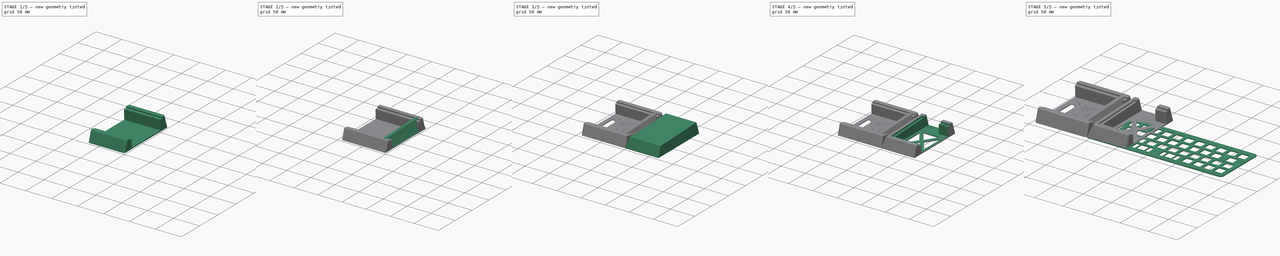
[diagram: build sequence overview — one tinted view per stage of 5, left to right]
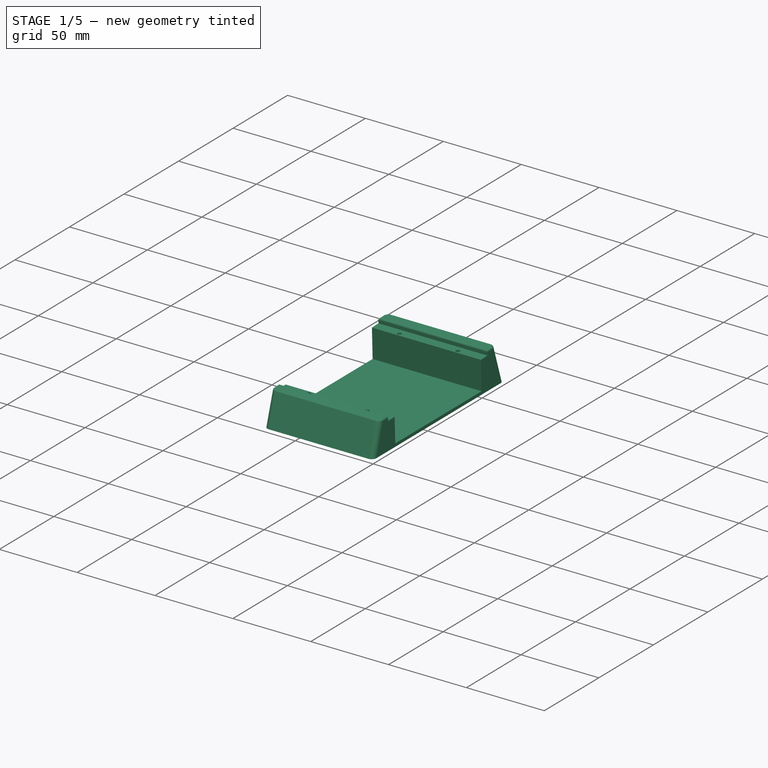
[diagram: stage 1 of 5 — iso view after this stage's code; geometry added in this stage tinted green]
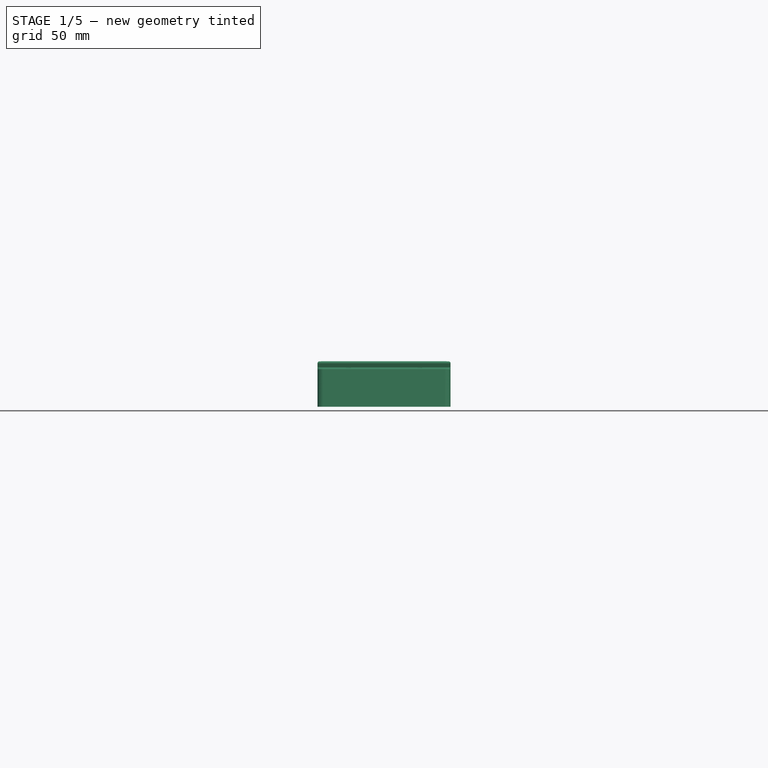
[diagram: stage 1 of 5 — front view after this stage's code; geometry added in this stage tinted green]
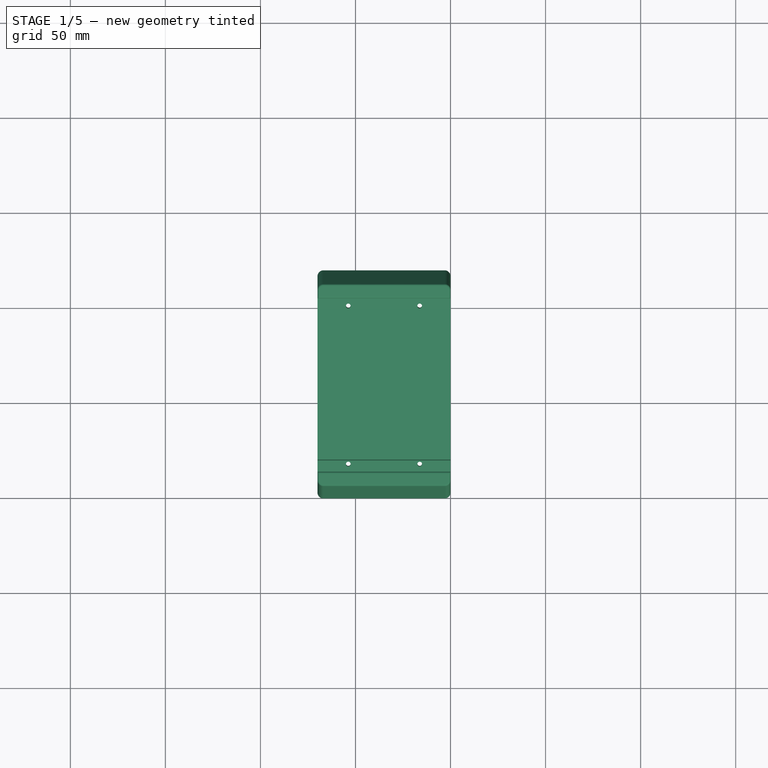
[diagram: stage 1 of 5 — top view after this stage's code; geometry added in this stage tinted green]
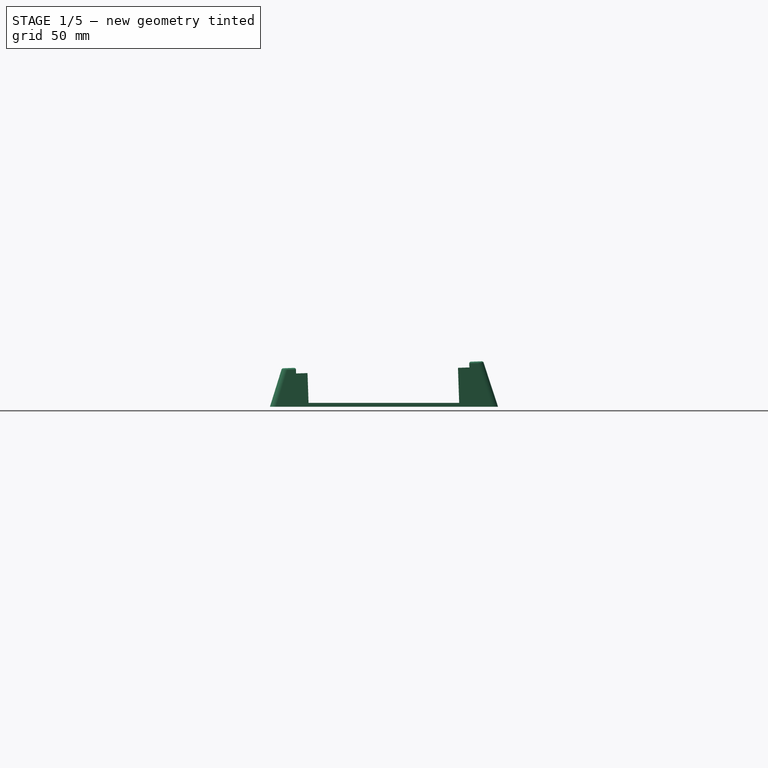
[diagram: stage 1 of 5 — right view after this stage's code; geometry added in this stage tinted green]
FCSTD DOCUMENT  (FreeCAD 0.20R)
Label: bm43a
License: All rights reserved
LicenseURL: http://en.wikipedia.org/wiki/All_rights_reserved
objects: Sketcher::SketchObject×20, PartDesign::Pocket×10, PartDesign::Fillet×9, PartDesign::Body×4, Raytracing::RayFeature×4, PartDesign::AdditiveLoft×3, PartDesign::Hole×3, PartDesign::Chamfer×2, PartDesign::Pad×1, Raytracing::RayProject×1
note: 80 computed .brp shape members not serialized (recipe doc carries the construction recipe); baked Part::Feature solids carry a one-line shape summary decoded from their .brp

FEATURE [PartDesign::Body] Body001  label="Left"
  Group = -> [Sketch001,Sketch002,AdditiveLoft,Sketch003,Pocket,Sketch004,Pocket001,Sketch005,Hole,Sketch006,Pocket002,Sketch007,Pocket003,Fillet001,Fillet003,Fillet005,Fillet006]
  Origin = -> Origin001
  Tip = -> Fillet006
FEATURE [Sketcher::SketchObject] Sketch014
  FullyConstrained = true
  MapMode = 5
  Support = -> [XY_Plane003]
  sketch-geometry (4):
    g0: LineSegment StartX=0 StartY=0 StartZ=0 EndX=-70 EndY=0 EndZ=0
    g1: LineSegment StartX=-70 StartY=0 StartZ=0 EndX=-70 EndY=120 EndZ=0
    g2: LineSegment StartX=-70 StartY=120 StartZ=0 EndX=0 EndY=120 EndZ=0
    g3: LineSegment StartX=0 StartY=120 StartZ=0 EndX=0 EndY=0 EndZ=0
  constraints (11):
    c: Coincident(g0,g1)
    c: Coincident(g1,g2)
    c: Coincident(g2,g3)
    c: Coincident(g3,g0)
    c: Horizontal(g0)
    c: Horizontal(g2)
    c: Vertical(g1)
    c: Vertical(g3)
    c: Coincident(g0,g-1)
    c: DistanceY(g1,g1) = 120
    c: DistanceX(g2,g2) = 70
FEATURE [Sketcher::SketchObject] Sketch015
  ExternalGeometry = -> [Sketch014]
  FullyConstrained = true
  MapMode = 5
  Placement = pos=(0,0,20) rot=(1,0,0;0.034907rad)
  sketch-geometry (4):
    g0: LineSegment StartX=-70 StartY=112.229 StartZ=0 EndX=0 EndY=112.229 EndZ=0
    g1: LineSegment StartX=0 StartY=112.229 StartZ=0 EndX=0 EndY=6.30201 EndZ=0
    g2: LineSegment StartX=0 StartY=6.30201 StartZ=0 EndX=-70 EndY=6.30201 EndZ=0
    g3: LineSegment StartX=-70 StartY=6.30201 StartZ=0 EndX=-70 EndY=112.229 EndZ=0
  constraints (12):
    c: Coincident(g0,g1)
    c: Coincident(g1,g2)
    c: Coincident(g2,g3)
    c: Coincident(g3,g0)
    c: Horizontal(g0)
    c: Horizontal(g2)
    c: Vertical(g1)
    c: Vertical(g3)
    c: PointOnObject(g0,g-4)
    c: PointOnObject(g1,g-2)
    c: DistanceY(g0,g-4) = 7
    c: DistanceY(g-4,g2) = 7
FEATURE [PartDesign::AdditiveLoft] AdditiveLoft002
  Closed = true
  Profile = -> Sketch014
  Ruled = true
  Sections = -> [Sketch015]
FEATURE [PartDesign::Body] Body002  label="Right"
  Group = -> [Sketch008,Sketch009,AdditiveLoft001,Sketch010,Pocket004,Sketch011,Pocket005,Sketch012,Hole001,Sketch013,Pocket006,Fillet,Fillet007,Fillet008]
  Origin = -> Origin002
  Placement = pos=(261.552,0,0) rot=(0,0,1;0rad)
  Tip = -> Fillet008
FEATURE [PartDesign::Pocket] Pocket007
  BaseFeature = -> AdditiveLoft002
  Direction = (0,0.0348995,-0.999391)
  Length = 3
  Length2 = 5
  Profile = -> Sketch016
  ReferenceAxis = -> Sketch016 [N_Axis]
  Type = 0
FEATURE [Sketcher::SketchObject] Sketch017
  ExternalGeometry = -> [Pocket007]
  FullyConstrained = true
  MapMode = 5
  Placement = pos=(0,-0.592866,16.9775) rot=(1,0,0;0.034907rad)
  Support = -> [Pocket007]
  sketch-geometry (4):
    g0: LineSegment StartX=-70 StartY=99.5634 StartZ=0 EndX=0 EndY=99.5634 EndZ=0
    g1: LineSegment StartX=0 StartY=99.5634 StartZ=0 EndX=0 EndY=20.3634 EndZ=0
    g2: LineSegment StartX=0 StartY=20.3634 StartZ=0 EndX=-70 EndY=20.3634 EndZ=0
    g3: LineSegment StartX=-70 StartY=20.3634 StartZ=0 EndX=-70 EndY=99.5634 EndZ=0
  constraints (12):
    c: Coincident(g0,g1)
    c: Coincident(g1,g2)
    c: Coincident(g2,g3)
    c: Coincident(g3,g0)
    c: Horizontal(g0)
    c: Horizontal(g2)
    c: Vertical(g1)
    c: Vertical(g3)
    c: PointOnObject(g0,g-5)
    c: PointOnObject(g1,g-6)
    c: DistanceY(g0,g-5) = 6
    c: DistanceY(g-5,g2) = 6
FEATURE [PartDesign::Pocket] Pocket008
  BaseFeature = -> Pocket007
  Direction = (0,0.0348995,-0.999391)
  Length = 0
  Length2 = 5
  Offset = -2
  Profile = -> Sketch017
  ReferenceAxis = -> Sketch017 [N_Axis]
  Type = 3
  UpToFace = -> Pocket007 [Face1]
FEATURE [Sketcher::SketchObject] Sketch018
  ExternalGeometry = -> [Pocket008]
  FullyConstrained = true
  MapMode = 5
  Placement = pos=(0,-0.592866,16.9775) rot=(1,0,0;0.034907rad)
  Support = -> [Pocket008]
  sketch-geometry (6):
    g0: Circle CenterX=-53.775 CenterY=101.563 CenterZ=0 NormalX=0 NormalY=0 NormalZ=1 AngleXU=0 Radius=1.5
    g1: Circle CenterX=-16.225 CenterY=101.563 CenterZ=0 NormalX=0 NormalY=0 NormalZ=1 AngleXU=0 Radius=1.5
    g2: Circle CenterX=-53.775 CenterY=18.3634 CenterZ=0 NormalX=0 NormalY=0 NormalZ=1 AngleXU=0 Radius=1.5
    g3: Circle CenterX=-16.225 CenterY=18.3634 CenterZ=0 NormalX=0 NormalY=0 NormalZ=1 AngleXU=0 Radius=1.5
    g4: LineSegment StartX=-16.225 StartY=18.3634 StartZ=0 EndX=0 EndY=20.3634 EndZ=0
    g5: LineSegment StartX=-53.775 StartY=18.3634 StartZ=0 EndX=-70 EndY=20.3634 EndZ=0
  constraints (16):
    c: Vertical(g1,g3)
    c: Vertical(g0,g2)
    c: Horizontal(g2,g3)
    c: Horizontal(g0,g1)
    c: Equal(g1,g0)
    c: Equal(g3,g2)
    c: Equal(g3,g1)
    c: Diameter(g0) = 3
    c: DistanceX(g2,g3) = 37.55
    c: DistanceY(g-4,g3) = 4
    c: DistanceY(g1,g-3) = 4
    c: Coincident(g4,g3)
    c: Coincident(g4,g-6)
    c: Coincident(g5,g2)
    c: Coincident(g5,g-5)
    c: Equal(g4,g5)
FEATURE [PartDesign::Hole] Hole002
  BaseFeature = -> Pocket008
  CustomThreadClearance = 0
  Depth = 25
  DepthType = 0
  Diameter = 2.5
  DrillForDepth = false
  DrillPoint = 1
  DrillPointAngle = 118
  HoleCutCountersinkAngle = 90
  HoleCutCustomValues = false
  HoleCutDepth = 0
  HoleCutDiameter = 6.1
  HoleCutType = 0
  ModelThread = false
  Profile = -> Sketch018
  Tapered = false
  TaperedAngle = 90
  ThreadClass = 0
  ThreadDepth = 25
  ThreadDepthType = 0
  ThreadDirection = 0
  ThreadFit = 0
  ThreadSize = 9
  ThreadType = 1
  Threaded = true
  UseCustomThreadClearance = false
FEATURE [PartDesign::Fillet] Fillet009
  Base = -> Hole002 [Edge9,Edge11,Edge12,Edge31]
  BaseFeature = -> Hole002
  Radius = 3
  SupportTransform = false
  UseAllEdges = false
FEATURE [PartDesign::Fillet] Fillet010
  Base = -> Fillet009 [Face15,Face14]
  BaseFeature = -> Fillet009
  Radius = 1
  SupportTransform = false
  UseAllEdges = false
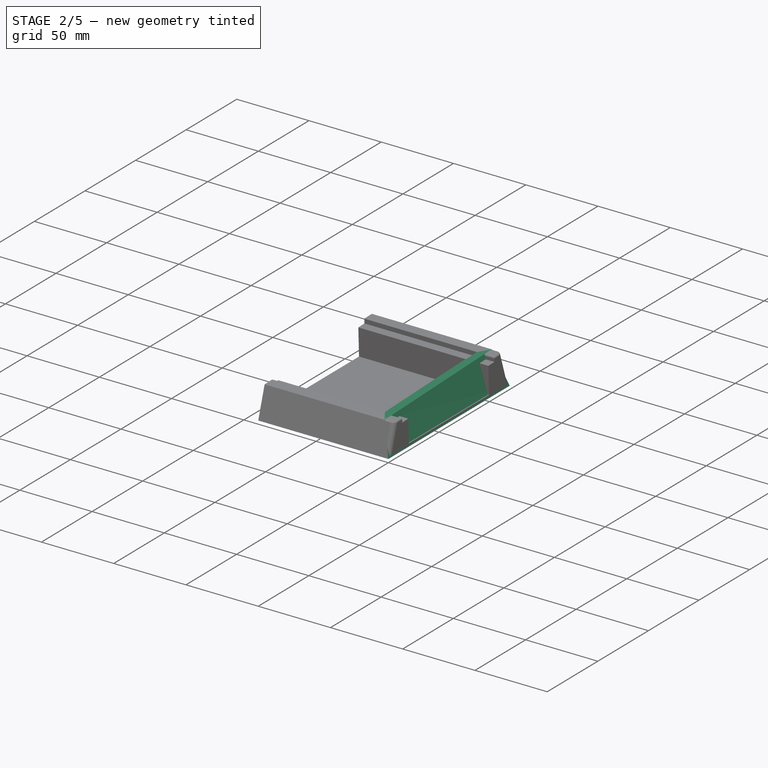
[diagram: stage 2 of 5 — iso view after this stage's code; geometry added in this stage tinted green]
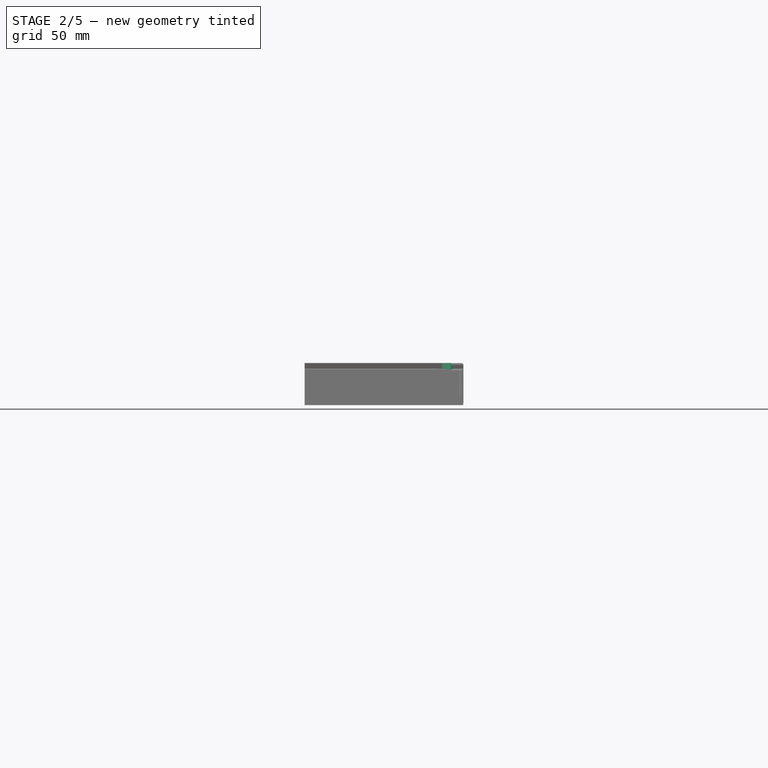
[diagram: stage 2 of 5 — front view after this stage's code; geometry added in this stage tinted green]
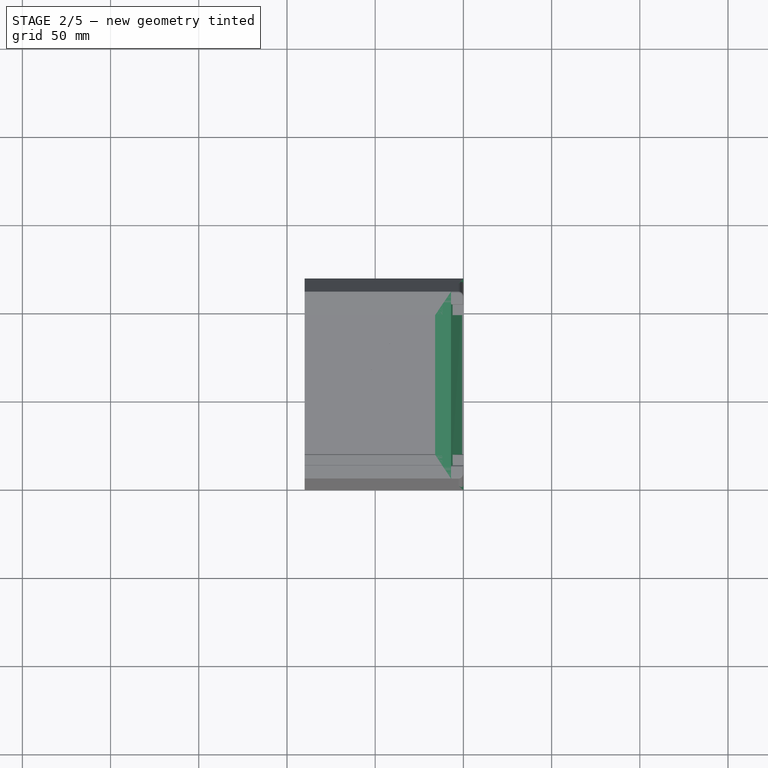
[diagram: stage 2 of 5 — top view after this stage's code; geometry added in this stage tinted green]
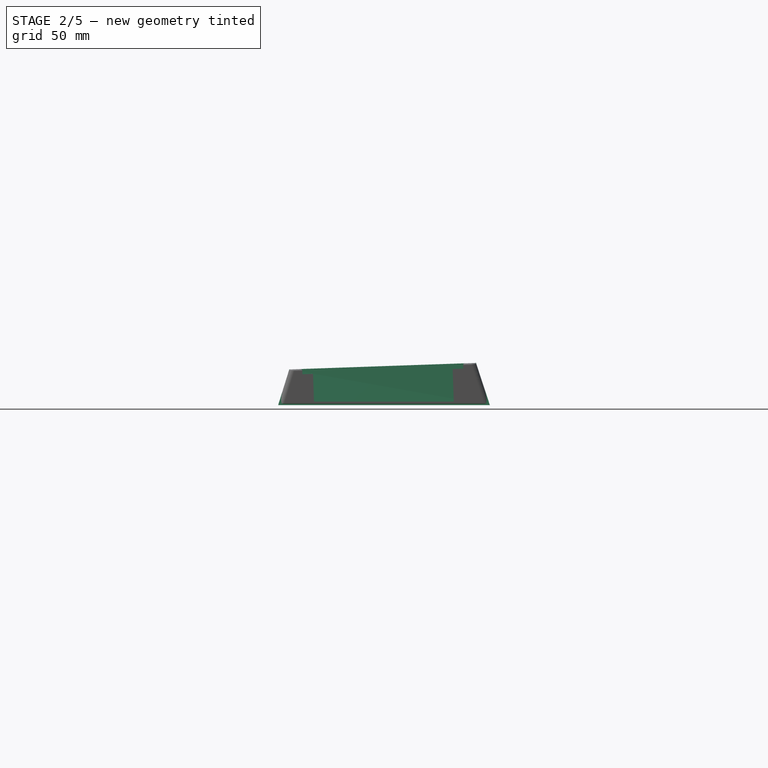
[diagram: stage 2 of 5 — right view after this stage's code; geometry added in this stage tinted green]
FEATURE [Sketcher::SketchObject] Sketch008
  FullyConstrained = true
  MapMode = 5
  Support = -> [XY_Plane002]
  sketch-geometry (4):
    g0: LineSegment StartX=0 StartY=0 StartZ=0 EndX=-90 EndY=0 EndZ=0
    g1: LineSegment StartX=-90 StartY=0 StartZ=0 EndX=-90 EndY=120 EndZ=0
    g2: LineSegment StartX=-90 StartY=120 StartZ=0 EndX=0 EndY=120 EndZ=0
    g3: LineSegment StartX=0 StartY=120 StartZ=0 EndX=0 EndY=0 EndZ=0
  constraints (11):
    c: Coincident(g0,g1)
    c: Coincident(g1,g2)
    c: Coincident(g2,g3)
    c: Coincident(g3,g0)
    c: Horizontal(g0)
    c: Horizontal(g2)
    c: Vertical(g1)
    c: Vertical(g3)
    c: Coincident(g0,g-1)
    c: DistanceX(g2,g2) = 90
    c: DistanceY(g3,g3) = 120
FEATURE [Sketcher::SketchObject] Sketch009
  ExternalGeometry = -> [Sketch008]
  FullyConstrained = true
  MapMode = 5
  Placement = pos=(0,0,20) rot=(1,0,0;0.034907rad)
  sketch-geometry (4):
    g0: LineSegment StartX=-90 StartY=112.229 StartZ=0 EndX=-7 EndY=112.229 EndZ=0
    g1: LineSegment StartX=-7 StartY=112.229 StartZ=0 EndX=-7 EndY=6.30201 EndZ=0
    g2: LineSegment StartX=-7 StartY=6.30201 StartZ=0 EndX=-90 EndY=6.30201 EndZ=0
    g3: LineSegment StartX=-90 StartY=6.30201 StartZ=0 EndX=-90 EndY=112.229 EndZ=0
  constraints (12):
    c: Coincident(g0,g1)
    c: Coincident(g1,g2)
    c: Coincident(g2,g3)
    c: Coincident(g3,g0)
    c: Horizontal(g0)
    c: Horizontal(g2)
    c: Vertical(g1)
    c: Vertical(g3)
    c: DistanceY(g-4,g1) = 7
    c: PointOnObject(g0,g-3)
    c: DistanceX(g0,g-5) = 7
    c: DistanceY(g0,g-5) = 7
FEATURE [PartDesign::AdditiveLoft] AdditiveLoft001
  Closed = false
  Profile = -> Sketch008
  Ruled = false
  Sections = -> [Sketch009]
FEATURE [Sketcher::SketchObject] Sketch010
  ExternalGeometry = -> [AdditiveLoft001]
  FullyConstrained = true
  MapMode = 5
  Placement = pos=(0,-0.697565,19.9756) rot=(1,0,0;0.034907rad)
  Support = -> [AdditiveLoft001]
  sketch-geometry (6):
    g0: LineSegment StartX=-90 StartY=105.563 StartZ=0 EndX=-12 EndY=105.563 EndZ=0
    g1: LineSegment StartX=-12 StartY=105.563 StartZ=0 EndX=-12 EndY=14.3634 EndZ=0
    g2: LineSegment StartX=-12 StartY=14.3634 StartZ=0 EndX=-90 EndY=14.3634 EndZ=0
    g3: LineSegment StartX=-90 StartY=14.3634 StartZ=0 EndX=-90 EndY=105.563 EndZ=0
    g4: LineSegment StartX=-12 StartY=105.563 StartZ=0 EndX=-12 EndY=112.927 EndZ=0
    g5: LineSegment StartX=-12 StartY=14.3634 StartZ=0 EndX=-12 EndY=7 EndZ=0
  constraints (18):
    c: Coincident(g0,g1)
    c: Coincident(g1,g2)
    c: Coincident(g2,g3)
    c: Coincident(g3,g0)
    c: Horizontal(g0)
    c: Horizontal(g2)
    c: Vertical(g1)
    c: Vertical(g3)
    c: PointOnObject(g0,g-4)
    c: Coincident(g4,g0)
    c: PointOnObject(g4,g-5)
    c: Vertical(g4)
    c: Coincident(g5,g1)
    c: PointOnObject(g5,g-6)
    c: Vertical(g5)
    c: Equal(g4,g5)
    c: Distance(g1) = 91.2
    c: DistanceX(g1,g-6) = 5
FEATURE [PartDesign::Pocket] Pocket004
  BaseFeature = -> AdditiveLoft001
  Direction = (0,0.0348995,-0.999391)
  Length = 3
  Length2 = 5
  Profile = -> Sketch010
  ReferenceAxis = -> Sketch010 [N_Axis]
  Type = 0
FEATURE [Sketcher::SketchObject] Sketch011
  ExternalGeometry = -> [Pocket004]
  FullyConstrained = true
  MapMode = 5
  Placement = pos=(0,-0.592866,16.9775) rot=(1,0,0;0.034907rad)
  Support = -> [Pocket004]
  sketch-geometry (4):
    g0: LineSegment StartX=-90 StartY=99.5634 StartZ=0 EndX=-16 EndY=99.5634 EndZ=0
    g1: LineSegment StartX=-16 StartY=99.5634 StartZ=0 EndX=-16 EndY=20.3634 EndZ=0
    g2: LineSegment StartX=-16 StartY=20.3634 StartZ=0 EndX=-90 EndY=20.3634 EndZ=0
    g3: LineSegment StartX=-90 StartY=20.3634 StartZ=0 EndX=-90 EndY=99.5634 EndZ=0
  constraints (12):
    c: Coincident(g0,g1)
    c: Coincident(g1,g2)
    c: Coincident(g2,g3)
    c: Coincident(g3,g0)
    c: Horizontal(g0)
    c: Horizontal(g2)
    c: Vertical(g1)
    c: Vertical(g3)
    c: PointOnObject(g0,g-6)
    c: DistanceX(g0,g-5) = 4
    c: DistanceY(g0,g-5) = 6
    c: DistanceY(g-5,g1) = 6
FEATURE [PartDesign::Pocket] Pocket005
  BaseFeature = -> Pocket004
  Direction = (0,0.0348995,-0.999391)
  Length = 0
  Length2 = 5
  Offset = -2
  Profile = -> Sketch011
  ReferenceAxis = -> Sketch011 [N_Axis]
  Type = 3
  UpToFace = -> Pocket004 [Face1]
FEATURE [Sketcher::SketchObject] Sketch019
  ExternalGeometry = -> [Fillet010]
  FullyConstrained = true
  MapMode = 5
  Placement = pos=(0,0,1.99878) rot=(0,0,1;0rad)
  Support = -> [Fillet010]
  sketch-geometry (203):
    g0: Circle CenterX=-57.86 CenterY=82.7902 CenterZ=0 NormalX=0 NormalY=0 NormalZ=1 AngleXU=0 Radius=1
    g1: Circle CenterX=-52.78 CenterY=82.7902 CenterZ=0 NormalX=0 NormalY=0 NormalZ=1 AngleXU=0 Radius=1
    g2: LineSegment StartX=-57.86 StartY=82.7902 StartZ=0 EndX=-52.78 EndY=82.7902 EndZ=0
    g3: Circle CenterX=-47.7 CenterY=82.7902 CenterZ=0 NormalX=0 NormalY=0 NormalZ=1 AngleXU=0 Radius=1
    g4: LineSegment StartX=-52.78 StartY=82.7902 StartZ=0 EndX=-47.7 EndY=82.7902 EndZ=0
    g5: Circle CenterX=-42.62 CenterY=82.7902 CenterZ=0 NormalX=0 NormalY=0 NormalZ=1 AngleXU=0 Radius=1
    g6: LineSegment StartX=-47.7 StartY=82.7902 StartZ=0 EndX=-42.62 EndY=82.7902 EndZ=0
    g7: Circle CenterX=-37.54 CenterY=82.7902 CenterZ=0 NormalX=0 NormalY=0 NormalZ=1 AngleXU=0 Radius=1
    g8: LineSegment StartX=-42.62 StartY=82.7902 StartZ=0 EndX=-37.54 EndY=82.7902 EndZ=0
    g9: Circle CenterX=-32.46 CenterY=82.7902 CenterZ=0 NormalX=0 NormalY=0 NormalZ=1 AngleXU=0 Radius=1
    g10: LineSegment StartX=-37.54 StartY=82.7902 StartZ=0 EndX=-32.46 EndY=82.7902 EndZ=0
    g11: Circle CenterX=-27.38 CenterY=82.7902 CenterZ=0 NormalX=0 NormalY=0 NormalZ=1 AngleXU=0 Radius=1
    g12: LineSegment StartX=-32.46 StartY=82.7902 StartZ=0 EndX=-27.38 EndY=82.7902 EndZ=0
    g13: Circle CenterX=-22.3 CenterY=82.7902 CenterZ=0 NormalX=0 NormalY=0 NormalZ=1 AngleXU=0 Radius=1
    g14: LineSegment StartX=-27.38 StartY=82.7902 StartZ=0 EndX=-22.3 EndY=82.7902 EndZ=0
    g15: Circle CenterX=-17.22 CenterY=82.7902 CenterZ=0 NormalX=0 NormalY=0 NormalZ=1 AngleXU=0 Radius=1
    g16: LineSegment StartX=-22.3 StartY=82.7902 StartZ=0 EndX=-17.22 EndY=82.7902 EndZ=0
    g17: Circle CenterX=-12.14 CenterY=82.7902 CenterZ=0 NormalX=0 NormalY=0 NormalZ=1 AngleXU=0 Radius=1
    g18: LineSegment StartX=-17.22 StartY=82.7902 StartZ=0 EndX=-12.14 EndY=82.7902 EndZ=0
    g19: Circle CenterX=-57.86 CenterY=77.7102 CenterZ=0 NormalX=0 NormalY=0 NormalZ=1 AngleXU=0 Radius=1
    g20: LineSegment StartX=-57.86 StartY=82.7902 StartZ=0 EndX=-57.86 EndY=77.7102 EndZ=0
    g21: Circle CenterX=-52.78 CenterY=77.7102 CenterZ=0 NormalX=0 NormalY=0 NormalZ=1 AngleXU=0 Radius=1
    g22: LineSegment StartX=-57.86 StartY=77.7102 StartZ=0 EndX=-52.78 EndY=77.7102 EndZ=0
    g23: Circle CenterX=-47.7 CenterY=77.7102 CenterZ=0 NormalX=0 NormalY=0 NormalZ=1 AngleXU=0 Radius=1
    g24: LineSegment StartX=-52.78 StartY=77.7102 StartZ=0 EndX=-47.7 EndY=77.7102 EndZ=0
    g25: Circle CenterX=-42.62 CenterY=77.7102 CenterZ=0 NormalX=0 NormalY=0 NormalZ=1 AngleXU=0 Radius=1
    g26: LineSegment StartX=-47.7 StartY=77.7102 StartZ=0 EndX=-42.62 EndY=77.7102 EndZ=0
    g27: Circle CenterX=-37.54 CenterY=77.7102 CenterZ=0 NormalX=0 NormalY=0 NormalZ=1 AngleXU=0 Radius=1
    g28: LineSegment StartX=-42.62 StartY=77.7102 StartZ=0 EndX=-37.54 EndY=77.7102 EndZ=0
    g29: Circle CenterX=-32.46 CenterY=77.7102 CenterZ=0 NormalX=0 NormalY=0 NormalZ=1 AngleXU=0 Radius=1
    g30: LineSegment StartX=-37.54 StartY=77.7102 StartZ=0 EndX=-32.46 EndY=77.7102 EndZ=0
    g31: Circle CenterX=-27.38 CenterY=77.7102 CenterZ=0 NormalX=0 NormalY=0 NormalZ=1 AngleXU=0 Radius=1
    g32: LineSegment StartX=-32.46 StartY=77.7102 StartZ=0 EndX=-27.38 EndY=77.7102 EndZ=0
    g33: Circle CenterX=-22.3 CenterY=77.7102 CenterZ=0 NormalX=0 NormalY=0 NormalZ=1 AngleXU=0 Radius=1
    g34: LineSegment StartX=-27.38 StartY=77.7102 StartZ=0 EndX=-22.3 EndY=77.7102 EndZ=0
    g35: Circle CenterX=-17.22 CenterY=77.7102 CenterZ=0 NormalX=0 NormalY=0 NormalZ=1 AngleXU=0 Radius=1
    g36: LineSegment StartX=-22.3 StartY=77.7102 StartZ=0 EndX=-17.22 EndY=77.7102 EndZ=0
    g37: Circle CenterX=-12.14 CenterY=77.7102 CenterZ=0 NormalX=0 NormalY=0 NormalZ=1 AngleXU=0 Radius=1
    g38: LineSegment StartX=-17.22 StartY=77.7102 StartZ=0 EndX=-12.14 EndY=77.7102 EndZ=0
    g39: Circle CenterX=-57.86 CenterY=72.6302 CenterZ=0 NormalX=0 NormalY=0 NormalZ=1 AngleXU=0 Radius=1
    g40: LineSegment StartX=-57.86 StartY=77.7102 StartZ=0 EndX=-57.86 EndY=72.6302 EndZ=0
    g41: Circle CenterX=-52.78 CenterY=72.6302 CenterZ=0 NormalX=0 NormalY=0 NormalZ=1 AngleXU=0 Radius=1
    g42: LineSegment StartX=-57.86 StartY=72.6302 StartZ=0 EndX=-52.78 EndY=72.6302 EndZ=0
    g43: Circle CenterX=-47.7 CenterY=72.6302 CenterZ=0 NormalX=0 NormalY=0 NormalZ=1 AngleXU=0 Radius=1
    g44: LineSegment StartX=-52.78 StartY=72.6302 StartZ=0 EndX=-47.7 EndY=72.6302 EndZ=0
    g45: Circle CenterX=-42.62 CenterY=72.6302 CenterZ=0 NormalX=0 NormalY=0 NormalZ=1 AngleXU=0 Radius=1
    g46: LineSegment StartX=-47.7 StartY=72.6302 StartZ=0 EndX=-42.62 EndY=72.6302 EndZ=0
    g47: Circle CenterX=-37.54 CenterY=72.6302 CenterZ=0 NormalX=0 NormalY=0 NormalZ=1 AngleXU=0 Radius=1
    g48: LineSegment StartX=-42.62 StartY=72.6302 StartZ=0 EndX=-37.54 EndY=72.6302 EndZ=0
    g49: Circle CenterX=-32.46 CenterY=72.6302 CenterZ=0 NormalX=0 NormalY=0 NormalZ=1 AngleXU=0 Radius=1
    g50: LineSegment StartX=-37.54 StartY=72.6302 StartZ=0 EndX=-32.46 EndY=72.6302 EndZ=0
    g51: Circle CenterX=-27.38 CenterY=72.6302 CenterZ=0 NormalX=0 NormalY=0 NormalZ=1 AngleXU=0 Radius=1
    g52: LineSegment StartX=-32.46 StartY=72.6302 StartZ=0 EndX=-27.38 EndY=72.6302 EndZ=0
    g53: Circle CenterX=-22.3 CenterY=72.6302 CenterZ=0 NormalX=0 NormalY=0 NormalZ=1 AngleXU=0 Radius=1
    g54: LineSegment StartX=-27.38 StartY=72.6302 StartZ=0 EndX=-22.3 EndY=72.6302 EndZ=0
    g55: Circle CenterX=-17.22 CenterY=72.6302 CenterZ=0 NormalX=0 NormalY=0 NormalZ=1 AngleXU=0 Radius=1
    g56: LineSegment StartX=-22.3 StartY=72.6302 StartZ=0 EndX=-17.22 EndY=72.6302 EndZ=0
    g57: Circle CenterX=-12.14 CenterY=72.6302 CenterZ=0 NormalX=0 NormalY=0 NormalZ=1 AngleXU=0 Radius=1
    g58: LineSegment StartX=-17.22 StartY=72.6302 StartZ=0 EndX=-12.14 EndY=72.6302 EndZ=0
    g59: Circle CenterX=-57.86 CenterY=67.5502 CenterZ=0 NormalX=0 NormalY=0 NormalZ=1 AngleXU=0 Radius=1
    g60: LineSegment StartX=-57.86 StartY=72.6302 StartZ=0 EndX=-57.86 EndY=67.5502 EndZ=0
    g61: Circle CenterX=-52.78 CenterY=67.5502 CenterZ=0 NormalX=0 NormalY=0 NormalZ=1 AngleXU=0 Radius=1
    g62: LineSegment StartX=-57.86 StartY=67.5502 StartZ=0 EndX=-52.78 EndY=67.5502 EndZ=0
    g63: Circle CenterX=-47.7 CenterY=67.5502 CenterZ=0 NormalX=0 NormalY=0 NormalZ=1 AngleXU=0 Radius=1
    g64: LineSegment StartX=-52.78 StartY=67.5502 StartZ=0 EndX=-47.7 EndY=67.5502 EndZ=0
    g65: Circle CenterX=-42.62 CenterY=67.5502 CenterZ=0 NormalX=0 NormalY=0 NormalZ=1 AngleXU=0 Radius=1
    g66: LineSegment StartX=-47.7 StartY=67.5502 StartZ=0 EndX=-42.62 EndY=67.5502 EndZ=0
    g67: Circle CenterX=-37.54 CenterY=67.5502 CenterZ=0 NormalX=0 NormalY=0 NormalZ=1 AngleXU=0 Radius=1
    g68: LineSegment StartX=-42.62 StartY=67.5502 StartZ=0 EndX=-37.54 EndY=67.5502 EndZ=0
    g69: Circle CenterX=-32.46 CenterY=67.5502 CenterZ=0 NormalX=0 NormalY=0 NormalZ=1 AngleXU=0 Radius=1
    g70: LineSegment StartX=-37.54 StartY=67.5502 StartZ=0 EndX=-32.46 EndY=67.5502 EndZ=0
    g71: Circle CenterX=-27.38 CenterY=67.5502 CenterZ=0 NormalX=0 NormalY=0 NormalZ=1 AngleXU=0 Radius=1
    g72: LineSegment StartX=-32.46 StartY=67.5502 StartZ=0 EndX=-27.38 EndY=67.5502 EndZ=0
    g73: Circle CenterX=-22.3 CenterY=67.5502 CenterZ=0 NormalX=0 NormalY=0 NormalZ=1 AngleXU=0 Radius=1
    g74: LineSegment StartX=-27.38 StartY=67.5502 StartZ=0 EndX=-22.3 EndY=67.5502 EndZ=0
    g75: Circle CenterX=-17.22 CenterY=67.5502 CenterZ=0 NormalX=0 NormalY=0 NormalZ=1 AngleXU=0 Radius=1
    g76: LineSegment StartX=-22.3 StartY=67.5502 StartZ=0 EndX=-17.22 EndY=67.5502 EndZ=0
    g77: Circle CenterX=-12.14 CenterY=67.5502 CenterZ=0 NormalX=0 NormalY=0 NormalZ=1 AngleXU=0 Radius=1
    g78: LineSegment StartX=-17.22 StartY=67.5502 StartZ=0 EndX=-12.14 EndY=67.5502 EndZ=0
    g79: Circle CenterX=-57.86 CenterY=62.4702 CenterZ=0 NormalX=0 NormalY=0 NormalZ=1 AngleXU=0 Radius=1
    g80: LineSegment StartX=-57.86 StartY=67.5502 StartZ=0 EndX=-57.86 EndY=62.4702 EndZ=0
    g81: Circle CenterX=-52.78 CenterY=62.4702 CenterZ=0 NormalX=0 NormalY=0 NormalZ=1 AngleXU=0 Radius=1
    g82: LineSegment StartX=-57.86 StartY=62.4702 StartZ=0 EndX=-52.78 EndY=62.4702 EndZ=0
    g83: Circle CenterX=-47.7 CenterY=62.4702 CenterZ=0 NormalX=0 NormalY=0 NormalZ=1 AngleXU=0 Radius=1
    g84: LineSegment StartX=-52.78 StartY=62.4702 StartZ=0 EndX=-47.7 EndY=62.4702 EndZ=0
    g85: Circle CenterX=-42.62 CenterY=62.4702 CenterZ=0 NormalX=0 NormalY=0 NormalZ=1 AngleXU=0 Radius=1
    g86: LineSegment StartX=-47.7 StartY=62.4702 StartZ=0 EndX=-42.62 EndY=62.4702 EndZ=0
    g87: Circle CenterX=-37.54 CenterY=62.4702 CenterZ=0 NormalX=0 NormalY=0 NormalZ=1 AngleXU=0 Radius=1
    g88: LineSegment StartX=-42.62 StartY=62.4702 StartZ=0 EndX=-37.54 EndY=62.4702 EndZ=0
    g89: Circle CenterX=-32.46 CenterY=62.4702 CenterZ=0 NormalX=0 NormalY=0 NormalZ=1 AngleXU=0 Radius=1
    g90: LineSegment StartX=-37.54 StartY=62.4702 StartZ=0 EndX=-32.46 EndY=62.4702 EndZ=0
    g91: Circle CenterX=-27.38 CenterY=62.4702 CenterZ=0 NormalX=0 NormalY=0 NormalZ=1 AngleXU=0 Radius=1
    g92: LineSegment StartX=-32.46 StartY=62.4702 StartZ=0 EndX=-27.38 EndY=62.4702 EndZ=0
    g93: Circle CenterX=-22.3 CenterY=62.4702 CenterZ=0 NormalX=0 NormalY=0 NormalZ=1 AngleXU=0 Radius=1
    g94: LineSegment StartX=-27.38 StartY=62.4702 StartZ=0 EndX=-22.3 EndY=62.4702 EndZ=0
    g95: Circle CenterX=-17.22 CenterY=62.4702 CenterZ=0 NormalX=0 NormalY=0 NormalZ=1 AngleXU=0 Radius=1
    g96: LineSegment StartX=-22.3 StartY=62.4702 StartZ=0 EndX=-17.22 EndY=62.4702 EndZ=0
    g97: Circle CenterX=-12.14 CenterY=62.4702 CenterZ=0 NormalX=0 NormalY=0 NormalZ=1 AngleXU=0 Radius=1
    g98: LineSegment StartX=-17.22 StartY=62.4702 StartZ=0 EndX=-12.14 EndY=62.4702 EndZ=0
    g99: Circle CenterX=-57.86 CenterY=57.3902 CenterZ=0 NormalX=0 NormalY=0 NormalZ=1 AngleXU=0 Radius=1
    g100: LineSegment StartX=-57.86 StartY=62.4702 StartZ=0 EndX=-57.86 EndY=57.3902 EndZ=0
    g101: Circle CenterX=-52.78 CenterY=57.3902 CenterZ=0 NormalX=0 NormalY=0 NormalZ=1 AngleXU=0 Radius=1
    g102: LineSegment StartX=-57.86 StartY=57.3902 StartZ=0 EndX=-52.78 EndY=57.3902 EndZ=0
    g103: Circle CenterX=-47.7 CenterY=57.3902 CenterZ=0 NormalX=0 NormalY=0 NormalZ=1 AngleXU=0 Radius=1
    g104: LineSegment StartX=-52.78 StartY=57.3902 StartZ=0 EndX=-47.7 EndY=57.3902 EndZ=0
    g105: Circle CenterX=-42.62 CenterY=57.3902 CenterZ=0 NormalX=0 NormalY=0 NormalZ=1 AngleXU=0 Radius=1
    g106: LineSegment StartX=-47.7 StartY=57.3902 StartZ=0 EndX=-42.62 EndY=57.3902 EndZ=0
    g107: Circle CenterX=-37.54 CenterY=57.3902 CenterZ=0 NormalX=0 NormalY=0 NormalZ=1 AngleXU=0 Radius=1
    g108: LineSegment StartX=-42.62 StartY=57.3902 StartZ=0 EndX=-37.54 EndY=57.3902 EndZ=0
    g109: Circle CenterX=-32.46 CenterY=57.3902 CenterZ=0 NormalX=0 NormalY=0 NormalZ=1 AngleXU=0 Radius=1
    g110: LineSegment StartX=-37.54 StartY=57.3902 StartZ=0 EndX=-32.46 EndY=57.3902 EndZ=0
    g111: Circle CenterX=-27.38 CenterY=57.3902 CenterZ=0 NormalX=0 NormalY=0 NormalZ=1 AngleXU=0 Radius=1
    g112: LineSegment StartX=-32.46 StartY=57.3902 StartZ=0 EndX=-27.38 EndY=57.3902 EndZ=0
    g113: Circle CenterX=-22.3 CenterY=57.3902 CenterZ=0 NormalX=0 NormalY=0 NormalZ=1 AngleXU=0 Radius=1
    g114: LineSegment StartX=-27.38 StartY=57.3902 StartZ=0 EndX=-22.3 EndY=57.3902 EndZ=0
    g115: Circle CenterX=-17.22 CenterY=57.3902 CenterZ=0 NormalX=0 NormalY=0 NormalZ=1 AngleXU=0 Radius=1
    g116: LineSegment StartX=-22.3 StartY=57.3902 StartZ=0 EndX=-17.22 EndY=57.3902 EndZ=0
    g117: Circle CenterX=-12.14 CenterY=57.3902 CenterZ=0 NormalX=0 NormalY=0 NormalZ=1 AngleXU=0 Radius=1
    g118: LineSegment StartX=-17.22 StartY=57.3902 StartZ=0 EndX=-12.14 EndY=57.3902 EndZ=0
    g119: Circle CenterX=-57.86 CenterY=52.3102 CenterZ=0 NormalX=0 NormalY=0 NormalZ=1 AngleXU=0 Radius=1
    g120: LineSegment StartX=-57.86 StartY=57.3902 StartZ=0 EndX=-57.86 EndY=52.3102 EndZ=0
    g121: Circle CenterX=-52.78 CenterY=52.3102 CenterZ=0 NormalX=0 NormalY=0 NormalZ=1 AngleXU=0 Radius=1
    g122: LineSegment StartX=-57.86 StartY=52.3102 StartZ=0 EndX=-52.78 EndY=52.3102 EndZ=0
    g123: Circle CenterX=-47.7 CenterY=52.3102 CenterZ=0 NormalX=0 NormalY=0 NormalZ=1 AngleXU=0 Radius=1
    g124: LineSegment StartX=-52.78 StartY=52.3102 StartZ=0 EndX=-47.7 EndY=52.3102 EndZ=0
    g125: Circle CenterX=-42.62 CenterY=52.3102 CenterZ=0 NormalX=0 NormalY=0 NormalZ=1 AngleXU=0 Radius=1
    g126: LineSegment StartX=-47.7 StartY=52.3102 StartZ=0 EndX=-42.62 EndY=52.3102 EndZ=0
    g127: Circle CenterX=-37.54 CenterY=52.3102 CenterZ=0 NormalX=0 NormalY=0 NormalZ=1 AngleXU=0 Radius=1
    g128: LineSegment StartX=-42.62 StartY=52.3102 StartZ=0 EndX=-37.54 EndY=52.3102 EndZ=0
    g129: Circle CenterX=-32.46 CenterY=52.3102 CenterZ=0 NormalX=0 NormalY=0 NormalZ=1 AngleXU=0 Radius=1
    g130: LineSegment StartX=-37.54 StartY=52.3102 StartZ=0 EndX=-32.46 EndY=52.3102 EndZ=0
    g131: Circle CenterX=-27.38 CenterY=52.3102 CenterZ=0 NormalX=0 NormalY=0 NormalZ=1 AngleXU=0 Radius=1
    g132: LineSegment StartX=-32.46 StartY=52.3102 StartZ=0 EndX=-27.38 EndY=52.3102 EndZ=0
    g133: Circle CenterX=-22.3 CenterY=52.3102 CenterZ=0 NormalX=0 NormalY=0 NormalZ=1 AngleXU=0 Radius=1
    g134: LineSegment StartX=-27.38 StartY=52.3102 StartZ=0 EndX=-22.3 EndY=52.3102 EndZ=0
    g135: Circle CenterX=-17.22 CenterY=52.3102 CenterZ=0 NormalX=0 NormalY=0 NormalZ=1 AngleXU=0 Radius=1
    g136: LineSegment StartX=-22.3 StartY=52.3102 StartZ=0 EndX=-17.22 EndY=52.3102 EndZ=0
    g137: Circle CenterX=-12.14 CenterY=52.3102 CenterZ=0 NormalX=0 NormalY=0 NormalZ=1 AngleXU=0 Radius=1
    g138: LineSegment StartX=-17.22 StartY=52.3102 StartZ=0 EndX=-12.14 EndY=52.3102 EndZ=0
    g139: Circle CenterX=-57.86 CenterY=47.2302 CenterZ=0 NormalX=0 NormalY=0 NormalZ=1 AngleXU=0 Radius=1
    g140: LineSegment StartX=-57.86 StartY=52.3102 StartZ=0 EndX=-57.86 EndY=47.2302 EndZ=0
    g141: Circle CenterX=-52.78 CenterY=47.2302 CenterZ=0 NormalX=0 NormalY=0 NormalZ=1 AngleXU=0 Radius=1
    g142: LineSegment StartX=-57.86 StartY=47.2302 StartZ=0 EndX=-52.78 EndY=47.2302 EndZ=0
    g143: Circle CenterX=-47.7 CenterY=47.2302 CenterZ=0 NormalX=0 NormalY=0 NormalZ=1 AngleXU=0 Radius=1
    g144: LineSegment StartX=-52.78 StartY=47.2302 StartZ=0 EndX=-47.7 EndY=47.2302 EndZ=0
    g145: Circle CenterX=-42.62 CenterY=47.2302 CenterZ=0 NormalX=0 NormalY=0 NormalZ=1 AngleXU=0 Radius=1
    g146: LineSegment StartX=-47.7 StartY=47.2302 StartZ=0 EndX=-42.62 EndY=47.2302 EndZ=0
    g147: Circle CenterX=-37.54 CenterY=47.2302 CenterZ=0 NormalX=0 NormalY=0 NormalZ=1 AngleXU=0 Radius=1
    g148: LineSegment StartX=-42.62 StartY=47.2302 StartZ=0 EndX=-37.54 EndY=47.2302 EndZ=0
    g149: Circle CenterX=-32.46 CenterY=47.2302 CenterZ=0 NormalX=0 NormalY=0 NormalZ=1 AngleXU=0 Radius=1
    g150: LineSegment StartX=-37.54 StartY=47.2302 StartZ=0 EndX=-32.46 EndY=47.2302 EndZ=0
    g151: Circle CenterX=-27.38 CenterY=47.2302 CenterZ=0 NormalX=0 NormalY=0 NormalZ=1 AngleXU=0 Radius=1
    g152: LineSegment StartX=-32.46 StartY=47.2302 StartZ=0 EndX=-27.38 EndY=47.2302 EndZ=0
    g153: Circle CenterX=-22.3 CenterY=47.2302 CenterZ=0 NormalX=0 NormalY=0 NormalZ=1 AngleXU=0 Radius=1
    g154: LineSegment StartX=-27.38 StartY=47.2302 StartZ=0 EndX=-22.3 EndY=47.2302 EndZ=0
    g155: Circle CenterX=-17.22 CenterY=47.2302 CenterZ=0 NormalX=0 NormalY=0 NormalZ=1 AngleXU=0 Radius=1
    g156: LineSegment StartX=-22.3 StartY=47.2302 StartZ=0 EndX=-17.22 EndY=47.2302 EndZ=0
    g157: Circle CenterX=-12.14 CenterY=47.2302 CenterZ=0 NormalX=0 NormalY=0 NormalZ=1 AngleXU=0 Radius=1
    g158: LineSegment StartX=-17.22 StartY=47.2302 StartZ=0 EndX=-12.14 EndY=47.2302 EndZ=0
    g159: Circle CenterX=-57.86 CenterY=42.1502 CenterZ=0 NormalX=0 NormalY=0 NormalZ=1 AngleXU=0 Radius=1
    g160: LineSegment StartX=-57.86 StartY=47.2302 StartZ=0 EndX=-57.86 EndY=42.1502 EndZ=0
    g161: Circle CenterX=-52.78 CenterY=42.1502 CenterZ=0 NormalX=0 NormalY=0 NormalZ=1 AngleXU=0 Radius=1
    g162: LineSegment StartX=-57.86 StartY=42.1502 StartZ=0 EndX=-52.78 EndY=42.1502 EndZ=0
    g163: Circle CenterX=-47.7 CenterY=42.1502 CenterZ=0 NormalX=0 NormalY=0 NormalZ=1 AngleXU=0 Radius=1
    g164: LineSegment StartX=-52.78 StartY=42.1502 StartZ=0 EndX=-47.7 EndY=42.1502 EndZ=0
    g165: Circle CenterX=-42.62 CenterY=42.1502 CenterZ=0 NormalX=0 NormalY=0 NormalZ=1 AngleXU=0 Radius=1
    g166: LineSegment StartX=-47.7 StartY=42.1502 StartZ=0 EndX=-42.62 EndY=42.1502 EndZ=0
    g167: Circle CenterX=-37.54 CenterY=42.1502 CenterZ=0 NormalX=0 NormalY=0 NormalZ=1 AngleXU=0 Radius=1
    g168: LineSegment StartX=-42.62 StartY=42.1502 StartZ=0 EndX=-37.54 EndY=42.1502 EndZ=0
    g169: Circle CenterX=-32.46 CenterY=42.1502 CenterZ=0 NormalX=0 NormalY=0 NormalZ=1 AngleXU=0 Radius=1
    g170: LineSegment StartX=-37.54 StartY=42.1502 StartZ=0 EndX=-32.46 EndY=42.1502 EndZ=0
    g171: Circle CenterX=-27.38 CenterY=42.1502 CenterZ=0 NormalX=0 NormalY=0 NormalZ=1 AngleXU=0 Radius=1
    g172: LineSegment StartX=-32.46 StartY=42.1502 StartZ=0 EndX=-27.38 EndY=42.1502 EndZ=0
    g173: Circle CenterX=-22.3 CenterY=42.1502 CenterZ=0 NormalX=0 NormalY=0 NormalZ=1 AngleXU=0 Radius=1
    g174: LineSegment StartX=-27.38 StartY=42.1502 StartZ=0 EndX=-22.3 EndY=42.1502 EndZ=0
    g175: Circle CenterX=-17.22 CenterY=42.1502 CenterZ=0 NormalX=0 NormalY=0 NormalZ=1 AngleXU=0 Radius=1
    g176: LineSegment StartX=-22.3 StartY=42.1502 StartZ=0 EndX=-17.22 EndY=42.1502 EndZ=0
    g177: Circle CenterX=-12.14 CenterY=42.1502 CenterZ=0 NormalX=0 NormalY=0 NormalZ=1 AngleXU=0 Radius=1
    g178: LineSegment StartX=-17.22 StartY=42.1502 StartZ=0 EndX=-12.14 EndY=42.1502 EndZ=0
    g179: Circle CenterX=-57.86 CenterY=37.0702 CenterZ=0 NormalX=0 NormalY=0 NormalZ=1 AngleXU=0 Radius=1
    g180: LineSegment StartX=-57.86 StartY=42.1502 StartZ=0 EndX=-57.86 EndY=37.0702 EndZ=0
    g181: Circle CenterX=-52.78 CenterY=37.0702 CenterZ=0 NormalX=0 NormalY=0 NormalZ=1 AngleXU=0 Radius=1
    g182: LineSegment StartX=-57.86 StartY=37.0702 StartZ=0 EndX=-52.78 EndY=37.0702 EndZ=0
    g183: Circle CenterX=-47.7 CenterY=37.0702 CenterZ=0 NormalX=0 NormalY=0 NormalZ=1 AngleXU=0 Radius=1
    g184: LineSegment StartX=-52.78 StartY=37.0702 StartZ=0 EndX=-47.7 EndY=37.0702 EndZ=0
    g185: Circle CenterX=-42.62 CenterY=37.0702 CenterZ=0 NormalX=0 NormalY=0 NormalZ=1 AngleXU=0 Radius=1
    g186: LineSegment StartX=-47.7 StartY=37.0702 StartZ=0 EndX=-42.62 EndY=37.0702 EndZ=0
    g187: Circle CenterX=-37.54 CenterY=37.0702 CenterZ=0 NormalX=0 NormalY=0 NormalZ=1 AngleXU=0 Radius=1
    g188: LineSegment StartX=-42.62 StartY=37.0702 StartZ=0 EndX=-37.54 EndY=37.0702 EndZ=0
    g189: Circle CenterX=-32.46 CenterY=37.0702 CenterZ=0 NormalX=0 NormalY=0 NormalZ=1 AngleXU=0 Radius=1
    g190: LineSegment StartX=-37.54 StartY=37.0702 StartZ=0 EndX=-32.46 EndY=37.0702 EndZ=0
    g191: Circle CenterX=-27.38 CenterY=37.0702 CenterZ=0 NormalX=0 NormalY=0 NormalZ=1 AngleXU=0 Radius=1
    g192: LineSegment StartX=-32.46 StartY=37.0702 StartZ=0 EndX=-27.38 EndY=37.0702 EndZ=0
    g193: Circle CenterX=-22.3 CenterY=37.0702 CenterZ=0 NormalX=0 NormalY=0 NormalZ=1 AngleXU=0 Radius=1
    g194: LineSegment StartX=-27.38 StartY=37.0702 StartZ=0 EndX=-22.3 EndY=37.0702 EndZ=0
    g195: Circle CenterX=-17.22 CenterY=37.0702 CenterZ=0 NormalX=0 NormalY=0 NormalZ=1 AngleXU=0 Radius=1
    g196: LineSegment StartX=-22.3 StartY=37.0702 StartZ=0 EndX=-17.22 EndY=37.0702 EndZ=0
    g197: Circle CenterX=-12.14 CenterY=37.0702 CenterZ=0 NormalX=0 NormalY=0 NormalZ=1 AngleXU=0 Radius=1
    g198: LineSegment StartX=-17.22 StartY=37.0702 StartZ=0 EndX=-12.14 EndY=37.0702 EndZ=0
    g199: LineSegment StartX=-12.14 StartY=82.7902 StartZ=0 EndX=0 EndY=99.5543 EndZ=0
    g200: LineSegment StartX=-57.86 StartY=82.7902 StartZ=0 EndX=-70 EndY=99.5543 EndZ=0
    g201: LineSegment StartX=-12.14 StartY=37.0702 StartZ=0 EndX=0 EndY=20.3061 EndZ=0
    g202: LineSegment StartX=-57.86 StartY=37.0702 StartZ=0 EndX=-70 EndY=20.3061 EndZ=0
  constraints (506):
    c: Diameter(g0) = 2
    c: Equal(g0,g1) = 4
    c: Coincident(g0,g2)
    c: Coincident(g1,g2)
    c: Distance(g2) = 5.08
    c: Angle(g2) = 0
    c: Equal(g0,g3) = 4
    c: Coincident(g1,g4)
    c: Coincident(g3,g4)
    c: Equal(g2,g4)
    c: Parallel(g4,g2)
    c: Equal(g0,g5) = 4
    c: Coincident(g3,g6)
    c: Coincident(g5,g6)
    c: Equal(g2,g6)
    c: Parallel(g6,g2)
    c: Equal(g0,g7) = 4
    c: Coincident(g5,g8)
    c: Coincident(g7,g8)
    c: Equal(g2,g8)
    c: Parallel(g8,g2)
    c: Equal(g0,g9) = 4
    c: Coincident(g7,g10)
    c: Coincident(g9,g10)
    c: Equal(g2,g10)
    c: Parallel(g10,g2)
    c: Equal(g0,g11) = 4
    c: Coincident(g9,g12)
    c: Coincident(g11,g12)
    c: Equal(g2,g12)
    c: Parallel(g12,g2)
    c: Equal(g0,g13) = 4
    c: Coincident(g11,g14)
    c: Coincident(g13,g14)
    c: Equal(g2,g14)
    c: Parallel(g14,g2)
    c: Equal(g0,g15) = 4
    c: Coincident(g13,g16)
    c: Coincident(g15,g16)
    c: Equal(g2,g16)
    c: Parallel(g16,g2)
    c: Equal(g0,g17) = 4
    c: Coincident(g15,g18)
    c: Coincident(g17,g18)
    c: Equal(g2,g18)
    c: Parallel(g18,g2)
    c: Equal(g0,g19) = 4
    c: Coincident(g0,g20)
    c: Coincident(g19,g20)
    c: Equal(g20,g2)
    c: Perpendicular(g20,g2)
    c: Equal(g0,g21) = 4
    c: Coincident(g19,g22)
    c: Coincident(g21,g22)
    c: Equal(g2,g22)
    c: Parallel(g22,g2)
    c: Equal(g0,g23) = 4
    c: Coincident(g21,g24)
    c: Coincident(g23,g24)
    c: Equal(g2,g24)
    c: Parallel(g24,g2)
    c: Equal(g0,g25) = 4
    c: Coincident(g23,g26)
    c: Coincident(g25,g26)
    c: Equal(g2,g26)
    c: Parallel(g26,g2)
    c: Equal(g0,g27) = 4
    c: Coincident(g25,g28)
    c: Coincident(g27,g28)
    c: Equal(g2,g28)
    c: Parallel(g28,g2)
    c: Equal(g0,g29) = 4
    c: Coincident(g27,g30)
    c: Coincident(g29,g30)
    c: Equal(g2,g30)
    c: Parallel(g30,g2)
    c: Equal(g0,g31) = 4
    c: Coincident(g29,g32)
    c: Coincident(g31,g32)
    c: Equal(g2,g32)
    c: Parallel(g32,g2)
    c: Equal(g0,g33) = 4
    c: Coincident(g31,g34)
    c: Coincident(g33,g34)
    c: Equal(g2,g34)
    c: Parallel(g34,g2)
    c: Equal(g0,g35) = 4
    c: Coincident(g33,g36)
    c: Coincident(g35,g36)
    c: Equal(g2,g36)
    c: Parallel(g36,g2)
    c: Equal(g0,g37) = 4
    c: Coincident(g35,g38)
    c: Coincident(g37,g38)
    c: Equal(g2,g38)
    c: Parallel(g38,g2)
    c: Equal(g0,g39) = 4
    c: Coincident(g19,g40)
    c: Coincident(g39,g40)
    c: Equal(g20,g40)
    c: Perpendicular(g40,g2)
    c: Equal(g0,g41) = 4
    c: Coincident(g39,g42)
    c: Coincident(g41,g42)
    c: Equal(g2,g42)
    c: Parallel(g42,g2)
    c: Equal(g0,g43) = 4
    c: Coincident(g41,g44)
    c: Coincident(g43,g44)
    c: Equal(g2,g44)
    c: Parallel(g44,g2)
    c: Equal(g0,g45) = 4
    c: Coincident(g43,g46)
    c: Coincident(g45,g46)
    c: Equal(g2,g46)
    c: Parallel(g46,g2)
    c: Equal(g0,g47) = 4
    c: Coincident(g45,g48)
    c: Coincident(g47,g48)
    c: Equal(g2,g48)
    c: Parallel(g48,g2)
    c: Equal(g0,g49) = 4
    c: Coincident(g47,g50)
    c: Coincident(g49,g50)
    c: Equal(g2,g50)
    c: Parallel(g50,g2)
    c: Equal(g0,g51) = 4
    c: Coincident(g49,g52)
    c: Coincident(g51,g52)
    c: Equal(g2,g52)
    c: Parallel(g52,g2)
    c: Equal(g0,g53) = 4
    c: Coincident(g51,g54)
    c: Coincident(g53,g54)
    c: Equal(g2,g54)
    c: Parallel(g54,g2)
    c: Equal(g0,g55) = 4
    c: Coincident(g53,g56)
    c: Coincident(g55,g56)
    c: Equal(g2,g56)
    c: Parallel(g56,g2)
    c: Equal(g0,g57) = 4
    c: Coincident(g55,g58)
    c: Coincident(g57,g58)
    c: Equal(g2,g58)
    c: Parallel(g58,g2)
    c: Equal(g0,g59) = 4
    c: Coincident(g39,g60)
    c: Coincident(g59,g60)
    c: Equal(g20,g60)
    c: Perpendicular(g60,g2)
    c: Equal(g0,g61) = 4
    c: Coincident(g59,g62)
    c: Coincident(g61,g62)
    c: Equal(g2,g62)
    c: Parallel(g62,g2)
    c: Equal(g0,g63) = 4
    c: Coincident(g61,g64)
    c: Coincident(g63,g64)
    c: Equal(g2,g64)
    c: Parallel(g64,g2)
    c: Equal(g0,g65) = 4
    c: Coincident(g63,g66)
    c: Coincident(g65,g66)
    c: Equal(g2,g66)
    c: Parallel(g66,g2)
    c: Equal(g0,g67) = 4
    c: Coincident(g65,g68)
    c: Coincident(g67,g68)
    c: Equal(g2,g68)
    c: Parallel(g68,g2)
    c: Equal(g0,g69) = 4
    c: Coincident(g67,g70)
    c: Coincident(g69,g70)
    c: Equal(g2,g70)
    c: Parallel(g70,g2)
    c: Equal(g0,g71) = 4
    c: Coincident(g69,g72)
    c: Coincident(g71,g72)
    c: Equal(g2,g72)
    c: Parallel(g72,g2)
    c: Equal(g0,g73) = 4
    c: Coincident(g71,g74)
    c: Coincident(g73,g74)
    c: Equal(g2,g74)
    c: Parallel(g74,g2)
    c: Equal(g0,g75) = 4
    c: Coincident(g73,g76)
    c: Coincident(g75,g76)
    c: Equal(g2,g76)
    c: Parallel(g76,g2)
    c: Equal(g0,g77) = 4
    c: Coincident(g75,g78)
    c: Coincident(g77,g78)
    c: Equal(g2,g78)
    c: Parallel(g78,g2)
    c: Equal(g0,g79) = 4
    c: Coincident(g59,g80)
    c: Coincident(g79,g80)
    c: Equal(g20,g80)
    c: Perpendicular(g80,g2)
    c: Equal(g0,g81) = 4
    c: Coincident(g79,g82)
    c: Coincident(g81,g82)
    c: Equal(g2,g82)
    c: Parallel(g82,g2)
    c: Equal(g0,g83) = 4
    c: Coincident(g81,g84)
    c: Coincident(g83,g84)
    c: Equal(g2,g84)
    c: Parallel(g84,g2)
    c: Equal(g0,g85) = 4
    c: Coincident(g83,g86)
    c: Coincident(g85,g86)
    c: Equal(g2,g86)
    c: Parallel(g86,g2)
    c: Equal(g0,g87) = 4
    c: Coincident(g85,g88)
    c: Coincident(g87,g88)
    c: Equal(g2,g88)
    c: Parallel(g88,g2)
    c: Equal(g0,g89) = 4
    c: Coincident(g87,g90)
    c: Coincident(g89,g90)
    c: Equal(g2,g90)
    c: Parallel(g90,g2)
    c: Equal(g0,g91) = 4
    c: Coincident(g89,g92)
    c: Coincident(g91,g92)
    c: Equal(g2,g92)
    c: Parallel(g92,g2)
    c: Equal(g0,g93) = 4
    c: Coincident(g91,g94)
    c: Coincident(g93,g94)
    c: Equal(g2,g94)
    c: Parallel(g94,g2)
    c: Equal(g0,g95) = 4
    c: Coincident(g93,g96)
    c: Coincident(g95,g96)
    c: Equal(g2,g96)
    c: Parallel(g96,g2)
    c: Equal(g0,g97) = 4
    c: Coincident(g95,g98)
    c: Coincident(g97,g98)
    c: Equal(g2,g98)
    c: Parallel(g98,g2)
    c: Equal(g0,g99) = 4
    c: Coincident(g79,g100)
    c: Coincident(g99,g100)
    c: Equal(g20,g100)
    c: Perpendicular(g100,g2)
    c: Equal(g0,g101) = 4
    c: Coincident(g99,g102)
    c: Coincident(g101,g102)
    c: Equal(g2,g102)
    c: Parallel(g102,g2)
    c: Equal(g0,g103) = 4
    c: Coincident(g101,g104)
    c: Coincident(g103,g104)
    c: Equal(g2,g104)
    c: Parallel(g104,g2)
    c: Equal(g0,g105) = 4
    c: Coincident(g103,g106)
    c: Coincident(g105,g106)
    c: Equal(g2,g106)
    c: Parallel(g106,g2)
    c: Equal(g0,g107) = 4
    c: Coincident(g105,g108)
    c: Coincident(g107,g108)
    c: Equal(g2,g108)
    c: Parallel(g108,g2)
    c: Equal(g0,g109) = 4
    c: Coincident(g107,g110)
    c: Coincident(g109,g110)
    c: Equal(g2,g110)
    c: Parallel(g110,g2)
    c: Equal(g0,g111) = 4
    c: Coincident(g109,g112)
    c: Coincident(g111,g112)
    c: Equal(g2,g112)
    c: Parallel(g112,g2)
    c: Equal(g0,g113) = 4
    c: Coincident(g111,g114)
    c: Coincident(g113,g114)
    c: Equal(g2,g114)
    c: Parallel(g114,g2)
    c: Equal(g0,g115) = 4
    c: Coincident(g113,g116)
    c: Coincident(g115,g116)
    c: Equal(g2,g116)
    c: Parallel(g116,g2)
    c: Equal(g0,g117) = 4
    c: Coincident(g115,g118)
    c: Coincident(g117,g118)
    c: Equal(g2,g118)
    c: Parallel(g118,g2)
    c: Equal(g0,g119) = 4
    c: Coincident(g99,g120)
    c: Coincident(g119,g120)
    c: Equal(g20,g120)
    c: Perpendicular(g120,g2)
    c: Equal(g0,g121) = 4
    c: Coincident(g119,g122)
    c: Coincident(g121,g122)
    c: Equal(g2,g122)
    c: Parallel(g122,g2)
    c: Equal(g0,g123) = 4
    c: Coincident(g121,g124)
    c: Coincident(g123,g124)
    c: Equal(g2,g124)
    c: Parallel(g124,g2)
    c: Equal(g0,g125) = 4
    c: Coincident(g123,g126)
    c: Coincident(g125,g126)
    c: Equal(g2,g126)
    c: Parallel(g126,g2)
    c: Equal(g0,g127) = 4
    c: Coincident(g125,g128)
    c: Coincident(g127,g128)
    c: Equal(g2,g128)
    c: Parallel(g128,g2)
    c: Equal(g0,g129) = 4
    c: Coincident(g127,g130)
    c: Coincident(g129,g130)
    c: Equal(g2,g130)
    c: Parallel(g130,g2)
    c: Equal(g0,g131) = 4
    c: Coincident(g129,g132)
    c: Coincident(g131,g132)
    c: Equal(g2,g132)
    c: Parallel(g132,g2)
    c: Equal(g0,g133) = 4
    c: Coincident(g131,g134)
    c: Coincident(g133,g134)
    c: Equal(g2,g134)
    c: Parallel(g134,g2)
    c: Equal(g0,g135) = 4
    c: Coincident(g133,g136)
    c: Coincident(g135,g136)
    c: Equal(g2,g136)
    c: Parallel(g136,g2)
    c: Equal(g0,g137) = 4
    c: Coincident(g135,g138)
    c: Coincident(g137,g138)
    c: Equal(g2,g138)
    c: Parallel(g138,g2)
    c: Equal(g0,g139) = 4
    c: Coincident(g119,g140)
    c: Coincident(g139,g140)
    c: Equal(g20,g140)
    c: Perpendicular(g140,g2)
    c: Equal(g0,g141) = 4
    c: Coincident(g139,g142)
    c: Coincident(g141,g142)
    c: Equal(g2,g142)
    c: Parallel(g142,g2)
    c: Equal(g0,g143) = 4
    c: Coincident(g141,g144)
    c: Coincident(g143,g144)
    c: Equal(g2,g144)
    c: Parallel(g144,g2)
    c: Equal(g0,g145) = 4
    c: Coincident(g143,g146)
    c: Coincident(g145,g146)
    c: Equal(g2,g146)
    c: Parallel(g146,g2)
    c: Equal(g0,g147) = 4
    c: Coincident(g145,g148)
    c: Coincident(g147,g148)
    c: Equal(g2,g148)
    c: Parallel(g148,g2)
    c: Equal(g0,g149) = 4
    c: Coincident(g147,g150)
    c: Coincident(g149,g150)
    c: Equal(g2,g150)
    c: Parallel(g150,g2)
    c: Equal(g0,g151) = 4
    c: Coincident(g149,g152)
    c: Coincident(g151,g152)
    c: Equal(g2,g152)
    c: Parallel(g152,g2)
    c: Equal(g0,g153) = 4
    c: Coincident(g151,g154)
    c: Coincident(g153,g154)
    c: Equal(g2,g154)
    c: Parallel(g154,g2)
    c: Equal(g0,g155) = 4
    c: Coincident(g153,g156)
    c: Coincident(g155,g156)
    c: Equal(g2,g156)
    c: Parallel(g156,g2)
    c: Equal(g0,g157) = 4
    c: Coincident(g155,g158)
    c: Coincident(g157,g158)
    c: Equal(g2,g158)
    c: Parallel(g158,g2)
    c: Equal(g0,g159) = 4
    c: Coincident(g139,g160)
    c: Coincident(g159,g160)
    c: Equal(g20,g160)
    c: Perpendicular(g160,g2)
    c: Equal(g0,g161) = 4
    c: Coincident(g159,g162)
    c: Coincident(g161,g162)
    c: Equal(g2,g162)
    c: Parallel(g162,g2)
    c: Equal(g0,g163) = 4
    c: Coincident(g161,g164)
    c: Coincident(g163,g164)
    c: Equal(g2,g164)
    c: Parallel(g164,g2)
    c: Equal(g0,g165) = 4
    c: Coincident(g163,g166)
    c: Coincident(g165,g166)
    c: Equal(g2,g166)
    c: Parallel(g166,g2)
    c: Equal(g0,g167) = 4
    c: Coincident(g165,g168)
    c: Coincident(g167,g168)
    c: Equal(g2,g168)
    c: Parallel(g168,g2)
    c: Equal(g0,g169) = 4
    c: Coincident(g167,g170)
    c: Coincident(g169,g170)
    c: Equal(g2,g170)
    c: Parallel(g170,g2)
    c: Equal(g0,g171) = 4
    c: Coincident(g169,g172)
    c: Coincident(g171,g172)
    c: Equal(g2,g172)
    c: Parallel(g172,g2)
    c: Equal(g0,g173) = 4
    c: Coincident(g171,g174)
    c: Coincident(g173,g174)
    c: Equal(g2,g174)
    c: Parallel(g174,g2)
    c: Equal(g0,g175) = 4
    c: Coincident(g173,g176)
    c: Coincident(g175,g176)
    c: Equal(g2,g176)
    c: Parallel(g176,g2)
    c: Equal(g0,g177) = 4
    c: Coincident(g175,g178)
    c: Coincident(g177,g178)
    c: Equal(g2,g178)
    c: Parallel(g178,g2)
    c: Equal(g0,g179) = 4
    c: Coincident(g159,g180)
    c: Coincident(g179,g180)
    c: Equal(g20,g180)
    c: Perpendicular(g180,g2)
    c: Equal(g0,g181) = 4
    c: Coincident(g179,g182)
    c: Coincident(g181,g182)
    c: Equal(g2,g182)
    c: Parallel(g182,g2)
    c: Equal(g0,g183) = 4
    c: Coincident(g181,g184)
    c: Coincident(g183,g184)
    c: Equal(g2,g184)
    c: Parallel(g184,g2)
    c: Equal(g0,g185) = 4
    c: Coincident(g183,g186)
    c: Coincident(g185,g186)
    c: Equal(g2,g186)
    c: Parallel(g186,g2)
    c: Equal(g0,g187) = 4
    c: Coincident(g185,g188)
    c: Coincident(g187,g188)
    c: Equal(g2,g188)
    c: Parallel(g188,g2)
    c: Equal(g0,g189) = 4
    c: Coincident(g187,g190)
    c: Coincident(g189,g190)
    c: Equal(g2,g190)
    c: Parallel(g190,g2)
    c: Equal(g0,g191) = 4
    c: Coincident(g189,g192)
    c: Coincident(g191,g192)
    c: Equal(g2,g192)
    c: Parallel(g192,g2)
    c: Equal(g0,g193) = 4
    c: Coincident(g191,g194)
    c: Coincident(g193,g194)
    c: Equal(g2,g194)
    c: Parallel(g194,g2)
    c: Equal(g0,g195) = 4
    c: Coincident(g193,g196)
    c: Coincident(g195,g196)
    c: Equal(g2,g196)
    c: Parallel(g196,g2)
    c: Equal(g0,g197) = 4
    c: Coincident(g195,g198)
    c: Coincident(g197,g198)
    c: Equal(g2,g198)
    c: Parallel(g198,g2)
    c: Coincident(g199,g17)
    c: Coincident(g199,g-3)
    c: Coincident(g200,g0)
    c: Coincident(g200,g-4)
    c: Equal(g199,g200)
    c: Coincident(g201,g197)
    c: Coincident(g201,g-3)
    c: Coincident(g202,g179)
    c: Coincident(g202,g-4)
    c: Equal(g201,g199)
FEATURE [PartDesign::Pocket] Pocket009
  BaseFeature = -> Fillet010
  Direction = (0,0,-1)
  Length = 5
  Length2 = 5
  Profile = -> Sketch019
  ReferenceAxis = -> Sketch019 [N_Axis]
  Type = 1
FEATURE [PartDesign::Chamfer] Chamfer001
  Angle = 45
  Base = -> Pocket009 [Face4]
  BaseFeature = -> Pocket009
  ChamferType = 0
  FlipDirection = false
  Size = 1
  Size2 = 1
  SupportTransform = false
  UseAllEdges = false
FEATURE [PartDesign::Body] Body003  label="Center"
  Group = -> [Sketch014,Sketch015,AdditiveLoft002,Sketch016,Pocket007,Sketch017,Pocket008,Sketch018,Hole002,Fillet009,Fillet010,Sketch019,Pocket009,Chamfer001]
  Origin = -> Origin003
  Placement = pos=(165.787,0,0) rot=(0,0,1;0rad)
  Tip = -> Chamfer001
FEATURE [Raytracing::RayFeature] Body002_View
  Result = <blob: 275719 chars omitted>
  Source = -> Body002
  Transparency = 0
FEATURE [Raytracing::RayFeature] Body003_View
  Result = <blob: 1439764 chars omitted>
  Source = -> Body003
  Transparency = 0
FEATURE [Raytracing::RayFeature] Body001_View
  Result = <blob: 294337 chars omitted>
  Source = -> Body001
  Transparency = 0
FEATURE [Raytracing::RayFeature] Body_View
  Result = <blob: 775912 chars omitted>
  Source = -> Body
  Transparency = 0
FEATURE [Raytracing::RayProject] PovProject
  Camera = // declares position and view direction\n\n// Generated by FreeCAD (http://www.freecadweb.org/)\n#declare cam_location =  <301.304,289.376,-140.557>;\n#declare cam_look_at  = <145.773,-0.307831,41.2377>;\n#declare cam_sky      = <-0.459148,0.635847,0.620388>;\n#declare cam_angle    = 45; \ncamera {\n  location  cam_location\n  look_at   cam_look_at\n  sky       cam_sky\n  angle     cam_angle \n  right x*800/600\n}
  Group = -> [Body002_View,Body003_View,Body001_View,Body_View]
  Template = <path>
note: 1 file-system path scrubbed to <path> (originals preserved in the JSON sidecar)
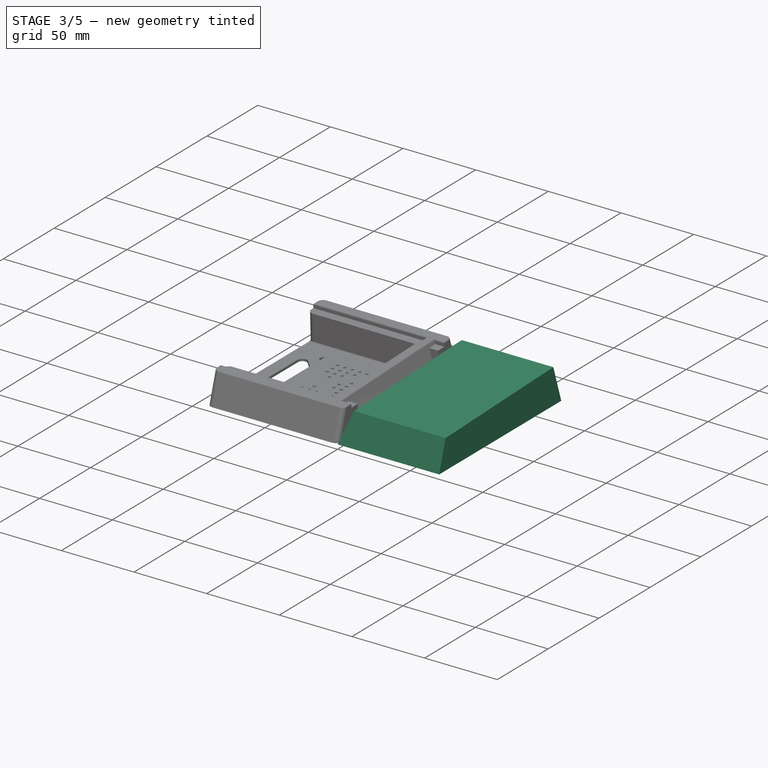
[diagram: stage 3 of 5 — iso view after this stage's code; geometry added in this stage tinted green]
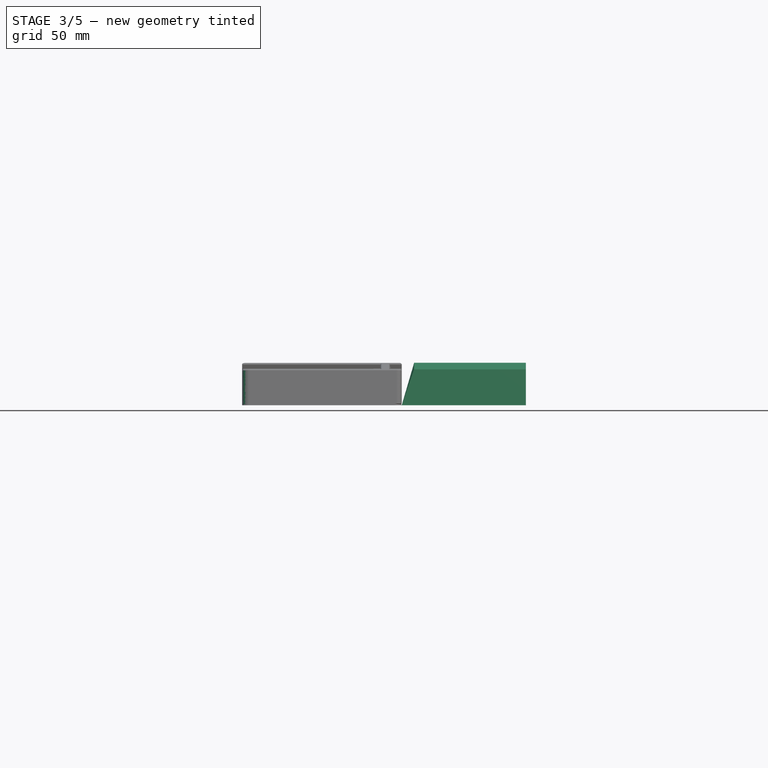
[diagram: stage 3 of 5 — front view after this stage's code; geometry added in this stage tinted green]
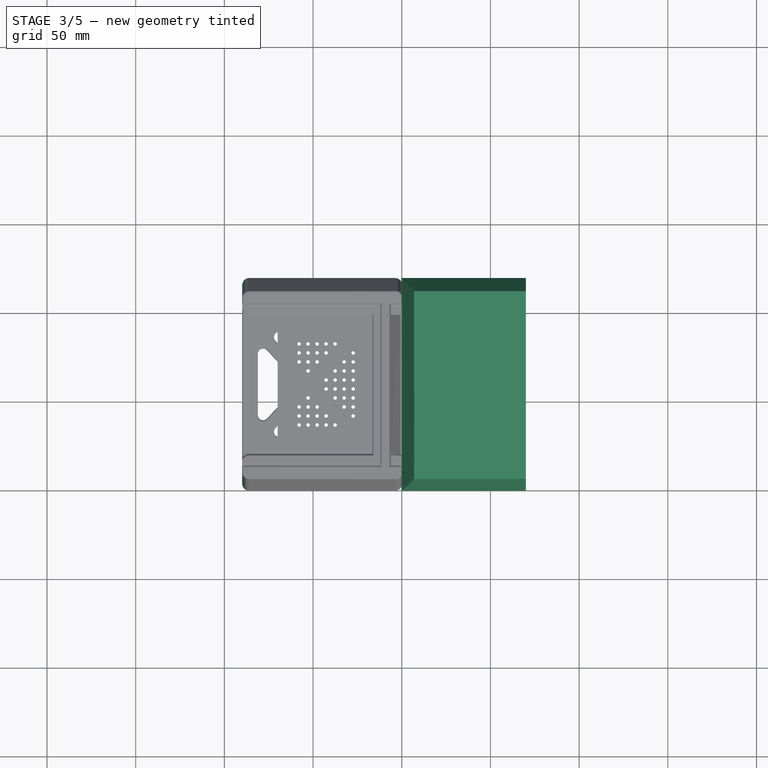
[diagram: stage 3 of 5 — top view after this stage's code; geometry added in this stage tinted green]
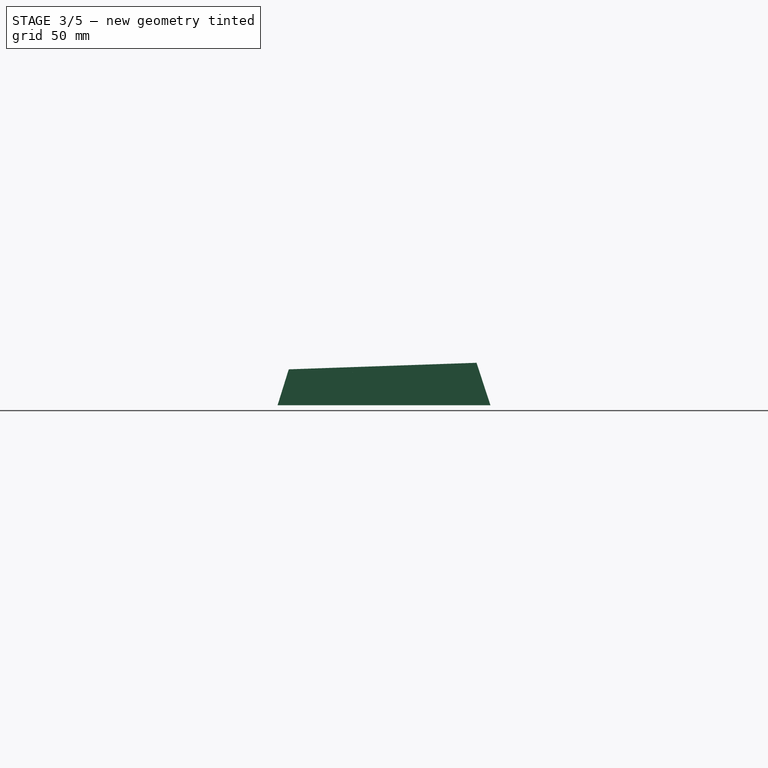
[diagram: stage 3 of 5 — right view after this stage's code; geometry added in this stage tinted green]
FEATURE [PartDesign::Body] Body  label="Plate"
  Group = -> [Sketch,Pad,Chamfer]
  Origin = -> Origin
  Placement = pos=(12,13.7707,17.4967) rot=(1,0,0;0.034907rad)
  Tip = -> Chamfer
FEATURE [Sketcher::SketchObject] Sketch001
  FullyConstrained = true
  MapMode = 5
  Support = -> [XY_Plane001]
  sketch-geometry (4):
    g0: LineSegment StartX=0 StartY=0 StartZ=0 EndX=70 EndY=0 EndZ=0
    g1: LineSegment StartX=70 StartY=0 StartZ=0 EndX=70 EndY=120 EndZ=0
    g2: LineSegment StartX=70 StartY=120 StartZ=0 EndX=0 EndY=120 EndZ=0
    g3: LineSegment StartX=0 StartY=120 StartZ=0 EndX=0 EndY=0 EndZ=0
  constraints (11):
    c: Coincident(g0,g1)
    c: Coincident(g1,g2)
    c: Coincident(g2,g3)
    c: Coincident(g3,g0)
    c: Horizontal(g0)
    c: Horizontal(g2)
    c: Vertical(g1)
    c: Vertical(g3)
    c: Coincident(g0,g-1)
    c: DistanceX(g2,g2) = 70
    c: DistanceY(g3,g3) = 120
FEATURE [Sketcher::SketchObject] Sketch002
  AttachmentOffset = pos=(0,0,20) rot=(1,0,0;0.034907rad)
  ExternalGeometry = -> [Sketch001]
  FullyConstrained = true
  MapMode = 5
  Placement = pos=(0,0,20) rot=(1,0,0;0.034907rad)
  Support = -> [XY_Plane001]
  sketch-geometry (4):
    g0: LineSegment StartX=7 StartY=6.30201 StartZ=0 EndX=70 EndY=6.30201 EndZ=0
    g1: LineSegment StartX=70 StartY=6.30201 StartZ=0 EndX=70 EndY=112.229 EndZ=0
    g2: LineSegment StartX=70 StartY=112.229 StartZ=0 EndX=7 EndY=112.229 EndZ=0
    g3: LineSegment StartX=7 StartY=112.229 StartZ=0 EndX=7 EndY=6.30201 EndZ=0
  constraints (12):
    c: Coincident(g0,g1)
    c: Coincident(g1,g2)
    c: Coincident(g2,g3)
    c: Coincident(g3,g0)
    c: Horizontal(g0)
    c: Horizontal(g2)
    c: Vertical(g1)
    c: Vertical(g3)
    c: PointOnObject(g1,g-3)
    c: DistanceY(g2,g-4) = 7
    c: DistanceY(g-4,g0) = 7
    c: DistanceX(g-4,g2) = 7
FEATURE [PartDesign::AdditiveLoft] AdditiveLoft
  Closed = true
  Profile = -> Sketch001
  Ruled = true
  Sections = -> [Sketch002]
FEATURE [Sketcher::SketchObject] Sketch012
  ExternalGeometry = -> [Pocket005]
  FullyConstrained = true
  MapMode = 5
  Placement = pos=(0,-0.592866,16.9775) rot=(1,0,0;0.034907rad)
  Support = -> [Pocket005]
  sketch-geometry (2):
    g0: Circle CenterX=-42 CenterY=101.563 CenterZ=0 NormalX=0 NormalY=0 NormalZ=1 AngleXU=0 Radius=1.5
    g1: Circle CenterX=-42 CenterY=18.3634 CenterZ=0 NormalX=0 NormalY=0 NormalZ=1 AngleXU=0 Radius=1.5
  constraints (6):
    c: Diameter(g0) = 3
    c: DistanceX(g0,g-4) = 30
    c: DistanceY(g0,g-4) = 4
    c: Equal(g0,g1)
    c: Vertical(g1,g0)
    c: DistanceY(g-5,g1) = 4
FEATURE [PartDesign::Hole] Hole001
  BaseFeature = -> Pocket005
  CustomThreadClearance = 0
  Depth = 25
  DepthType = 0
  Diameter = 2.5
  DrillForDepth = false
  DrillPoint = 1
  DrillPointAngle = 118
  HoleCutCountersinkAngle = 90
  HoleCutCustomValues = false
  HoleCutDepth = 0
  HoleCutDiameter = 6.1
  HoleCutType = 0
  ModelThread = false
  Profile = -> Sketch012
  Tapered = false
  TaperedAngle = 90
  ThreadClass = 0
  ThreadDepth = 25
  ThreadDepthType = 0
  ThreadDirection = 0
  ThreadFit = 0
  ThreadSize = 9
  ThreadType = 1
  Threaded = true
  UseCustomThreadClearance = false
FEATURE [Sketcher::SketchObject] Sketch013
  ExternalGeometry = -> [Hole001]
  FullyConstrained = true
  MapMode = 5
  Placement = pos=(0,0,1.99878) rot=(0,0,1;0rad)
  Support = -> [Hole001]
  sketch-geometry (19):
    g0: LineSegment StartX=-90 StartY=20.3061 StartZ=0 EndX=-16 EndY=99.5543 EndZ=0
    g1: LineSegment StartX=-16 StartY=20.3061 StartZ=0 EndX=-90 EndY=99.5543 EndZ=0
    g2: GeomPoint X=-53 Y=59.9302 Z=0
    g3: LineSegment StartX=-75.9934 StartY=89.5543 StartZ=0 EndX=-30.0066 EndY=89.5543 EndZ=0
    g4: LineSegment StartX=-30.0066 StartY=89.5543 StartZ=0 EndX=-53 EndY=64.9302 EndZ=0
    g5: LineSegment StartX=-53 StartY=64.9302 StartZ=0 EndX=-75.9934 EndY=89.5543 EndZ=0
    g6: LineSegment StartX=-81.1586 StartY=84.7312 StartZ=0 EndX=-81.1586 EndY=35.1292 EndZ=0
    g7: LineSegment StartX=-81.1586 StartY=35.1292 StartZ=0 EndX=-58 EndY=59.9302 EndZ=0
    g8: LineSegment StartX=-58 StartY=59.9302 StartZ=0 EndX=-81.1586 EndY=84.7312 EndZ=0
    g9: LineSegment StartX=-75.9934 StartY=30.3061 StartZ=0 EndX=-30.0066 EndY=30.3061 EndZ=0
    g10: LineSegment StartX=-30.0066 StartY=30.3061 StartZ=0 EndX=-53 EndY=54.9302 EndZ=0
    g11: LineSegment StartX=-53 StartY=54.9302 StartZ=0 EndX=-75.9934 EndY=30.3061 EndZ=0
    g12: LineSegment StartX=-24.8414 StartY=35.1292 StartZ=0 EndX=-24.8414 EndY=84.7312 EndZ=0
    g13: LineSegment StartX=-24.8414 StartY=84.7312 StartZ=0 EndX=-48 EndY=59.9302 EndZ=0
    g14: LineSegment StartX=-48 StartY=59.9302 StartZ=0 EndX=-24.8414 EndY=35.1292 EndZ=0
    g15: LineSegment StartX=-30.0066 StartY=89.5543 StartZ=0 EndX=-24.8414 EndY=84.7312 EndZ=0
    g16: LineSegment StartX=-24.8414 StartY=35.1292 StartZ=0 EndX=-30.0066 EndY=30.3061 EndZ=0
    g17: LineSegment StartX=-75.9934 StartY=30.3061 StartZ=0 EndX=-81.1586 EndY=35.1292 EndZ=0
    g18: LineSegment StartX=-81.1586 StartY=84.7312 StartZ=0 EndX=-75.9934 EndY=89.5543 EndZ=0
  constraints (48):
    c: Coincident(g0,g-6)
    c: Coincident(g0,g-5)
    c: Coincident(g1,g-5)
    c: Coincident(g1,g-6)
    c: PointOnObject(g2,g1)
    c: PointOnObject(g2,g0)
    c: Horizontal(g3)
    c: Coincident(g3,g4)
    c: Coincident(g4,g5)
    c: Coincident(g5,g3)
    c: Vertical(g6)
    c: Coincident(g6,g7)
    c: Coincident(g7,g8)
    c: Coincident(g8,g6)
    c: Horizontal(g9)
    c: Coincident(g9,g10)
    c: Coincident(g10,g11)
    c: Coincident(g11,g9)
    c: Vertical(g12)
    c: Coincident(g12,g13)
    c: Coincident(g13,g14)
    c: Coincident(g14,g12)
    c: Parallel(g4,g0)
    c: Parallel(g13,g0)
    c: Parallel(g14,g1)
    c: Parallel(g10,g1)
    c: Parallel(g11,g0)
    c: Parallel(g7,g0)
    c: Parallel(g8,g1)
    c: Symmetric(g10,g4,g2)
    c: Vertical(g10,g4)
    c: Symmetric(g7,g13,g2)
    c: Horizontal(g7,g13)
    c: Coincident(g15,g3)
    c: Coincident(g15,g12)
    c: Coincident(g16,g12)
    c: Coincident(g16,g9)
    c: Coincident(g17,g9)
    c: Coincident(g17,g6)
    c: Coincident(g18,g6)
    c: Coincident(g18,g3)
    c: Perpendicular(g1,g18)
    c: Perpendicular(g0,g15)
    c: Perpendicular(g1,g16)
    c: Perpendicular(g0,g17)
    c: DistanceX(g7,g13) = 10
    c: DistanceY(g10,g4) = 10
    c: DistanceY(g1,g9) = 10
FEATURE [PartDesign::Pocket] Pocket006
  BaseFeature = -> Hole001
  Direction = (0,0,-1)
  Length = 5
  Length2 = 5
  Profile = -> Sketch013
  ReferenceAxis = -> Sketch013 [N_Axis]
  Type = 1
FEATURE [Sketcher::SketchObject] Sketch016
  ExternalGeometry = -> [AdditiveLoft002]
  FullyConstrained = true
  MapMode = 5
  Placement = pos=(0,-0.697565,19.9756) rot=(1,0,0;0.034907rad)
  Support = -> [AdditiveLoft002]
  sketch-geometry (6):
    g0: LineSegment StartX=-70 StartY=105.563 StartZ=0 EndX=0 EndY=105.563 EndZ=0
    g1: LineSegment StartX=0 StartY=105.563 StartZ=0 EndX=0 EndY=14.3634 EndZ=0
    g2: LineSegment StartX=0 StartY=14.3634 StartZ=0 EndX=-70 EndY=14.3634 EndZ=0
    g3: LineSegment StartX=-70 StartY=14.3634 StartZ=0 EndX=-70 EndY=105.563 EndZ=0
    g4: LineSegment StartX=-70 StartY=112.927 StartZ=0 EndX=-70 EndY=105.563 EndZ=0
    g5: LineSegment StartX=-70 StartY=7 StartZ=0 EndX=-70 EndY=14.3634 EndZ=0
  constraints (16):
    c: Coincident(g0,g1)
    c: Coincident(g1,g2)
    c: Coincident(g2,g3)
    c: Coincident(g3,g0)
    c: Horizontal(g0)
    c: Horizontal(g2)
    c: Vertical(g1)
    c: Vertical(g3)
    c: PointOnObject(g0,g-5)
    c: PointOnObject(g1,g-6)
    c: Distance(g3) = 91.2
    c: Coincident(g4,g-5)
    c: Coincident(g4,g0)
    c: Coincident(g5,g-5)
    c: Coincident(g5,g2)
    c: Equal(g5,g4)
FEATURE [PartDesign::Fillet] Fillet
  Base = -> Pocket006 [Edge50,Edge59,Edge53,Edge57,Edge39,Edge47,Edge44,Edge51,Edge45,Edge36,Edge37,Edge56]
  BaseFeature = -> Pocket006
  Radius = 3
  SupportTransform = false
  UseAllEdges = false
FEATURE [PartDesign::Fillet] Fillet007
  Base = -> Fillet [Edge57,Edge53,Edge51,Edge43,Edge47,Edge45]
  BaseFeature = -> Fillet
  Radius = 4
  SupportTransform = false
  UseAllEdges = false
FEATURE [PartDesign::Fillet] Fillet008
  Base = -> Fillet007 [Face36,Face40]
  BaseFeature = -> Fillet007
  Radius = 1
  SupportTransform = false
  UseAllEdges = false
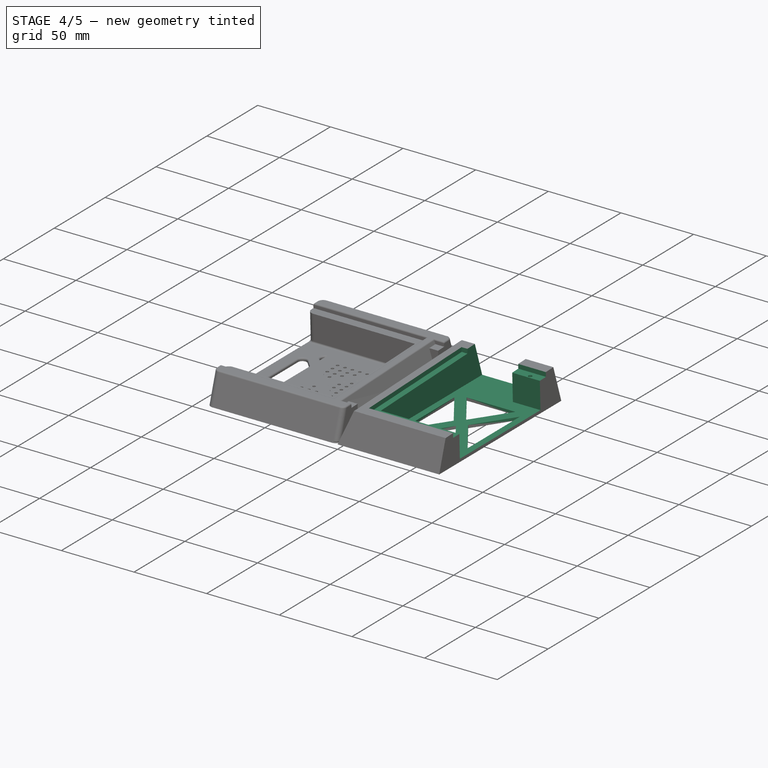
[diagram: stage 4 of 5 — iso view after this stage's code; geometry added in this stage tinted green]
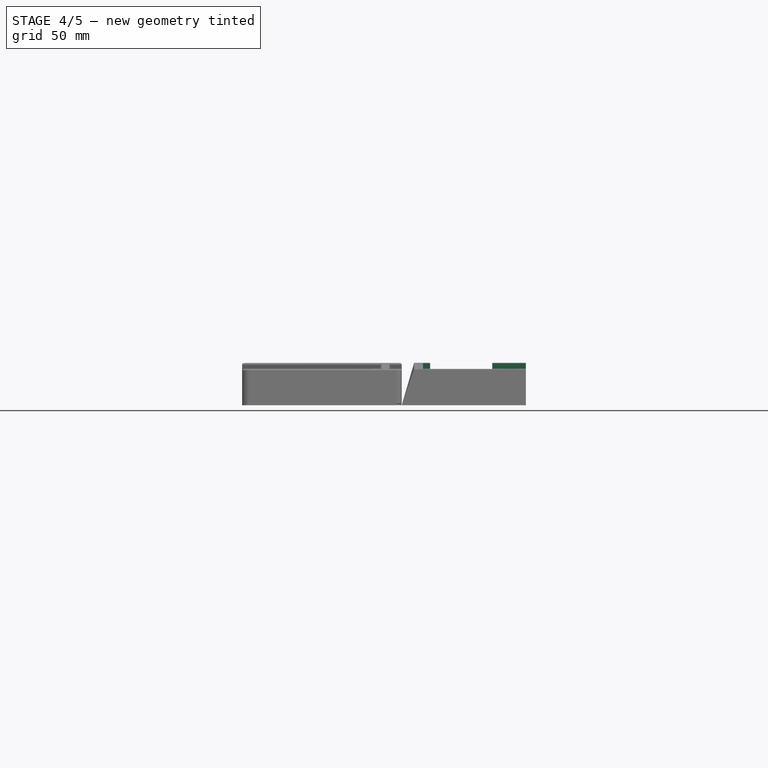
[diagram: stage 4 of 5 — front view after this stage's code; geometry added in this stage tinted green]
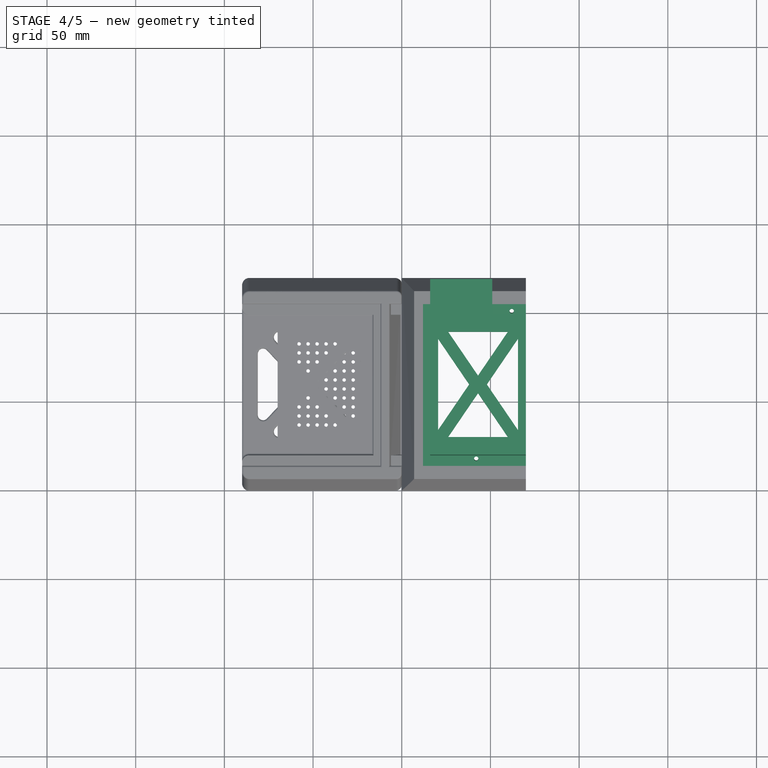
[diagram: stage 4 of 5 — top view after this stage's code; geometry added in this stage tinted green]
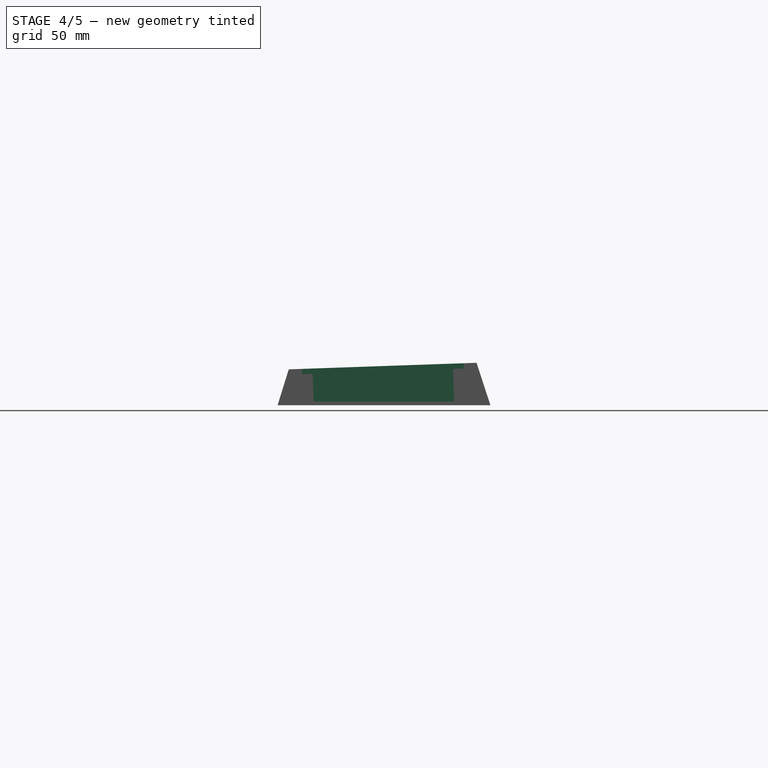
[diagram: stage 4 of 5 — right view after this stage's code; geometry added in this stage tinted green]
FEATURE [Sketcher::SketchObject] Sketch003
  ExternalGeometry = -> [AdditiveLoft]
  FullyConstrained = true
  MapMode = 5
  Placement = pos=(0,-0.697565,19.9756) rot=(1,0,0;0.034907rad)
  Support = -> [AdditiveLoft]
  sketch-geometry (6):
    g0: LineSegment StartX=12 StartY=14.3634 StartZ=0 EndX=12 EndY=105.563 EndZ=0
    g1: LineSegment StartX=12 StartY=105.563 StartZ=0 EndX=12 EndY=112.927 EndZ=0
    g2: LineSegment StartX=12 StartY=14.3634 StartZ=0 EndX=12 EndY=7 EndZ=0
    g3: LineSegment StartX=12 StartY=105.563 StartZ=0 EndX=70 EndY=105.563 EndZ=0
    g4: LineSegment StartX=12 StartY=14.3634 StartZ=0 EndX=70 EndY=14.3634 EndZ=0
    g5: LineSegment StartX=70 StartY=14.3634 StartZ=0 EndX=70 EndY=105.563 EndZ=0
  constraints (18):
    c: Vertical(g0)
    c: Coincident(g1,g0)
    c: PointOnObject(g1,g-3)
    c: Vertical(g1)
    c: Coincident(g2,g0)
    c: PointOnObject(g2,g-4)
    c: Vertical(g2)
    c: Equal(g1,g2)
    c: Distance(g0) = 91.2
    c: DistanceX(g-4,g0) = 5
    c: Coincident(g3,g0)
    c: PointOnObject(g3,g-5)
    c: Horizontal(g3)
    c: Coincident(g4,g0)
    c: PointOnObject(g4,g-5)
    c: Horizontal(g4)
    c: Coincident(g5,g4)
    c: Coincident(g5,g3)
FEATURE [PartDesign::Pocket] Pocket
  BaseFeature = -> AdditiveLoft
  Direction = (0,0.0348995,-0.999391)
  Length = 3
  Length2 = 5
  Profile = -> Sketch003
  ReferenceAxis = -> Sketch003 [N_Axis]
  Type = 0
FEATURE [Sketcher::SketchObject] Sketch004
  ExternalGeometry = -> [Pocket]
  FullyConstrained = true
  MapMode = 5
  Placement = pos=(0,-0.592866,16.9775) rot=(1,0,0;0.034907rad)
  Support = -> [Pocket]
  sketch-geometry (4):
    g0: LineSegment StartX=70 StartY=99.5634 StartZ=0 EndX=16 EndY=99.5634 EndZ=0
    g1: LineSegment StartX=16 StartY=99.5634 StartZ=0 EndX=16 EndY=20.3634 EndZ=0
    g2: LineSegment StartX=16 StartY=20.3634 StartZ=0 EndX=70 EndY=20.3634 EndZ=0
    g3: LineSegment StartX=70 StartY=20.3634 StartZ=0 EndX=70 EndY=99.5634 EndZ=0
  constraints (12):
    c: Coincident(g0,g1)
    c: Coincident(g1,g2)
    c: Coincident(g2,g3)
    c: Coincident(g3,g0)
    c: Horizontal(g0)
    c: Horizontal(g2)
    c: Vertical(g1)
    c: Vertical(g3)
    c: PointOnObject(g0,g-6)
    c: DistanceY(g0,g-6) = 6
    c: DistanceY(g-6,g2) = 6
    c: DistanceX(g-5,g1) = 4
FEATURE [PartDesign::Pocket] Pocket001
  BaseFeature = -> Pocket
  Direction = (0,0.0348995,-0.999391)
  Length = 0
  Length2 = 5
  Offset = -2
  Profile = -> Sketch004
  ReferenceAxis = -> Sketch004 [N_Axis]
  Type = 3
  UpToFace = -> Pocket [Face1]
FEATURE [Sketcher::SketchObject] Sketch005
  ExternalGeometry = -> [Pocket001]
  FullyConstrained = true
  MapMode = 5
  Placement = pos=(0,-0.592866,16.9775) rot=(1,0,0;0.034907rad)
  Support = -> [Pocket001]
  sketch-geometry (2):
    g0: Circle CenterX=62 CenterY=101.563 CenterZ=0 NormalX=0 NormalY=0 NormalZ=1 AngleXU=0 Radius=1.5
    g1: Circle CenterX=42 CenterY=18.3634 CenterZ=0 NormalX=0 NormalY=0 NormalZ=1 AngleXU=0 Radius=1.5
  constraints (6):
    c: Diameter(g0) = 3
    c: DistanceY(g0,g-4) = 4
    c: DistanceX(g-4,g0) = 50
    c: Equal(g0,g1)
    c: DistanceY(g-5,g1) = 4
    c: DistanceX(g-5,g1) = 30
FEATURE [PartDesign::Hole] Hole
  BaseFeature = -> Pocket001
  CustomThreadClearance = 0
  Depth = 284.756
  DepthType = 1
  Diameter = 2.5
  DrillForDepth = false
  DrillPoint = 1
  DrillPointAngle = 118
  HoleCutCountersinkAngle = 90
  HoleCutCustomValues = false
  HoleCutDepth = 0
  HoleCutDiameter = 6.1
  HoleCutType = 0
  ModelThread = false
  Profile = -> Sketch005
  Tapered = false
  TaperedAngle = 90
  ThreadClass = 0
  ThreadDepth = 284.756
  ThreadDepthType = 0
  ThreadDirection = 0
  ThreadFit = 0
  ThreadSize = 9
  ThreadType = 1
  Threaded = true
  UseCustomThreadClearance = false
FEATURE [Sketcher::SketchObject] Sketch006
  ExternalGeometry = -> [Hole]
  FullyConstrained = true
  MapMode = 5
  Placement = pos=(0,-0.697565,19.9756) rot=(1,0,0;0.034907rad)
  Support = -> [Hole]
  sketch-geometry (4):
    g0: LineSegment StartX=16 StartY=99.5634 StartZ=0 EndX=51 EndY=99.5634 EndZ=0
    g1: LineSegment StartX=51 StartY=99.5634 StartZ=0 EndX=51 EndY=119.927 EndZ=0
    g2: LineSegment StartX=51 StartY=119.927 StartZ=0 EndX=16 EndY=119.927 EndZ=0
    g3: LineSegment StartX=16 StartY=119.927 StartZ=0 EndX=16 EndY=99.5634 EndZ=0
  constraints (11):
    c: Coincident(g0,g1)
    c: Coincident(g1,g2)
    c: Coincident(g2,g3)
    c: Coincident(g3,g0)
    c: Horizontal(g0)
    c: Horizontal(g2)
    c: Vertical(g1)
    c: Vertical(g3)
    c: Coincident(g0,g-3)
    c: PointOnObject(g1,g-4)
    c: DistanceX(g2,g2) = 35
FEATURE [PartDesign::Pocket] Pocket002
  BaseFeature = -> Hole
  Direction = (0,0.0348995,-0.999391)
  Length = 0
  Length2 = 5
  Profile = -> Sketch006
  ReferenceAxis = -> Sketch006 [N_Axis]
  Type = 3
  UpToFace = -> Hole [Face12]
FEATURE [Sketcher::SketchObject] Sketch007
  ExternalGeometry = -> [Pocket002]
  FullyConstrained = true
  MapMode = 5
  Placement = pos=(0,0,1.99878) rot=(0,0,1;0rad)
  Support = -> [Pocket002]
  sketch-geometry (19):
    g0: LineSegment StartX=16 StartY=99.5543 StartZ=0 EndX=70 EndY=20.3061 EndZ=0
    g1: LineSegment StartX=70 StartY=99.5543 StartZ=0 EndX=16 EndY=20.3061 EndZ=0
    g2: LineSegment StartX=26.221 StartY=89.5543 StartZ=0 EndX=43 EndY=64.9302 EndZ=0
    g3: LineSegment StartX=43 StartY=64.9302 StartZ=0 EndX=59.779 EndY=89.5543 EndZ=0
    g4: LineSegment StartX=59.779 StartY=89.5543 StartZ=0 EndX=26.221 EndY=89.5543 EndZ=0
    g5: LineSegment StartX=26.221 StartY=30.3061 StartZ=0 EndX=43 EndY=54.9302 EndZ=0
    g6: LineSegment StartX=43 StartY=54.9302 StartZ=0 EndX=59.779 EndY=30.3061 EndZ=0
    g7: LineSegment StartX=59.779 StartY=30.3061 StartZ=0 EndX=26.221 EndY=30.3061 EndZ=0
    g8: LineSegment StartX=20.4798 StartY=85.6422 StartZ=0 EndX=38 EndY=59.9302 EndZ=0
    g9: LineSegment StartX=38 StartY=59.9302 StartZ=0 EndX=20.4798 EndY=34.2182 EndZ=0
    g10: LineSegment StartX=20.4798 StartY=34.2182 StartZ=0 EndX=20.4798 EndY=85.6422 EndZ=0
    g11: LineSegment StartX=48 StartY=59.9302 StartZ=0 EndX=65.5202 EndY=85.6422 EndZ=0
    g12: LineSegment StartX=65.5202 StartY=85.6422 StartZ=0 EndX=65.5202 EndY=34.2182 EndZ=0
    g13: LineSegment StartX=65.5202 StartY=34.2182 StartZ=0 EndX=48 EndY=59.9302 EndZ=0
    g14: GeomPoint X=43 Y=59.9302 Z=0
    g15: LineSegment StartX=59.779 StartY=89.5543 StartZ=0 EndX=65.5202 EndY=85.6422 EndZ=0
    g16: LineSegment StartX=26.221 StartY=89.5543 StartZ=0 EndX=20.4798 EndY=85.6422 EndZ=0
    g17: LineSegment StartX=20.4798 StartY=34.2182 StartZ=0 EndX=26.221 EndY=30.3061 EndZ=0
    g18: LineSegment StartX=59.779 StartY=30.3061 StartZ=0 EndX=65.5202 EndY=34.2182 EndZ=0
  constraints (48):
    c: Coincident(g0,g-5)
    c: Coincident(g0,g-4)
    c: Coincident(g1,g-4)
    c: Coincident(g1,g-5)
    c: Coincident(g2,g3)
    c: Coincident(g3,g4)
    c: Coincident(g4,g2)
    c: Horizontal(g4)
    c: Parallel(g3,g1)
    c: Parallel(g2,g0)
    c: Coincident(g5,g6)
    c: Coincident(g6,g7)
    c: Coincident(g7,g5)
    c: Horizontal(g7)
    c: Parallel(g6,g0)
    c: Parallel(g5,g1)
    c: Coincident(g8,g9)
    c: Coincident(g9,g10)
    c: Vertical(g10)
    c: Coincident(g8,g10)
    c: Parallel(g8,g0)
    c: Parallel(g9,g1)
    c: Coincident(g11,g12)
    c: Vertical(g12)
    c: Coincident(g12,g13)
    c: Coincident(g13,g11)
    c: Parallel(g11,g1)
    c: Parallel(g13,g0)
    c: PointOnObject(g14,g0)
    c: PointOnObject(g14,g1)
    c: Coincident(g15,g3)
    c: Coincident(g15,g11)
    c: Coincident(g16,g2)
    c: Coincident(g16,g8)
    c: Coincident(g17,g9)
    c: Coincident(g17,g5)
    c: Coincident(g18,g6)
    c: Coincident(g18,g12)
    c: Perpendicular(g18,g0)
    c: Perpendicular(g1,g17)
    c: Perpendicular(g0,g16)
    c: Perpendicular(g1,g15)
    c: Symmetric(g8,g11,g14)
    c: Horizontal(g11,g8)
    c: Symmetric(g5,g2,g14)
    c: DistanceY(g5,g2) = 10
    c: DistanceX(g8,g11) = 10
    c: DistanceY(g0,g6) = 10
FEATURE [PartDesign::Pocket] Pocket003
  BaseFeature = -> Pocket002
  Direction = (0,0,-1)
  Length = 5
  Length2 = 5
  Profile = -> Sketch007
  ReferenceAxis = -> Sketch007 [N_Axis]
  Type = 1
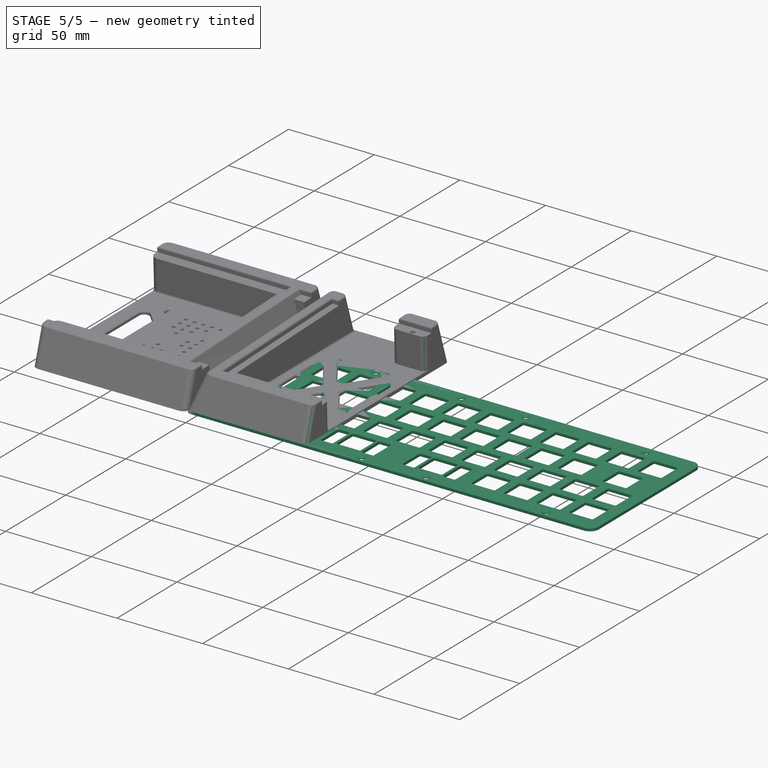
[diagram: stage 5 of 5 — iso view after this stage's code; geometry added in this stage tinted green]
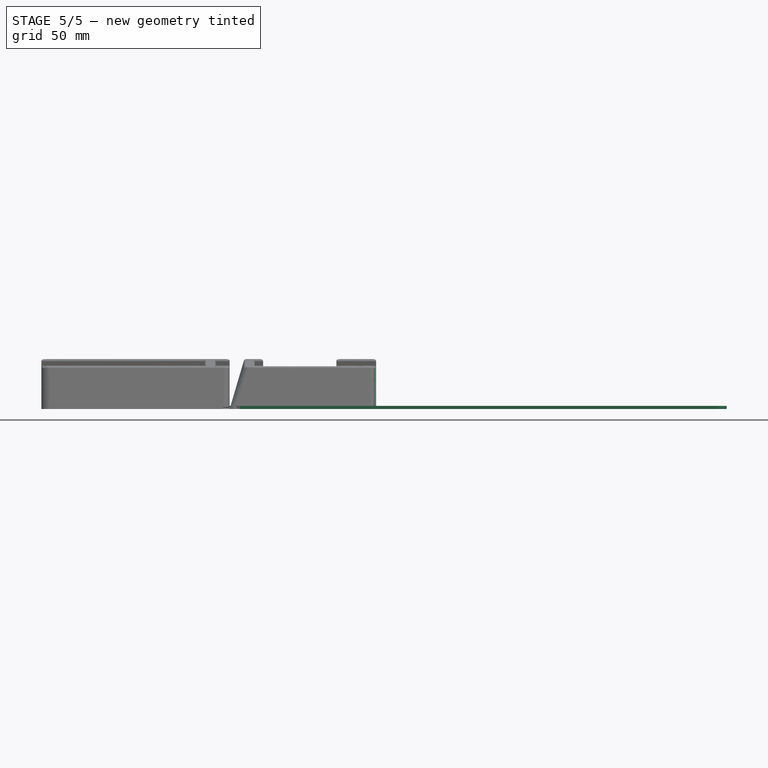
[diagram: stage 5 of 5 — front view after this stage's code; geometry added in this stage tinted green]
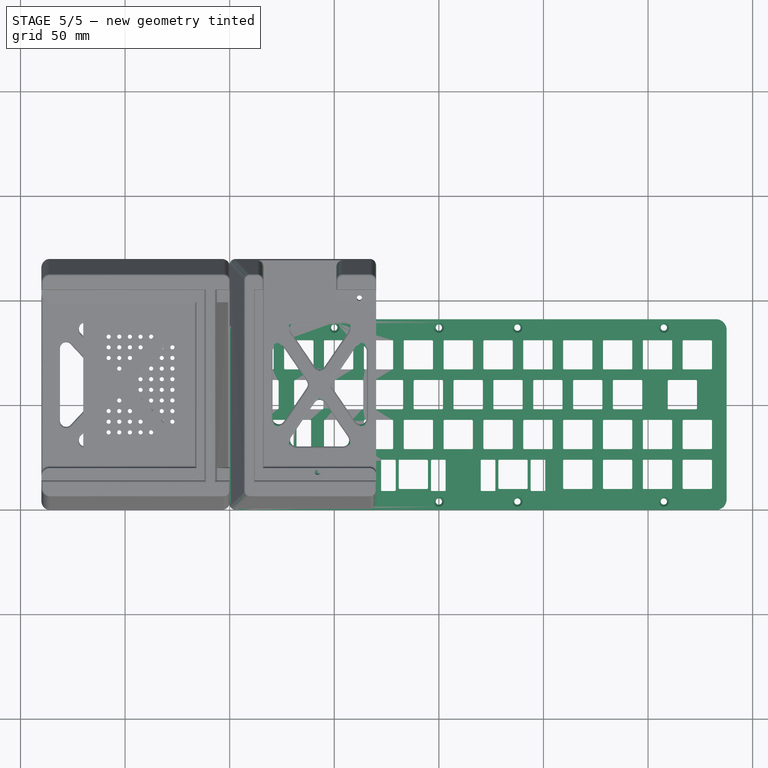
[diagram: stage 5 of 5 — top view after this stage's code; geometry added in this stage tinted green]
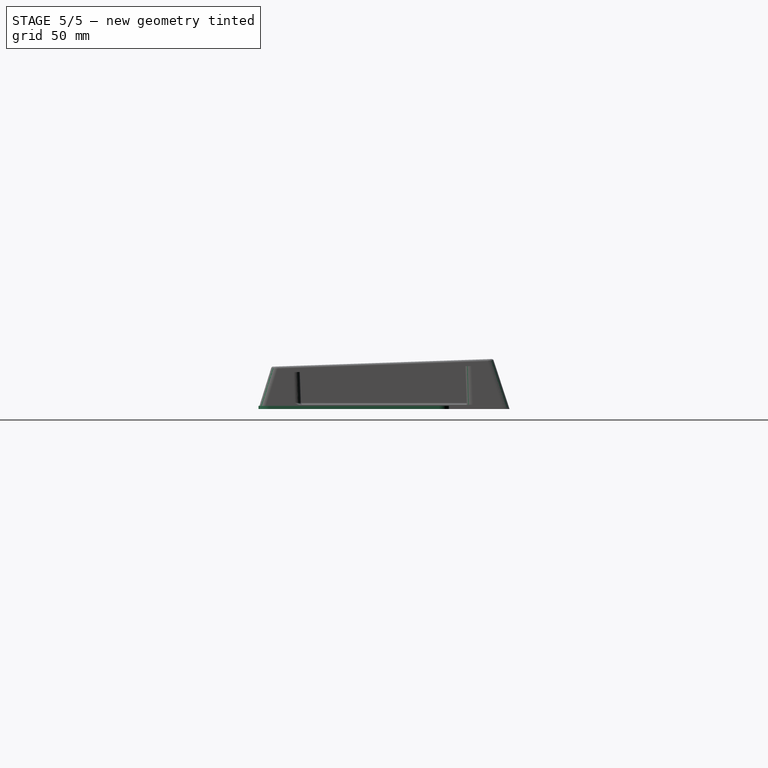
[diagram: stage 5 of 5 — right view after this stage's code; geometry added in this stage tinted green]
FEATURE [Sketcher::SketchObject] Sketch
  FullyConstrained = false
  sketch-geometry (408):
    g0: ArcOfCircle CenterX=7.5 CenterY=67.65 CenterZ=0 NormalX=0 NormalY=0 NormalZ=1 AngleXU=0 Radius=0.5 StartAngle=3.14159 EndAngle=4.71239
    g1: ArcOfCircle CenterX=20.5 CenterY=67.65 CenterZ=0 NormalX=0 NormalY=0 NormalZ=1 AngleXU=0 Radius=0.5 StartAngle=4.71239 EndAngle=6.28319
    g2: ArcOfCircle CenterX=20.5 CenterY=80.65 CenterZ=0 NormalX=0 NormalY=0 NormalZ=1 AngleXU=0 Radius=0.5 StartAngle=0 EndAngle=1.5708
    g3: ArcOfCircle CenterX=7.5 CenterY=80.65 CenterZ=0 NormalX=0 NormalY=0 NormalZ=1 AngleXU=0 Radius=0.5 StartAngle=1.5708 EndAngle=3.14159
    g4: LineSegment StartX=7.5 StartY=67.15 StartZ=0 EndX=20.5 EndY=67.15 EndZ=0
    g5: LineSegment StartX=20.5 StartY=81.15 StartZ=0 EndX=7.5 EndY=81.15 EndZ=0
    g6: LineSegment StartX=21 StartY=67.65 StartZ=0 EndX=21 EndY=80.65 EndZ=0
    g7: LineSegment StartX=7 StartY=80.65 StartZ=0 EndX=7 EndY=67.65 EndZ=0
    g8: ArcOfCircle CenterX=26.55 CenterY=67.65 CenterZ=0 NormalX=0 NormalY=0 NormalZ=1 AngleXU=0 Radius=0.5 StartAngle=3.14159 EndAngle=4.71239
    g9: ArcOfCircle CenterX=39.55 CenterY=67.65 CenterZ=0 NormalX=0 NormalY=0 NormalZ=1 AngleXU=0 Radius=0.5 StartAngle=4.71239 EndAngle=6.28319
    g10: ArcOfCircle CenterX=39.55 CenterY=80.65 CenterZ=0 NormalX=0 NormalY=0 NormalZ=1 AngleXU=0 Radius=0.5 StartAngle=0 EndAngle=1.5708
    g11: ArcOfCircle CenterX=26.55 CenterY=80.65 CenterZ=0 NormalX=0 NormalY=0 NormalZ=1 AngleXU=0 Radius=0.5 StartAngle=1.5708 EndAngle=3.14159
    g12: LineSegment StartX=26.55 StartY=67.15 StartZ=0 EndX=39.55 EndY=67.15 EndZ=0
    g13: LineSegment StartX=39.55 StartY=81.15 StartZ=0 EndX=26.55 EndY=81.15 EndZ=0
    g14: LineSegment StartX=40.05 StartY=67.65 StartZ=0 EndX=40.05 EndY=80.65 EndZ=0
    g15: LineSegment StartX=26.05 StartY=80.65 StartZ=0 EndX=26.05 EndY=67.65 EndZ=0
    g16: ArcOfCircle CenterX=45.6 CenterY=67.65 CenterZ=0 NormalX=0 NormalY=0 NormalZ=1 AngleXU=0 Radius=0.5 StartAngle=3.14159 EndAngle=4.71239
    g17: ArcOfCircle CenterX=58.6 CenterY=67.65 CenterZ=0 NormalX=0 NormalY=0 NormalZ=1 AngleXU=0 Radius=0.5 StartAngle=4.71239 EndAngle=6.28319
    g18: ArcOfCircle CenterX=58.6 CenterY=80.65 CenterZ=0 NormalX=0 NormalY=0 NormalZ=1 AngleXU=0 Radius=0.5 StartAngle=0 EndAngle=1.5708
    g19: ArcOfCircle CenterX=45.6 CenterY=80.65 CenterZ=0 NormalX=0 NormalY=0 NormalZ=1 AngleXU=0 Radius=0.5 StartAngle=1.5708 EndAngle=3.14159
    g20: LineSegment StartX=45.6 StartY=67.15 StartZ=0 EndX=58.6 EndY=67.15 EndZ=0
    g21: LineSegment StartX=58.6 StartY=81.15 StartZ=0 EndX=45.6 EndY=81.15 EndZ=0
    g22: LineSegment StartX=59.1 StartY=67.65 StartZ=0 EndX=59.1 EndY=80.65 EndZ=0
    g23: LineSegment StartX=45.1 StartY=80.65 StartZ=0 EndX=45.1 EndY=67.65 EndZ=0
    g24: ArcOfCircle CenterX=64.65 CenterY=67.65 CenterZ=0 NormalX=0 NormalY=0 NormalZ=1 AngleXU=0 Radius=0.5 StartAngle=3.14159 EndAngle=4.71239
    g25: ArcOfCircle CenterX=77.65 CenterY=67.65 CenterZ=0 NormalX=0 NormalY=0 NormalZ=1 AngleXU=0 Radius=0.5 StartAngle=4.71239 EndAngle=6.28319
    g26: ArcOfCircle CenterX=77.65 CenterY=80.65 CenterZ=0 NormalX=0 NormalY=0 NormalZ=1 AngleXU=0 Radius=0.5 StartAngle=0 EndAngle=1.5708
    g27: ArcOfCircle CenterX=64.65 CenterY=80.65 CenterZ=0 NormalX=0 NormalY=0 NormalZ=1 AngleXU=0 Radius=0.5 StartAngle=1.5708 EndAngle=3.14159
    g28: LineSegment StartX=64.65 StartY=67.15 StartZ=0 EndX=77.65 EndY=67.15 EndZ=0
    g29: LineSegment StartX=77.65 StartY=81.15 StartZ=0 EndX=64.65 EndY=81.15 EndZ=0
    g30: LineSegment StartX=78.15 StartY=67.65 StartZ=0 EndX=78.15 EndY=80.65 EndZ=0
    g31: LineSegment StartX=64.15 StartY=80.65 StartZ=0 EndX=64.15 EndY=67.65 EndZ=0
    g32: ArcOfCircle CenterX=83.7 CenterY=67.65 CenterZ=0 NormalX=0 NormalY=0 NormalZ=1 AngleXU=0 Radius=0.5 StartAngle=3.14159 EndAngle=4.71239
    g33: ArcOfCircle CenterX=96.7 CenterY=67.65 CenterZ=0 NormalX=0 NormalY=0 NormalZ=1 AngleXU=0 Radius=0.5 StartAngle=4.71239 EndAngle=6.28319
    g34: ArcOfCircle CenterX=96.7 CenterY=80.65 CenterZ=0 NormalX=0 NormalY=0 NormalZ=1 AngleXU=0 Radius=0.5 StartAngle=0 EndAngle=1.5708
    g35: ArcOfCircle CenterX=83.7 CenterY=80.65 CenterZ=0 NormalX=0 NormalY=0 NormalZ=1 AngleXU=0 Radius=0.5 StartAngle=1.5708 EndAngle=3.14159
    g36: LineSegment StartX=83.7 StartY=67.15 StartZ=0 EndX=96.7 EndY=67.15 EndZ=0
    g37: LineSegment StartX=96.7 StartY=81.15 StartZ=0 EndX=83.7 EndY=81.15 EndZ=0
    g38: LineSegment StartX=97.2 StartY=67.65 StartZ=0 EndX=97.2 EndY=80.65 EndZ=0
    g39: LineSegment StartX=83.2 StartY=80.65 StartZ=0 EndX=83.2 EndY=67.65 EndZ=0
    g40: ArcOfCircle CenterX=102.75 CenterY=67.65 CenterZ=0 NormalX=0 NormalY=0 NormalZ=1 AngleXU=0 Radius=0.5 StartAngle=3.14159 EndAngle=4.71239
    g41: ArcOfCircle CenterX=115.75 CenterY=67.65 CenterZ=0 NormalX=0 NormalY=0 NormalZ=1 AngleXU=0 Radius=0.5 StartAngle=4.71239 EndAngle=6.28319
    g42: ArcOfCircle CenterX=115.75 CenterY=80.65 CenterZ=0 NormalX=0 NormalY=0 NormalZ=1 AngleXU=0 Radius=0.5 StartAngle=0 EndAngle=1.5708
    g43: ArcOfCircle CenterX=102.75 CenterY=80.65 CenterZ=0 NormalX=0 NormalY=0 NormalZ=1 AngleXU=0 Radius=0.5 StartAngle=1.5708 EndAngle=3.14159
    g44: LineSegment StartX=102.75 StartY=67.15 StartZ=0 EndX=115.75 EndY=67.15 EndZ=0
    g45: LineSegment StartX=115.75 StartY=81.15 StartZ=0 EndX=102.75 EndY=81.15 EndZ=0
    g46: LineSegment StartX=116.25 StartY=67.65 StartZ=0 EndX=116.25 EndY=80.65 EndZ=0
    g47: LineSegment StartX=102.25 StartY=80.65 StartZ=0 EndX=102.25 EndY=67.65 EndZ=0
    g48: ArcOfCircle CenterX=121.8 CenterY=67.65 CenterZ=0 NormalX=0 NormalY=0 NormalZ=1 AngleXU=0 Radius=0.5 StartAngle=3.14159 EndAngle=4.71239
    g49: ArcOfCircle CenterX=134.8 CenterY=67.65 CenterZ=0 NormalX=0 NormalY=0 NormalZ=1 AngleXU=0 Radius=0.5 StartAngle=4.71239 EndAngle=6.28319
    g50: ArcOfCircle CenterX=134.8 CenterY=80.65 CenterZ=0 NormalX=0 NormalY=0 NormalZ=1 AngleXU=0 Radius=0.5 StartAngle=0 EndAngle=1.5708
    g51: ArcOfCircle CenterX=121.8 CenterY=80.65 CenterZ=0 NormalX=0 NormalY=0 NormalZ=1 AngleXU=0 Radius=0.5 StartAngle=1.5708 EndAngle=3.14159
    g52: LineSegment StartX=121.8 StartY=67.15 StartZ=0 EndX=134.8 EndY=67.15 EndZ=0
    g53: LineSegment StartX=134.8 StartY=81.15 StartZ=0 EndX=121.8 EndY=81.15 EndZ=0
    g54: LineSegment StartX=135.3 StartY=67.65 StartZ=0 EndX=135.3 EndY=80.65 EndZ=0
    g55: LineSegment StartX=121.3 StartY=80.65 StartZ=0 EndX=121.3 EndY=67.65 EndZ=0
    g56: ArcOfCircle CenterX=140.85 CenterY=67.65 CenterZ=0 NormalX=0 NormalY=0 NormalZ=1 AngleXU=0 Radius=0.5 StartAngle=3.14159 EndAngle=4.71239
    g57: ArcOfCircle CenterX=153.85 CenterY=67.65 CenterZ=0 NormalX=0 NormalY=0 NormalZ=1 AngleXU=0 Radius=0.5 StartAngle=4.71239 EndAngle=6.28319
    g58: ArcOfCircle CenterX=153.85 CenterY=80.65 CenterZ=0 NormalX=0 NormalY=0 NormalZ=1 AngleXU=0 Radius=0.5 StartAngle=0 EndAngle=1.5708
    g59: ArcOfCircle CenterX=140.85 CenterY=80.65 CenterZ=0 NormalX=0 NormalY=0 NormalZ=1 AngleXU=0 Radius=0.5 StartAngle=1.5708 EndAngle=3.14159
    g60: LineSegment StartX=140.85 StartY=67.15 StartZ=0 EndX=153.85 EndY=67.15 EndZ=0
    g61: LineSegment StartX=153.85 StartY=81.15 StartZ=0 EndX=140.85 EndY=81.15 EndZ=0
    g62: LineSegment StartX=154.35 StartY=67.65 StartZ=0 EndX=154.35 EndY=80.65 EndZ=0
    g63: LineSegment StartX=140.35 StartY=80.65 StartZ=0 EndX=140.35 EndY=67.65 EndZ=0
    g64: ArcOfCircle CenterX=159.9 CenterY=67.65 CenterZ=0 NormalX=0 NormalY=0 NormalZ=1 AngleXU=0 Radius=0.5 StartAngle=3.14159 EndAngle=4.71239
    g65: ArcOfCircle CenterX=172.9 CenterY=67.65 CenterZ=0 NormalX=0 NormalY=0 NormalZ=1 AngleXU=0 Radius=0.5 StartAngle=4.71239 EndAngle=6.28319
    g66: ArcOfCircle CenterX=172.9 CenterY=80.65 CenterZ=0 NormalX=0 NormalY=0 NormalZ=1 AngleXU=0 Radius=0.5 StartAngle=0 EndAngle=1.5708
    g67: ArcOfCircle CenterX=159.9 CenterY=80.65 CenterZ=0 NormalX=0 NormalY=0 NormalZ=1 AngleXU=0 Radius=0.5 StartAngle=1.5708 EndAngle=3.14159
    g68: LineSegment StartX=159.9 StartY=67.15 StartZ=0 EndX=172.9 EndY=67.15 EndZ=0
    g69: LineSegment StartX=172.9 StartY=81.15 StartZ=0 EndX=159.9 EndY=81.15 EndZ=0
    g70: LineSegment StartX=173.4 StartY=67.65 StartZ=0 EndX=173.4 EndY=80.65 EndZ=0
    g71: LineSegment StartX=159.4 StartY=80.65 StartZ=0 EndX=159.4 EndY=67.65 EndZ=0
    g72: ArcOfCircle CenterX=178.95 CenterY=67.65 CenterZ=0 NormalX=0 NormalY=0 NormalZ=1 AngleXU=0 Radius=0.5 StartAngle=3.14159 EndAngle=4.71239
    g73: ArcOfCircle CenterX=191.95 CenterY=67.65 CenterZ=0 NormalX=0 NormalY=0 NormalZ=1 AngleXU=0 Radius=0.5 StartAngle=4.71239 EndAngle=6.28319
    g74: ArcOfCircle CenterX=191.95 CenterY=80.65 CenterZ=0 NormalX=0 NormalY=0 NormalZ=1 AngleXU=0 Radius=0.5 StartAngle=0 EndAngle=1.5708
    g75: ArcOfCircle CenterX=178.95 CenterY=80.65 CenterZ=0 NormalX=0 NormalY=0 NormalZ=1 AngleXU=0 Radius=0.5 StartAngle=1.5708 EndAngle=3.14159
    g76: LineSegment StartX=178.95 StartY=67.15 StartZ=0 EndX=191.95 EndY=67.15 EndZ=0
    g77: LineSegment StartX=191.95 StartY=81.15 StartZ=0 EndX=178.95 EndY=81.15 EndZ=0
    g78: LineSegment StartX=192.45 StartY=67.65 StartZ=0 EndX=192.45 EndY=80.65 EndZ=0
    g79: LineSegment StartX=178.45 StartY=80.65 StartZ=0 EndX=178.45 EndY=67.65 EndZ=0
    g80: ArcOfCircle CenterX=198 CenterY=67.65 CenterZ=0 NormalX=0 NormalY=0 NormalZ=1 AngleXU=0 Radius=0.5 StartAngle=3.14159 EndAngle=4.71239
    g81: ArcOfCircle CenterX=211 CenterY=67.65 CenterZ=0 NormalX=0 NormalY=0 NormalZ=1 AngleXU=0 Radius=0.5 StartAngle=4.71239 EndAngle=6.28319
    g82: ArcOfCircle CenterX=211 CenterY=80.65 CenterZ=0 NormalX=0 NormalY=0 NormalZ=1 AngleXU=0 Radius=0.5 StartAngle=0 EndAngle=1.5708
    g83: ArcOfCircle CenterX=198 CenterY=80.65 CenterZ=0 NormalX=0 NormalY=0 NormalZ=1 AngleXU=0 Radius=0.5 StartAngle=1.5708 EndAngle=3.14159
    g84: LineSegment StartX=198 StartY=67.15 StartZ=0 EndX=211 EndY=67.15 EndZ=0
    g85: LineSegment StartX=211 StartY=81.15 StartZ=0 EndX=198 EndY=81.15 EndZ=0
    g86: LineSegment StartX=211.5 StartY=67.65 StartZ=0 EndX=211.5 EndY=80.65 EndZ=0
    g87: LineSegment StartX=197.5 StartY=80.65 StartZ=0 EndX=197.5 EndY=67.65 EndZ=0
    g88: ArcOfCircle CenterX=217.05 CenterY=67.65 CenterZ=0 NormalX=0 NormalY=0 NormalZ=1 AngleXU=0 Radius=0.5 StartAngle=3.14159 EndAngle=4.71239
    g89: ArcOfCircle CenterX=230.05 CenterY=67.65 CenterZ=0 NormalX=0 NormalY=0 NormalZ=1 AngleXU=0 Radius=0.5 StartAngle=4.71239 EndAngle=6.28319
    g90: ArcOfCircle CenterX=230.05 CenterY=80.65 CenterZ=0 NormalX=0 NormalY=0 NormalZ=1 AngleXU=0 Radius=0.5 StartAngle=0 EndAngle=1.5708
    g91: ArcOfCircle CenterX=217.05 CenterY=80.65 CenterZ=0 NormalX=0 NormalY=0 NormalZ=1 AngleXU=0 Radius=0.5 StartAngle=1.5708 EndAngle=3.14159
    g92: LineSegment StartX=217.05 StartY=67.15 StartZ=0 EndX=230.05 EndY=67.15 EndZ=0
    g93: LineSegment StartX=230.05 StartY=81.15 StartZ=0 EndX=217.05 EndY=81.15 EndZ=0
    g94: LineSegment StartX=230.55 StartY=67.65 StartZ=0 EndX=230.55 EndY=80.65 EndZ=0
    g95: LineSegment StartX=216.55 StartY=80.65 StartZ=0 EndX=216.55 EndY=67.65 EndZ=0
    g96: ArcOfCircle CenterX=9.88125 CenterY=48.6 CenterZ=0 NormalX=0 NormalY=0 NormalZ=1 AngleXU=0 Radius=0.5 StartAngle=3.14159 EndAngle=4.71239
    g97: ArcOfCircle CenterX=22.8813 CenterY=48.6 CenterZ=0 NormalX=0 NormalY=0 NormalZ=1 AngleXU=0 Radius=0.5 StartAngle=4.71239 EndAngle=6.28319
    g98: ArcOfCircle CenterX=22.8813 CenterY=61.6 CenterZ=0 NormalX=0 NormalY=0 NormalZ=1 AngleXU=0 Radius=0.5 StartAngle=0 EndAngle=1.5708
    g99: ArcOfCircle CenterX=9.88125 CenterY=61.6 CenterZ=0 NormalX=0 NormalY=0 NormalZ=1 AngleXU=0 Radius=0.5 StartAngle=1.5708 EndAngle=3.14159
    g100: LineSegment StartX=9.88125 StartY=48.1 StartZ=0 EndX=22.8813 EndY=48.1 EndZ=0
    g101: LineSegment StartX=22.8813 StartY=62.1 StartZ=0 EndX=9.88125 EndY=62.1 EndZ=0
    g102: LineSegment StartX=23.3813 StartY=48.6 StartZ=0 EndX=23.3813 EndY=61.6 EndZ=0
    g103: LineSegment StartX=9.38125 StartY=61.6 StartZ=0 EndX=9.38125 EndY=48.6 EndZ=0
    g104: ArcOfCircle CenterX=31.3125 CenterY=48.6 CenterZ=0 NormalX=0 NormalY=0 NormalZ=1 AngleXU=0 Radius=0.5 StartAngle=3.14159 EndAngle=4.71239
    g105: ArcOfCircle CenterX=44.3125 CenterY=48.6 CenterZ=0 NormalX=0 NormalY=0 NormalZ=1 AngleXU=0 Radius=0.5 StartAngle=4.71239 EndAngle=6.28319
    g106: ArcOfCircle CenterX=44.3125 CenterY=61.6 CenterZ=0 NormalX=0 NormalY=0 NormalZ=1 AngleXU=0 Radius=0.5 StartAngle=0 EndAngle=1.5708
    g107: ArcOfCircle CenterX=31.3125 CenterY=61.6 CenterZ=0 NormalX=0 NormalY=0 NormalZ=1 AngleXU=0 Radius=0.5 StartAngle=1.5708 EndAngle=3.14159
    g108: LineSegment StartX=31.3125 StartY=48.1 StartZ=0 EndX=44.3125 EndY=48.1 EndZ=0
    g109: LineSegment StartX=44.3125 StartY=62.1 StartZ=0 EndX=31.3125 EndY=62.1 EndZ=0
    g110: LineSegment StartX=44.8125 StartY=48.6 StartZ=0 EndX=44.8125 EndY=61.6 EndZ=0
    g111: LineSegment StartX=30.8125 StartY=61.6 StartZ=0 EndX=30.8125 EndY=48.6 EndZ=0
    g112: ArcOfCircle CenterX=50.3625 CenterY=48.6 CenterZ=0 NormalX=0 NormalY=0 NormalZ=1 AngleXU=0 Radius=0.5 StartAngle=3.14159 EndAngle=4.71239
    g113: ArcOfCircle CenterX=63.3625 CenterY=48.6 CenterZ=0 NormalX=0 NormalY=0 NormalZ=1 AngleXU=0 Radius=0.5 StartAngle=4.71239 EndAngle=6.28319
    g114: ArcOfCircle CenterX=63.3625 CenterY=61.6 CenterZ=0 NormalX=0 NormalY=0 NormalZ=1 AngleXU=0 Radius=0.5 StartAngle=0 EndAngle=1.5708
    g115: ArcOfCircle CenterX=50.3625 CenterY=61.6 CenterZ=0 NormalX=0 NormalY=0 NormalZ=1 AngleXU=0 Radius=0.5 StartAngle=1.5708 EndAngle=3.14159
    g116: LineSegment StartX=50.3625 StartY=48.1 StartZ=0 EndX=63.3625 EndY=48.1 EndZ=0
    g117: LineSegment StartX=63.3625 StartY=62.1 StartZ=0 EndX=50.3625 EndY=62.1 EndZ=0
    g118: LineSegment StartX=63.8625 StartY=48.6 StartZ=0 EndX=63.8625 EndY=61.6 EndZ=0
    g119: LineSegment StartX=49.8625 StartY=61.6 StartZ=0 EndX=49.8625 EndY=48.6 EndZ=0
    g120: ArcOfCircle CenterX=69.4125 CenterY=48.6 CenterZ=0 NormalX=0 NormalY=0 NormalZ=1 AngleXU=0 Radius=0.5 StartAngle=3.14159 EndAngle=4.71239
    g121: ArcOfCircle CenterX=82.4125 CenterY=48.6 CenterZ=0 NormalX=0 NormalY=0 NormalZ=1 AngleXU=0 Radius=0.5 StartAngle=4.71239 EndAngle=6.28319
    g122: ArcOfCircle CenterX=82.4125 CenterY=61.6 CenterZ=0 NormalX=0 NormalY=0 NormalZ=1 AngleXU=0 Radius=0.5 StartAngle=0 EndAngle=1.5708
    g123: ArcOfCircle CenterX=69.4125 CenterY=61.6 CenterZ=0 NormalX=0 NormalY=0 NormalZ=1 AngleXU=0 Radius=0.5 StartAngle=1.5708 EndAngle=3.14159
    g124: LineSegment StartX=69.4125 StartY=48.1 StartZ=0 EndX=82.4125 EndY=48.1 EndZ=0
    g125: LineSegment StartX=82.4125 StartY=62.1 StartZ=0 EndX=69.4125 EndY=62.1 EndZ=0
    g126: LineSegment StartX=82.9125 StartY=48.6 StartZ=0 EndX=82.9125 EndY=61.6 EndZ=0
    g127: LineSegment StartX=68.9125 StartY=61.6 StartZ=0 EndX=68.9125 EndY=48.6 EndZ=0
    g128: ArcOfCircle CenterX=88.4625 CenterY=48.6 CenterZ=0 NormalX=0 NormalY=0 NormalZ=1 AngleXU=0 Radius=0.5 StartAngle=3.14159 EndAngle=4.71239
    g129: ArcOfCircle CenterX=101.463 CenterY=48.6 CenterZ=0 NormalX=0 NormalY=0 NormalZ=1 AngleXU=0 Radius=0.5 StartAngle=4.71239 EndAngle=6.28319
    g130: ArcOfCircle CenterX=101.463 CenterY=61.6 CenterZ=0 NormalX=0 NormalY=0 NormalZ=1 AngleXU=0 Radius=0.5 StartAngle=0 EndAngle=1.5708
    g131: ArcOfCircle CenterX=88.4625 CenterY=61.6 CenterZ=0 NormalX=0 NormalY=0 NormalZ=1 AngleXU=0 Radius=0.5 StartAngle=1.5708 EndAngle=3.14159
    g132: LineSegment StartX=88.4625 StartY=48.1 StartZ=0 EndX=101.463 EndY=48.1 EndZ=0
    g133: LineSegment StartX=101.463 StartY=62.1 StartZ=0 EndX=88.4625 EndY=62.1 EndZ=0
    g134: LineSegment StartX=101.963 StartY=48.6 StartZ=0 EndX=101.963 EndY=61.6 EndZ=0
    g135: LineSegment StartX=87.9625 StartY=61.6 StartZ=0 EndX=87.9625 EndY=48.6 EndZ=0
    g136: ArcOfCircle CenterX=107.513 CenterY=48.6 CenterZ=0 NormalX=0 NormalY=0 NormalZ=1 AngleXU=0 Radius=0.5 StartAngle=3.14159 EndAngle=4.71239
    g137: ArcOfCircle CenterX=120.513 CenterY=48.6 CenterZ=0 NormalX=0 NormalY=0 NormalZ=1 AngleXU=0 Radius=0.5 StartAngle=4.71239 EndAngle=6.28319
    g138: ArcOfCircle CenterX=120.513 CenterY=61.6 CenterZ=0 NormalX=0 NormalY=0 NormalZ=1 AngleXU=0 Radius=0.5 StartAngle=0 EndAngle=1.5708
    g139: ArcOfCircle CenterX=107.513 CenterY=61.6 CenterZ=0 NormalX=0 NormalY=0 NormalZ=1 AngleXU=0 Radius=0.5 StartAngle=1.5708 EndAngle=3.14159
    g140: LineSegment StartX=107.513 StartY=48.1 StartZ=0 EndX=120.513 EndY=48.1 EndZ=0
    g141: LineSegment StartX=120.513 StartY=62.1 StartZ=0 EndX=107.513 EndY=62.1 EndZ=0
    g142: LineSegment StartX=121.013 StartY=48.6 StartZ=0 EndX=121.013 EndY=61.6 EndZ=0
    g143: LineSegment StartX=107.013 StartY=61.6 StartZ=0 EndX=107.013 EndY=48.6 EndZ=0
    g144: ArcOfCircle CenterX=126.562 CenterY=48.6 CenterZ=0 NormalX=0 NormalY=0 NormalZ=1 AngleXU=0 Radius=0.5 StartAngle=3.14159 EndAngle=4.71239
    g145: ArcOfCircle CenterX=139.562 CenterY=48.6 CenterZ=0 NormalX=0 NormalY=0 NormalZ=1 AngleXU=0 Radius=0.5 StartAngle=4.71239 EndAngle=6.28319
    g146: ArcOfCircle CenterX=139.562 CenterY=61.6 CenterZ=0 NormalX=0 NormalY=0 NormalZ=1 AngleXU=0 Radius=0.5 StartAngle=0 EndAngle=1.5708
    g147: ArcOfCircle CenterX=126.562 CenterY=61.6 CenterZ=0 NormalX=0 NormalY=0 NormalZ=1 AngleXU=0 Radius=0.5 StartAngle=1.5708 EndAngle=3.14159
    g148: LineSegment StartX=126.562 StartY=48.1 StartZ=0 EndX=139.562 EndY=48.1 EndZ=0
    g149: LineSegment StartX=139.562 StartY=62.1 StartZ=0 EndX=126.562 EndY=62.1 EndZ=0
    g150: LineSegment StartX=140.062 StartY=48.6 StartZ=0 EndX=140.062 EndY=61.6 EndZ=0
    g151: LineSegment StartX=126.062 StartY=61.6 StartZ=0 EndX=126.062 EndY=48.6 EndZ=0
    g152: ArcOfCircle CenterX=145.613 CenterY=48.6 CenterZ=0 NormalX=0 NormalY=0 NormalZ=1 AngleXU=0 Radius=0.5 StartAngle=3.14159 EndAngle=4.71239
    g153: ArcOfCircle CenterX=158.613 CenterY=48.6 CenterZ=0 NormalX=0 NormalY=0 NormalZ=1 AngleXU=0 Radius=0.5 StartAngle=4.71239 EndAngle=6.28319
    g154: ArcOfCircle CenterX=158.613 CenterY=61.6 CenterZ=0 NormalX=0 NormalY=0 NormalZ=1 AngleXU=0 Radius=0.5 StartAngle=0 EndAngle=1.5708
    g155: ArcOfCircle CenterX=145.613 CenterY=61.6 CenterZ=0 NormalX=0 NormalY=0 NormalZ=1 AngleXU=0 Radius=0.5 StartAngle=1.5708 EndAngle=3.14159
    g156: LineSegment StartX=145.613 StartY=48.1 StartZ=0 EndX=158.613 EndY=48.1 EndZ=0
    g157: LineSegment StartX=158.613 StartY=62.1 StartZ=0 EndX=145.613 EndY=62.1 EndZ=0
    g158: LineSegment StartX=159.113 StartY=48.6 StartZ=0 EndX=159.113 EndY=61.6 EndZ=0
    g159: LineSegment StartX=145.113 StartY=61.6 StartZ=0 EndX=145.113 EndY=48.6 EndZ=0
    g160: ArcOfCircle CenterX=164.662 CenterY=48.6 CenterZ=0 NormalX=0 NormalY=0 NormalZ=1 AngleXU=0 Radius=0.5 StartAngle=3.14159 EndAngle=4.71239
    g161: ArcOfCircle CenterX=177.662 CenterY=48.6 CenterZ=0 NormalX=0 NormalY=0 NormalZ=1 AngleXU=0 Radius=0.5 StartAngle=4.71239 EndAngle=6.28319
    g162: ArcOfCircle CenterX=177.662 CenterY=61.6 CenterZ=0 NormalX=0 NormalY=0 NormalZ=1 AngleXU=0 Radius=0.5 StartAngle=0 EndAngle=1.5708
    g163: ArcOfCircle CenterX=164.662 CenterY=61.6 CenterZ=0 NormalX=0 NormalY=0 NormalZ=1 AngleXU=0 Radius=0.5 StartAngle=1.5708 EndAngle=3.14159
    g164: LineSegment StartX=164.662 StartY=48.1 StartZ=0 EndX=177.662 EndY=48.1 EndZ=0
    g165: LineSegment StartX=177.662 StartY=62.1 StartZ=0 EndX=164.662 EndY=62.1 EndZ=0
    g166: LineSegment StartX=178.162 StartY=48.6 StartZ=0 EndX=178.162 EndY=61.6 EndZ=0
    g167: LineSegment StartX=164.162 StartY=61.6 StartZ=0 EndX=164.162 EndY=48.6 EndZ=0
    g168: ArcOfCircle CenterX=183.713 CenterY=48.6 CenterZ=0 NormalX=0 NormalY=0 NormalZ=1 AngleXU=0 Radius=0.5 StartAngle=3.14159 EndAngle=4.71239
    g169: ArcOfCircle CenterX=196.713 CenterY=48.6 CenterZ=0 NormalX=0 NormalY=0 NormalZ=1 AngleXU=0 Radius=0.5 StartAngle=4.71239 EndAngle=6.28319
    g170: ArcOfCircle CenterX=196.713 CenterY=61.6 CenterZ=0 NormalX=0 NormalY=0 NormalZ=1 AngleXU=0 Radius=0.5 StartAngle=0 EndAngle=1.5708
    g171: ArcOfCircle CenterX=183.713 CenterY=61.6 CenterZ=0 NormalX=0 NormalY=0 NormalZ=1 AngleXU=0 Radius=0.5 StartAngle=1.5708 EndAngle=3.14159
    g172: LineSegment StartX=183.713 StartY=48.1 StartZ=0 EndX=196.713 EndY=48.1 EndZ=0
    g173: LineSegment StartX=196.713 StartY=62.1 StartZ=0 EndX=183.713 EndY=62.1 EndZ=0
    g174: LineSegment StartX=197.213 StartY=48.6 StartZ=0 EndX=197.213 EndY=61.6 EndZ=0
    g175: LineSegment StartX=183.213 StartY=61.6 StartZ=0 EndX=183.213 EndY=48.6 EndZ=0
    g176: ArcOfCircle CenterX=209.906 CenterY=48.6 CenterZ=0 NormalX=0 NormalY=0 NormalZ=1 AngleXU=0 Radius=0.5 StartAngle=3.14159 EndAngle=4.71239
    g177: ArcOfCircle CenterX=222.906 CenterY=48.6 CenterZ=0 NormalX=0 NormalY=0 NormalZ=1 AngleXU=0 Radius=0.5 StartAngle=4.71239 EndAngle=6.28319
    g178: ArcOfCircle CenterX=222.906 CenterY=61.6 CenterZ=0 NormalX=0 NormalY=0 NormalZ=1 AngleXU=0 Radius=0.5 StartAngle=0 EndAngle=1.5708
    g179: ArcOfCircle CenterX=209.906 CenterY=61.6 CenterZ=0 NormalX=0 NormalY=0 NormalZ=1 AngleXU=0 Radius=0.5 StartAngle=1.5708 EndAngle=3.14159
    g180: LineSegment StartX=209.906 StartY=48.1 StartZ=0 EndX=222.906 EndY=48.1 EndZ=0
    g181: LineSegment StartX=222.906 StartY=62.1 StartZ=0 EndX=209.906 EndY=62.1 EndZ=0
    g182: LineSegment StartX=223.406 StartY=48.6 StartZ=0 EndX=223.406 EndY=61.6 EndZ=0
    g183: LineSegment StartX=209.406 StartY=61.6 StartZ=0 EndX=209.406 EndY=48.6 EndZ=0
    g184: ArcOfCircle CenterX=17.025 CenterY=29.55 CenterZ=0 NormalX=0 NormalY=0 NormalZ=1 AngleXU=0 Radius=0.5 StartAngle=3.14159 EndAngle=4.71239
    g185: ArcOfCircle CenterX=30.025 CenterY=29.55 CenterZ=0 NormalX=0 NormalY=0 NormalZ=1 AngleXU=0 Radius=0.5 StartAngle=4.71239 EndAngle=6.28319
    g186: ArcOfCircle CenterX=30.025 CenterY=42.55 CenterZ=0 NormalX=0 NormalY=0 NormalZ=1 AngleXU=0 Radius=0.5 StartAngle=0 EndAngle=1.5708
    g187: ArcOfCircle CenterX=17.025 CenterY=42.55 CenterZ=0 NormalX=0 NormalY=0 NormalZ=1 AngleXU=0 Radius=0.5 StartAngle=1.5708 EndAngle=3.14159
    g188: LineSegment StartX=17.025 StartY=29.05 StartZ=0 EndX=30.025 EndY=29.05 EndZ=0
    g189: LineSegment StartX=30.025 StartY=43.05 StartZ=0 EndX=17.025 EndY=43.05 EndZ=0
    g190: LineSegment StartX=30.525 StartY=29.55 StartZ=0 EndX=30.525 EndY=42.55 EndZ=0
    g191: LineSegment StartX=16.525 StartY=42.55 StartZ=0 EndX=16.525 EndY=29.55 EndZ=0
    g192: ArcOfCircle CenterX=8.587 CenterY=28.55 CenterZ=0 NormalX=0 NormalY=0 NormalZ=1 AngleXU=0 Radius=0.5 StartAngle=3.14159 EndAngle=4.71239
    g193: ArcOfCircle CenterX=14.587 CenterY=28.55 CenterZ=0 NormalX=0 NormalY=0 NormalZ=1 AngleXU=0 Radius=0.5 StartAngle=4.71239 EndAngle=6.28319
    g194: ArcOfCircle CenterX=14.587 CenterY=42.55 CenterZ=0 NormalX=0 NormalY=0 NormalZ=1 AngleXU=0 Radius=0.5 StartAngle=0 EndAngle=1.5708
    g195: ArcOfCircle CenterX=8.587 CenterY=42.55 CenterZ=0 NormalX=0 NormalY=0 NormalZ=1 AngleXU=0 Radius=0.5 StartAngle=1.5708 EndAngle=3.14159
    g196: LineSegment StartX=8.587 StartY=28.05 StartZ=0 EndX=14.587 EndY=28.05 EndZ=0
    g197: LineSegment StartX=14.587 StartY=43.05 StartZ=0 EndX=8.587 EndY=43.05 EndZ=0
    g198: LineSegment StartX=15.087 StartY=28.55 StartZ=0 EndX=15.087 EndY=42.55 EndZ=0
    g199: LineSegment StartX=8.087 StartY=42.55 StartZ=0 EndX=8.087 EndY=28.55 EndZ=0
    g200: ArcOfCircle CenterX=32.463 CenterY=28.55 CenterZ=0 NormalX=0 NormalY=0 NormalZ=1 AngleXU=0 Radius=0.5 StartAngle=3.14159 EndAngle=4.71239
    g201: ArcOfCircle CenterX=38.463 CenterY=28.55 CenterZ=0 NormalX=0 NormalY=0 NormalZ=1 AngleXU=0 Radius=0.5 StartAngle=4.71239 EndAngle=6.28319
    g202: ArcOfCircle CenterX=38.463 CenterY=42.55 CenterZ=0 NormalX=0 NormalY=0 NormalZ=1 AngleXU=0 Radius=0.5 StartAngle=0 EndAngle=1.5708
    g203: ArcOfCircle CenterX=32.463 CenterY=42.55 CenterZ=0 NormalX=0 NormalY=0 NormalZ=1 AngleXU=0 Radius=0.5 StartAngle=1.5708 EndAngle=3.14159
    g204: LineSegment StartX=32.463 StartY=28.05 StartZ=0 EndX=38.463 EndY=28.05 EndZ=0
    g205: LineSegment StartX=38.463 StartY=43.05 StartZ=0 EndX=32.463 EndY=43.05 EndZ=0
    g206: LineSegment StartX=38.963 StartY=28.55 StartZ=0 EndX=38.963 EndY=42.55 EndZ=0
    g207: LineSegment StartX=31.963 StartY=42.55 StartZ=0 EndX=31.963 EndY=28.55 EndZ=0
    g208: ArcOfCircle CenterX=45.6 CenterY=29.55 CenterZ=0 NormalX=0 NormalY=0 NormalZ=1 AngleXU=0 Radius=0.5 StartAngle=3.14159 EndAngle=4.71239
    g209: ArcOfCircle CenterX=58.6 CenterY=29.55 CenterZ=0 NormalX=0 NormalY=0 NormalZ=1 AngleXU=0 Radius=0.5 StartAngle=4.71239 EndAngle=6.28319
    g210: ArcOfCircle CenterX=58.6 CenterY=42.55 CenterZ=0 NormalX=0 NormalY=0 NormalZ=1 AngleXU=0 Radius=0.5 StartAngle=0 EndAngle=1.5708
    g211: ArcOfCircle CenterX=45.6 CenterY=42.55 CenterZ=0 NormalX=0 NormalY=0 NormalZ=1 AngleXU=0 Radius=0.5 StartAngle=1.5708 EndAngle=3.14159
    g212: LineSegment StartX=45.6 StartY=29.05 StartZ=0 EndX=58.6 EndY=29.05 EndZ=0
    g213: LineSegment StartX=58.6 StartY=43.05 StartZ=0 EndX=45.6 EndY=43.05 EndZ=0
    g214: LineSegment StartX=59.1 StartY=29.55 StartZ=0 EndX=59.1 EndY=42.55 EndZ=0
    g215: LineSegment StartX=45.1 StartY=42.55 StartZ=0 EndX=45.1 EndY=29.55 EndZ=0
    g216: ArcOfCircle CenterX=64.65 CenterY=29.55 CenterZ=0 NormalX=0 NormalY=0 NormalZ=1 AngleXU=0 Radius=0.5 StartAngle=3.14159 EndAngle=4.71239
    g217: ArcOfCircle CenterX=77.65 CenterY=29.55 CenterZ=0 NormalX=0 NormalY=0 NormalZ=1 AngleXU=0 Radius=0.5 StartAngle=4.71239 EndAngle=6.28319
    g218: ArcOfCircle CenterX=77.65 CenterY=42.55 CenterZ=0 NormalX=0 NormalY=0 NormalZ=1 AngleXU=0 Radius=0.5 StartAngle=0 EndAngle=1.5708
    g219: ArcOfCircle CenterX=64.65 CenterY=42.55 CenterZ=0 NormalX=0 NormalY=0 NormalZ=1 AngleXU=0 Radius=0.5 StartAngle=1.5708 EndAngle=3.14159
    g220: LineSegment StartX=64.65 StartY=29.05 StartZ=0 EndX=77.65 EndY=29.05 EndZ=0
    g221: LineSegment StartX=77.65 StartY=43.05 StartZ=0 EndX=64.65 EndY=43.05 EndZ=0
    g222: LineSegment StartX=78.15 StartY=29.55 StartZ=0 EndX=78.15 EndY=42.55 EndZ=0
    g223: LineSegment StartX=64.15 StartY=42.55 StartZ=0 EndX=64.15 EndY=29.55 EndZ=0
    g224: ArcOfCircle CenterX=83.7 CenterY=29.55 CenterZ=0 NormalX=0 NormalY=0 NormalZ=1 AngleXU=0 Radius=0.5 StartAngle=3.14159 EndAngle=4.71239
    g225: ArcOfCircle CenterX=96.7 CenterY=29.55 CenterZ=0 NormalX=0 NormalY=0 NormalZ=1 AngleXU=0 Radius=0.5 StartAngle=4.71239 EndAngle=6.28319
    g226: ArcOfCircle CenterX=96.7 CenterY=42.55 CenterZ=0 NormalX=0 NormalY=0 NormalZ=1 AngleXU=0 Radius=0.5 StartAngle=0 EndAngle=1.5708
    g227: ArcOfCircle CenterX=83.7 CenterY=42.55 CenterZ=0 NormalX=0 NormalY=0 NormalZ=1 AngleXU=0 Radius=0.5 StartAngle=1.5708 EndAngle=3.14159
    g228: LineSegment StartX=83.7 StartY=29.05 StartZ=0 EndX=96.7 EndY=29.05 EndZ=0
    g229: LineSegment StartX=96.7 StartY=43.05 StartZ=0 EndX=83.7 EndY=43.05 EndZ=0
    g230: LineSegment StartX=97.2 StartY=29.55 StartZ=0 EndX=97.2 EndY=42.55 EndZ=0
    g231: LineSegment StartX=83.2 StartY=42.55 StartZ=0 EndX=83.2 EndY=29.55 EndZ=0
    g232: ArcOfCircle CenterX=102.75 CenterY=29.55 CenterZ=0 NormalX=0 NormalY=0 NormalZ=1 AngleXU=0 Radius=0.5 StartAngle=3.14159 EndAngle=4.71239
    g233: ArcOfCircle CenterX=115.75 CenterY=29.55 CenterZ=0 NormalX=0 NormalY=0 NormalZ=1 AngleXU=0 Radius=0.5 StartAngle=4.71239 EndAngle=6.28319
    g234: ArcOfCircle CenterX=115.75 CenterY=42.55 CenterZ=0 NormalX=0 NormalY=0 NormalZ=1 AngleXU=0 Radius=0.5 StartAngle=0 EndAngle=1.5708
    g235: ArcOfCircle CenterX=102.75 CenterY=42.55 CenterZ=0 NormalX=0 NormalY=0 NormalZ=1 AngleXU=0 Radius=0.5 StartAngle=1.5708 EndAngle=3.14159
    g236: LineSegment StartX=102.75 StartY=29.05 StartZ=0 EndX=115.75 EndY=29.05 EndZ=0
    g237: LineSegment StartX=115.75 StartY=43.05 StartZ=0 EndX=102.75 EndY=43.05 EndZ=0
    g238: LineSegment StartX=116.25 StartY=29.55 StartZ=0 EndX=116.25 EndY=42.55 EndZ=0
    g239: LineSegment StartX=102.25 StartY=42.55 StartZ=0 EndX=102.25 EndY=29.55 EndZ=0
    g240: ArcOfCircle CenterX=121.8 CenterY=29.55 CenterZ=0 NormalX=0 NormalY=0 NormalZ=1 AngleXU=0 Radius=0.5 StartAngle=3.14159 EndAngle=4.71239
    g241: ArcOfCircle CenterX=134.8 CenterY=29.55 CenterZ=0 NormalX=0 NormalY=0 NormalZ=1 AngleXU=0 Radius=0.5 StartAngle=4.71239 EndAngle=6.28319
    g242: ArcOfCircle CenterX=134.8 CenterY=42.55 CenterZ=0 NormalX=0 NormalY=0 NormalZ=1 AngleXU=0 Radius=0.5 StartAngle=0 EndAngle=1.5708
    g243: ArcOfCircle CenterX=121.8 CenterY=42.55 CenterZ=0 NormalX=0 NormalY=0 NormalZ=1 AngleXU=0 Radius=0.5 StartAngle=1.5708 EndAngle=3.14159
    g244: LineSegment StartX=121.8 StartY=29.05 StartZ=0 EndX=134.8 EndY=29.05 EndZ=0
    g245: LineSegment StartX=134.8 StartY=43.05 StartZ=0 EndX=121.8 EndY=43.05 EndZ=0
    g246: LineSegment StartX=135.3 StartY=29.55 StartZ=0 EndX=135.3 EndY=42.55 EndZ=0
    g247: LineSegment StartX=121.3 StartY=42.55 StartZ=0 EndX=121.3 EndY=29.55 EndZ=0
    g248: ArcOfCircle CenterX=140.85 CenterY=29.55 CenterZ=0 NormalX=0 NormalY=0 NormalZ=1 AngleXU=0 Radius=0.5 StartAngle=3.14159 EndAngle=4.71239
    g249: ArcOfCircle CenterX=153.85 CenterY=29.55 CenterZ=0 NormalX=0 NormalY=0 NormalZ=1 AngleXU=0 Radius=0.5 StartAngle=4.71239 EndAngle=6.28319
    g250: ArcOfCircle CenterX=153.85 CenterY=42.55 CenterZ=0 NormalX=0 NormalY=0 NormalZ=1 AngleXU=0 Radius=0.5 StartAngle=0 EndAngle=1.5708
    g251: ArcOfCircle CenterX=140.85 CenterY=42.55 CenterZ=0 NormalX=0 NormalY=0 NormalZ=1 AngleXU=0 Radius=0.5 StartAngle=1.5708 EndAngle=3.14159
    g252: LineSegment StartX=140.85 StartY=29.05 StartZ=0 EndX=153.85 EndY=29.05 EndZ=0
    g253: LineSegment StartX=153.85 StartY=43.05 StartZ=0 EndX=140.85 EndY=43.05 EndZ=0
    g254: LineSegment StartX=154.35 StartY=29.55 StartZ=0 EndX=154.35 EndY=42.55 EndZ=0
    g255: LineSegment StartX=140.35 StartY=42.55 StartZ=0 EndX=140.35 EndY=29.55 EndZ=0
    g256: ArcOfCircle CenterX=159.9 CenterY=29.55 CenterZ=0 NormalX=0 NormalY=0 NormalZ=1 AngleXU=0 Radius=0.5 StartAngle=3.14159 EndAngle=4.71239
    g257: ArcOfCircle CenterX=172.9 CenterY=29.55 CenterZ=0 NormalX=0 NormalY=0 NormalZ=1 AngleXU=0 Radius=0.5 StartAngle=4.71239 EndAngle=6.28319
    g258: ArcOfCircle CenterX=172.9 CenterY=42.55 CenterZ=0 NormalX=0 NormalY=0 NormalZ=1 AngleXU=0 Radius=0.5 StartAngle=0 EndAngle=1.5708
    g259: ArcOfCircle CenterX=159.9 CenterY=42.55 CenterZ=0 NormalX=0 NormalY=0 NormalZ=1 AngleXU=0 Radius=0.5 StartAngle=1.5708 EndAngle=3.14159
    g260: LineSegment StartX=159.9 StartY=29.05 StartZ=0 EndX=172.9 EndY=29.05 EndZ=0
    g261: LineSegment StartX=172.9 StartY=43.05 StartZ=0 EndX=159.9 EndY=43.05 EndZ=0
    g262: LineSegment StartX=173.4 StartY=29.55 StartZ=0 EndX=173.4 EndY=42.55 EndZ=0
    g263: LineSegment StartX=159.4 StartY=42.55 StartZ=0 EndX=159.4 EndY=29.55 EndZ=0
    g264: ArcOfCircle CenterX=178.95 CenterY=29.55 CenterZ=0 NormalX=0 NormalY=0 NormalZ=1 AngleXU=0 Radius=0.5 StartAngle=3.14159 EndAngle=4.71239
    g265: ArcOfCircle CenterX=191.95 CenterY=29.55 CenterZ=0 NormalX=0 NormalY=0 NormalZ=1 AngleXU=0 Radius=0.5 StartAngle=4.71239 EndAngle=6.28319
    g266: ArcOfCircle CenterX=191.95 CenterY=42.55 CenterZ=0 NormalX=0 NormalY=0 NormalZ=1 AngleXU=0 Radius=0.5 StartAngle=0 EndAngle=1.5708
    g267: ArcOfCircle CenterX=178.95 CenterY=42.55 CenterZ=0 NormalX=0 NormalY=0 NormalZ=1 AngleXU=0 Radius=0.5 StartAngle=1.5708 EndAngle=3.14159
    g268: LineSegment StartX=178.95 StartY=29.05 StartZ=0 EndX=191.95 EndY=29.05 EndZ=0
    g269: LineSegment StartX=191.95 StartY=43.05 StartZ=0 EndX=178.95 EndY=43.05 EndZ=0
    g270: LineSegment StartX=192.45 StartY=29.55 StartZ=0 EndX=192.45 EndY=42.55 EndZ=0
    g271: LineSegment StartX=178.45 StartY=42.55 StartZ=0 EndX=178.45 EndY=29.55 EndZ=0
    g272: ArcOfCircle CenterX=198 CenterY=29.55 CenterZ=0 NormalX=0 NormalY=0 NormalZ=1 AngleXU=0 Radius=0.5 StartAngle=3.14159 EndAngle=4.71239
    g273: ArcOfCircle CenterX=211 CenterY=29.55 CenterZ=0 NormalX=0 NormalY=0 NormalZ=1 AngleXU=0 Radius=0.5 StartAngle=4.71239 EndAngle=6.28319
    g274: ArcOfCircle CenterX=211 CenterY=42.55 CenterZ=0 NormalX=0 NormalY=0 NormalZ=1 AngleXU=0 Radius=0.5 StartAngle=0 EndAngle=1.5708
    g275: ArcOfCircle CenterX=198 CenterY=42.55 CenterZ=0 NormalX=0 NormalY=0 NormalZ=1 AngleXU=0 Radius=0.5 StartAngle=1.5708 EndAngle=3.14159
    g276: LineSegment StartX=198 StartY=29.05 StartZ=0 EndX=211 EndY=29.05 EndZ=0
    g277: LineSegment StartX=211 StartY=43.05 StartZ=0 EndX=198 EndY=43.05 EndZ=0
    g278: LineSegment StartX=211.5 StartY=29.55 StartZ=0 EndX=211.5 EndY=42.55 EndZ=0
    g279: LineSegment StartX=197.5 StartY=42.55 StartZ=0 EndX=197.5 EndY=29.55 EndZ=0
    g280: ArcOfCircle CenterX=217.05 CenterY=29.55 CenterZ=0 NormalX=0 NormalY=0 NormalZ=1 AngleXU=0 Radius=0.5 StartAngle=3.14159 EndAngle=4.71239
    g281: ArcOfCircle CenterX=230.05 CenterY=29.55 CenterZ=0 NormalX=0 NormalY=0 NormalZ=1 AngleXU=0 Radius=0.5 StartAngle=4.71239 EndAngle=6.28319
    g282: ArcOfCircle CenterX=230.05 CenterY=42.55 CenterZ=0 NormalX=0 NormalY=0 NormalZ=1 AngleXU=0 Radius=0.5 StartAngle=0 EndAngle=1.5708
    g283: ArcOfCircle CenterX=217.05 CenterY=42.55 CenterZ=0 NormalX=0 NormalY=0 NormalZ=1 AngleXU=0 Radius=0.5 StartAngle=1.5708 EndAngle=3.14159
    g284: LineSegment StartX=217.05 StartY=29.05 StartZ=0 EndX=230.05 EndY=29.05 EndZ=0
    g285: LineSegment StartX=230.05 StartY=43.05 StartZ=0 EndX=217.05 EndY=43.05 EndZ=0
    g286: LineSegment StartX=230.55 StartY=29.55 StartZ=0 EndX=230.55 EndY=42.55 EndZ=0
    g287: LineSegment StartX=216.55 StartY=42.55 StartZ=0 EndX=216.55 EndY=29.55 EndZ=0
    g288: ArcOfCircle CenterX=7.5 CenterY=10.5 CenterZ=0 NormalX=0 NormalY=0 NormalZ=1 AngleXU=0 Radius=0.5 StartAngle=3.14159 EndAngle=4.71239
    g289: ArcOfCircle CenterX=20.5 CenterY=10.5 CenterZ=0 NormalX=0 NormalY=0 NormalZ=1 AngleXU=0 Radius=0.5 StartAngle=4.71239 EndAngle=6.28319
    g290: ArcOfCircle CenterX=20.5 CenterY=23.5 CenterZ=0 NormalX=0 NormalY=0 NormalZ=1 AngleXU=0 Radius=0.5 StartAngle=0 EndAngle=1.5708
    g291: ArcOfCircle CenterX=7.5 CenterY=23.5 CenterZ=0 NormalX=0 NormalY=0 NormalZ=1 AngleXU=0 Radius=0.5 StartAngle=1.5708 EndAngle=3.14159
    g292: LineSegment StartX=7.5 StartY=10 StartZ=0 EndX=20.5 EndY=10 EndZ=0
    g293: LineSegment StartX=20.5 StartY=24 StartZ=0 EndX=7.5 EndY=24 EndZ=0
    g294: LineSegment StartX=21 StartY=10.5 StartZ=0 EndX=21 EndY=23.5 EndZ=0
    g295: LineSegment StartX=7 StartY=23.5 StartZ=0 EndX=7 EndY=10.5 EndZ=0
    g296: ArcOfCircle CenterX=26.55 CenterY=10.5 CenterZ=0 NormalX=0 NormalY=0 NormalZ=1 AngleXU=0 Radius=0.5 StartAngle=3.14159 EndAngle=4.71239
    g297: ArcOfCircle CenterX=39.55 CenterY=10.5 CenterZ=0 NormalX=0 NormalY=0 NormalZ=1 AngleXU=0 Radius=0.5 StartAngle=4.71239 EndAngle=6.28319
    g298: ArcOfCircle CenterX=39.55 CenterY=23.5 CenterZ=0 NormalX=0 NormalY=0 NormalZ=1 AngleXU=0 Radius=0.5 StartAngle=0 EndAngle=1.5708
    g299: ArcOfCircle CenterX=26.55 CenterY=23.5 CenterZ=0 NormalX=0 NormalY=0 NormalZ=1 AngleXU=0 Radius=0.5 StartAngle=1.5708 EndAngle=3.14159
    g300: LineSegment StartX=26.55 StartY=10 StartZ=0 EndX=39.55 EndY=10 EndZ=0
    g301: LineSegment StartX=39.55 StartY=24 StartZ=0 EndX=26.55 EndY=24 EndZ=0
    g302: LineSegment StartX=40.05 StartY=10.5 StartZ=0 EndX=40.05 EndY=23.5 EndZ=0
    g303: LineSegment StartX=26.05 StartY=23.5 StartZ=0 EndX=26.05 EndY=10.5 EndZ=0
    g304: ArcOfCircle CenterX=45.6 CenterY=10.5 CenterZ=0 NormalX=0 NormalY=0 NormalZ=1 AngleXU=0 Radius=0.5 StartAngle=3.14159 EndAngle=4.71239
    g305: ArcOfCircle CenterX=58.6 CenterY=10.5 CenterZ=0 NormalX=0 NormalY=0 NormalZ=1 AngleXU=0 Radius=0.5 StartAngle=4.71239 EndAngle=6.28319
    g306: ArcOfCircle CenterX=58.6 CenterY=23.5 CenterZ=0 NormalX=0 NormalY=0 NormalZ=1 AngleXU=0 Radius=0.5 StartAngle=0 EndAngle=1.5708
    g307: ArcOfCircle CenterX=45.6 CenterY=23.5 CenterZ=0 NormalX=0 NormalY=0 NormalZ=1 AngleXU=0 Radius=0.5 StartAngle=1.5708 EndAngle=3.14159
    g308: LineSegment StartX=45.6 StartY=10 StartZ=0 EndX=58.6 EndY=10 EndZ=0
    g309: LineSegment StartX=58.6 StartY=24 StartZ=0 EndX=45.6 EndY=24 EndZ=0
    g310: LineSegment StartX=59.1 StartY=10.5 StartZ=0 EndX=59.1 EndY=23.5 EndZ=0
    g311: LineSegment StartX=45.1 StartY=23.5 StartZ=0 EndX=45.1 EndY=10.5 EndZ=0
    g312: ArcOfCircle CenterX=81.3187 CenterY=10.5 CenterZ=0 NormalX=0 NormalY=0 NormalZ=1 AngleXU=0 Radius=0.5 StartAngle=3.14159 EndAngle=4.71239
    g313: ArcOfCircle CenterX=94.3187 CenterY=10.5 CenterZ=0 NormalX=0 NormalY=0 NormalZ=1 AngleXU=0 Radius=0.5 StartAngle=4.71239 EndAngle=6.28319
    g314: ArcOfCircle CenterX=94.3187 CenterY=23.5 CenterZ=0 NormalX=0 NormalY=0 NormalZ=1 AngleXU=0 Radius=0.5 StartAngle=0 EndAngle=1.5708
    g315: ArcOfCircle CenterX=81.3187 CenterY=23.5 CenterZ=0 NormalX=0 NormalY=0 NormalZ=1 AngleXU=0 Radius=0.5 StartAngle=1.5708 EndAngle=3.14159
    g316: LineSegment StartX=81.3187 StartY=10 StartZ=0 EndX=94.3187 EndY=10 EndZ=0
    g317: LineSegment StartX=94.3187 StartY=24 StartZ=0 EndX=81.3187 EndY=24 EndZ=0
    g318: LineSegment StartX=94.8187 StartY=10.5 StartZ=0 EndX=94.8187 EndY=23.5 EndZ=0
    g319: LineSegment StartX=80.8187 StartY=23.5 StartZ=0 EndX=80.8187 EndY=10.5 EndZ=0
    g320: ArcOfCircle CenterX=72.8807 CenterY=9.5 CenterZ=0 NormalX=0 NormalY=0 NormalZ=1 AngleXU=0 Radius=0.5 StartAngle=3.14159 EndAngle=4.71239
    g321: ArcOfCircle CenterX=78.8807 CenterY=9.5 CenterZ=0 NormalX=0 NormalY=0 NormalZ=1 AngleXU=0 Radius=0.5 StartAngle=4.71239 EndAngle=6.28319
    g322: ArcOfCircle CenterX=78.8807 CenterY=23.5 CenterZ=0 NormalX=0 NormalY=0 NormalZ=1 AngleXU=0 Radius=0.5 StartAngle=0 EndAngle=1.5708
    g323: ArcOfCircle CenterX=72.8807 CenterY=23.5 CenterZ=0 NormalX=0 NormalY=0 NormalZ=1 AngleXU=0 Radius=0.5 StartAngle=1.5708 EndAngle=3.14159
    g324: LineSegment StartX=72.8807 StartY=9 StartZ=0 EndX=78.8807 EndY=9 EndZ=0
    g325: LineSegment StartX=78.8807 StartY=24 StartZ=0 EndX=72.8807 EndY=24 EndZ=0
    g326: LineSegment StartX=79.3807 StartY=9.5 StartZ=0 EndX=79.3807 EndY=23.5 EndZ=0
    g327: LineSegment StartX=72.3807 StartY=23.5 StartZ=0 EndX=72.3807 EndY=9.5 EndZ=0
    g328: ArcOfCircle CenterX=96.7567 CenterY=9.5 CenterZ=0 NormalX=0 NormalY=0 NormalZ=1 AngleXU=0 Radius=0.5 StartAngle=3.14159 EndAngle=4.71239
    g329: ArcOfCircle CenterX=102.757 CenterY=9.5 CenterZ=0 NormalX=0 NormalY=0 NormalZ=1 AngleXU=0 Radius=0.5 StartAngle=4.71239 EndAngle=6.28319
    g330: ArcOfCircle CenterX=102.757 CenterY=23.5 CenterZ=0 NormalX=0 NormalY=0 NormalZ=1 AngleXU=0 Radius=0.5 StartAngle=0 EndAngle=1.5708
    g331: ArcOfCircle CenterX=96.7567 CenterY=23.5 CenterZ=0 NormalX=0 NormalY=0 NormalZ=1 AngleXU=0 Radius=0.5 StartAngle=1.5708 EndAngle=3.14159
    g332: LineSegment StartX=96.7567 StartY=9 StartZ=0 EndX=102.757 EndY=9 EndZ=0
    g333: LineSegment StartX=102.757 StartY=24 StartZ=0 EndX=96.7567 EndY=24 EndZ=0
    g334: LineSegment StartX=103.257 StartY=9.5 StartZ=0 EndX=103.257 EndY=23.5 EndZ=0
    g335: LineSegment StartX=96.2567 StartY=23.5 StartZ=0 EndX=96.2567 EndY=9.5 EndZ=0
    g336: ArcOfCircle CenterX=128.944 CenterY=10.5 CenterZ=0 NormalX=0 NormalY=0 NormalZ=1 AngleXU=0 Radius=0.5 StartAngle=3.14159 EndAngle=4.71239
    g337: ArcOfCircle CenterX=141.944 CenterY=10.5 CenterZ=0 NormalX=0 NormalY=0 NormalZ=1 AngleXU=0 Radius=0.5 StartAngle=4.71239 EndAngle=6.28319
    g338: ArcOfCircle CenterX=141.944 CenterY=23.5 CenterZ=0 NormalX=0 NormalY=0 NormalZ=1 AngleXU=0 Radius=0.5 StartAngle=0 EndAngle=1.5708
    g339: ArcOfCircle CenterX=128.944 CenterY=23.5 CenterZ=0 NormalX=0 NormalY=0 NormalZ=1 AngleXU=0 Radius=0.5 StartAngle=1.5708 EndAngle=3.14159
    g340: LineSegment StartX=128.944 StartY=10 StartZ=0 EndX=141.944 EndY=10 EndZ=0
    g341: LineSegment StartX=141.944 StartY=24 StartZ=0 EndX=128.944 EndY=24 EndZ=0
    g342: LineSegment StartX=142.444 StartY=10.5 StartZ=0 EndX=142.444 EndY=23.5 EndZ=0
    g343: LineSegment StartX=128.444 StartY=23.5 StartZ=0 EndX=128.444 EndY=10.5 EndZ=0
    g344: ArcOfCircle CenterX=120.506 CenterY=9.5 CenterZ=0 NormalX=0 NormalY=0 NormalZ=1 AngleXU=0 Radius=0.5 StartAngle=3.14159 EndAngle=4.71239
    g345: ArcOfCircle CenterX=126.506 CenterY=9.5 CenterZ=0 NormalX=0 NormalY=0 NormalZ=1 AngleXU=0 Radius=0.5 StartAngle=4.71239 EndAngle=6.28319
    g346: ArcOfCircle CenterX=126.506 CenterY=23.5 CenterZ=0 NormalX=0 NormalY=0 NormalZ=1 AngleXU=0 Radius=0.5 StartAngle=0 EndAngle=1.5708
    g347: ArcOfCircle CenterX=120.506 CenterY=23.5 CenterZ=0 NormalX=0 NormalY=0 NormalZ=1 AngleXU=0 Radius=0.5 StartAngle=1.5708 EndAngle=3.14159
    g348: LineSegment StartX=120.506 StartY=9 StartZ=0 EndX=126.506 EndY=9 EndZ=0
    g349: LineSegment StartX=126.506 StartY=24 StartZ=0 EndX=120.506 EndY=24 EndZ=0
    g350: LineSegment StartX=127.006 StartY=9.5 StartZ=0 EndX=127.006 EndY=23.5 EndZ=0
    g351: LineSegment StartX=120.006 StartY=23.5 StartZ=0 EndX=120.006 EndY=9.5 EndZ=0
    g352: ArcOfCircle CenterX=144.382 CenterY=9.5 CenterZ=0 NormalX=0 NormalY=0 NormalZ=1 AngleXU=0 Radius=0.5 StartAngle=3.14159 EndAngle=4.71239
    g353: ArcOfCircle CenterX=150.382 CenterY=9.5 CenterZ=0 NormalX=0 NormalY=0 NormalZ=1 AngleXU=0 Radius=0.5 StartAngle=4.71239 EndAngle=6.28319
    g354: ArcOfCircle CenterX=150.382 CenterY=23.5 CenterZ=0 NormalX=0 NormalY=0 NormalZ=1 AngleXU=0 Radius=0.5 StartAngle=0 EndAngle=1.5708
    g355: ArcOfCircle CenterX=144.382 CenterY=23.5 CenterZ=0 NormalX=0 NormalY=0 NormalZ=1 AngleXU=0 Radius=0.5 StartAngle=1.5708 EndAngle=3.14159
    g356: LineSegment StartX=144.382 StartY=9 StartZ=0 EndX=150.382 EndY=9 EndZ=0
    g357: LineSegment StartX=150.382 StartY=24 StartZ=0 EndX=144.382 EndY=24 EndZ=0
    g358: LineSegment StartX=150.882 StartY=9.5 StartZ=0 EndX=150.882 EndY=23.5 EndZ=0
    g359: LineSegment StartX=143.882 StartY=23.5 StartZ=0 EndX=143.882 EndY=9.5 EndZ=0
    g360: ArcOfCircle CenterX=159.9 CenterY=10.5 CenterZ=0 NormalX=0 NormalY=0 NormalZ=1 AngleXU=0 Radius=0.5 StartAngle=3.14159 EndAngle=4.71239
    g361: ArcOfCircle CenterX=172.9 CenterY=10.5 CenterZ=0 NormalX=0 NormalY=0 NormalZ=1 AngleXU=0 Radius=0.5 StartAngle=4.71239 EndAngle=6.28319
    g362: ArcOfCircle CenterX=172.9 CenterY=23.5 CenterZ=0 NormalX=0 NormalY=0 NormalZ=1 AngleXU=0 Radius=0.5 StartAngle=0 EndAngle=1.5708
    g363: ArcOfCircle CenterX=159.9 CenterY=23.5 CenterZ=0 NormalX=0 NormalY=0 NormalZ=1 AngleXU=0 Radius=0.5 StartAngle=1.5708 EndAngle=3.14159
    g364: LineSegment StartX=159.9 StartY=10 StartZ=0 EndX=172.9 EndY=10 EndZ=0
    g365: LineSegment StartX=172.9 StartY=24 StartZ=0 EndX=159.9 EndY=24 EndZ=0
    g366: LineSegment StartX=173.4 StartY=10.5 StartZ=0 EndX=173.4 EndY=23.5 EndZ=0
    g367: LineSegment StartX=159.4 StartY=23.5 StartZ=0 EndX=159.4 EndY=10.5 EndZ=0
    g368: ArcOfCircle CenterX=178.95 CenterY=10.5 CenterZ=0 NormalX=0 NormalY=0 NormalZ=1 AngleXU=0 Radius=0.5 StartAngle=3.14159 EndAngle=4.71239
    g369: ArcOfCircle CenterX=191.95 CenterY=10.5 CenterZ=0 NormalX=0 NormalY=0 NormalZ=1 AngleXU=0 Radius=0.5 StartAngle=4.71239 EndAngle=6.28319
    g370: ArcOfCircle CenterX=191.95 CenterY=23.5 CenterZ=0 NormalX=0 NormalY=0 NormalZ=1 AngleXU=0 Radius=0.5 StartAngle=0 EndAngle=1.5708
    g371: ArcOfCircle CenterX=178.95 CenterY=23.5 CenterZ=0 NormalX=0 NormalY=0 NormalZ=1 AngleXU=0 Radius=0.5 StartAngle=1.5708 EndAngle=3.14159
    g372: LineSegment StartX=178.95 StartY=10 StartZ=0 EndX=191.95 EndY=10 EndZ=0
    g373: LineSegment StartX=191.95 StartY=24 StartZ=0 EndX=178.95 EndY=24 EndZ=0
    g374: LineSegment StartX=192.45 StartY=10.5 StartZ=0 EndX=192.45 EndY=23.5 EndZ=0
    g375: LineSegment StartX=178.45 StartY=23.5 StartZ=0 EndX=178.45 EndY=10.5 EndZ=0
    g376: ArcOfCircle CenterX=198 CenterY=10.5 CenterZ=0 NormalX=0 NormalY=0 NormalZ=1 AngleXU=0 Radius=0.5 StartAngle=3.14159 EndAngle=4.71239
    g377: ArcOfCircle CenterX=211 CenterY=10.5 CenterZ=0 NormalX=0 NormalY=0 NormalZ=1 AngleXU=0 Radius=0.5 StartAngle=4.71239 EndAngle=6.28319
    g378: ArcOfCircle CenterX=211 CenterY=23.5 CenterZ=0 NormalX=0 NormalY=0 NormalZ=1 AngleXU=0 Radius=0.5 StartAngle=0 EndAngle=1.5708
    g379: ArcOfCircle CenterX=198 CenterY=23.5 CenterZ=0 NormalX=0 NormalY=0 NormalZ=1 AngleXU=0 Radius=0.5 StartAngle=1.5708 EndAngle=3.14159
    g380: LineSegment StartX=198 StartY=10 StartZ=0 EndX=211 EndY=10 EndZ=0
    g381: LineSegment StartX=211 StartY=24 StartZ=0 EndX=198 EndY=24 EndZ=0
    g382: LineSegment StartX=211.5 StartY=10.5 StartZ=0 EndX=211.5 EndY=23.5 EndZ=0
    g383: LineSegment StartX=197.5 StartY=23.5 StartZ=0 EndX=197.5 EndY=10.5 EndZ=0
    g384: ArcOfCircle CenterX=217.05 CenterY=10.5 CenterZ=0 NormalX=0 NormalY=0 NormalZ=1 AngleXU=0 Radius=0.5 StartAngle=3.14159 EndAngle=4.71239
    g385: ArcOfCircle CenterX=230.05 CenterY=10.5 CenterZ=0 NormalX=0 NormalY=0 NormalZ=1 AngleXU=0 Radius=0.5 StartAngle=4.71239 EndAngle=6.28319
    g386: ArcOfCircle CenterX=230.05 CenterY=23.5 CenterZ=0 NormalX=0 NormalY=0 NormalZ=1 AngleXU=0 Radius=0.5 StartAngle=0 EndAngle=1.5708
    g387: ArcOfCircle CenterX=217.05 CenterY=23.5 CenterZ=0 NormalX=0 NormalY=0 NormalZ=1 AngleXU=0 Radius=0.5 StartAngle=1.5708 EndAngle=3.14159
    g388: LineSegment StartX=217.05 StartY=10 StartZ=0 EndX=230.05 EndY=10 EndZ=0
    g389: LineSegment StartX=230.05 StartY=24 StartZ=0 EndX=217.05 EndY=24 EndZ=0
    g390: LineSegment StartX=230.55 StartY=10.5 StartZ=0 EndX=230.55 EndY=23.5 EndZ=0
    g391: LineSegment StartX=216.55 StartY=23.5 StartZ=0 EndX=216.55 EndY=10.5 EndZ=0
    g392: Circle CenterX=30 CenterY=4 CenterZ=0 NormalX=0 NormalY=0 NormalZ=-1 AngleXU=0 Radius=1.5
    g393: Circle CenterX=50 CenterY=87.15 CenterZ=0 NormalX=0 NormalY=0 NormalZ=-1 AngleXU=0 Radius=1.5
    g394: Circle CenterX=207.55 CenterY=87.15 CenterZ=0 NormalX=0 NormalY=0 NormalZ=-1 AngleXU=0 Radius=1.5
    g395: Circle CenterX=207.55 CenterY=4 CenterZ=0 NormalX=0 NormalY=0 NormalZ=-1 AngleXU=0 Radius=1.5
    g396: ArcOfCircle CenterX=5 CenterY=86.15 CenterZ=0 NormalX=0 NormalY=0 NormalZ=1 AngleXU=0 Radius=5 StartAngle=1.5708 EndAngle=3.14159
    g397: LineSegment StartX=-2.7e-15 StartY=86.15 StartZ=0 EndX=1.8e-15 EndY=5 EndZ=0
    g398: ArcOfCircle CenterX=5 CenterY=5 CenterZ=0 NormalX=0 NormalY=0 NormalZ=1 AngleXU=0 Radius=5 StartAngle=3.14159 EndAngle=4.71239
    g399: LineSegment StartX=5 StartY=9e-16 StartZ=0 EndX=232.55 EndY=-1.51e-14 EndZ=0
    ... +8 more geometry lines
  constraints (400):
    c: Coincident(g397,g398)
    c: Coincident(g396,g397)
    c: Coincident(g398,g399)
    c: Coincident(g396,g402)
    c: Coincident(g288,g295)
    c: Coincident(g291,g295)
    c: Coincident(g0,g7)
    c: Coincident(g3,g7)
    c: Coincident(g288,g292)
    c: Coincident(g291,g293)
    c: Coincident(g0,g4)
    c: Coincident(g3,g5)
    c: Coincident(g192,g199)
    c: Coincident(g195,g199)
    c: Coincident(g192,g196)
    c: Coincident(g195,g197)
    c: Coincident(g96,g103)
    c: Coincident(g99,g103)
    c: Coincident(g96,g100)
    c: Coincident(g99,g101)
    c: Coincident(g193,g196)
    c: Coincident(g194,g197)
    c: Coincident(g193,g198)
    c: Coincident(g194,g198)
    c: Coincident(g184,g191)
    c: Coincident(g187,g191)
    c: Coincident(g184,g188)
    c: Coincident(g187,g189)
    c: Coincident(g289,g292)
    c: Coincident(g290,g293)
    c: Coincident(g1,g4)
    c: Coincident(g2,g5)
    c: Coincident(g289,g294)
    c: Coincident(g290,g294)
    c: Coincident(g1,g6)
    c: Coincident(g2,g6)
    c: Coincident(g97,g100)
    c: Coincident(g98,g101)
    c: Coincident(g97,g102)
    c: Coincident(g98,g102)
    c: Coincident(g296,g303)
    c: Coincident(g299,g303)
    c: Coincident(g8,g15)
    c: Coincident(g11,g15)
    c: Coincident(g296,g300)
    c: Coincident(g299,g301)
    c: Coincident(g8,g12)
    c: Coincident(g11,g13)
    c: Coincident(g185,g188)
    c: Coincident(g186,g189)
    c: Coincident(g185,g190)
    c: Coincident(g186,g190)
    c: Coincident(g104,g111)
    c: Coincident(g107,g111)
    c: Coincident(g104,g108)
    c: Coincident(g107,g109)
    c: Coincident(g200,g207)
    c: Coincident(g203,g207)
    c: Coincident(g200,g204)
    c: Coincident(g203,g205)
    c: Coincident(g201,g204)
    c: Coincident(g202,g205)
    c: Coincident(g201,g206)
    c: Coincident(g202,g206)
    c: Coincident(g297,g300)
    c: Coincident(g298,g301)
    c: Coincident(g9,g12)
    c: Coincident(g10,g13)
    c: Coincident(g297,g302)
    c: Coincident(g298,g302)
    c: Coincident(g9,g14)
    c: Coincident(g10,g14)
    c: Coincident(g105,g108)
    c: Coincident(g106,g109)
    c: Coincident(g105,g110)
    c: Coincident(g106,g110)
    c: Coincident(g304,g311)
    c: Coincident(g307,g311)
    c: Coincident(g208,g215)
    c: Coincident(g211,g215)
    c: Coincident(g16,g23)
    c: Coincident(g19,g23)
    c: Coincident(g304,g308)
    c: Coincident(g307,g309)
    c: Coincident(g208,g212)
    c: Coincident(g211,g213)
    c: Coincident(g16,g20)
    c: Coincident(g19,g21)
    c: Coincident(g112,g119)
    c: Coincident(g115,g119)
    c: Coincident(g112,g116)
    c: Coincident(g115,g117)
    c: Coincident(g305,g308)
    c: Coincident(g306,g309)
    c: Coincident(g209,g212)
    c: Coincident(g210,g213)
    c: Coincident(g17,g20)
    c: Coincident(g18,g21)
    c: Coincident(g305,g310)
    c: Coincident(g306,g310)
    c: Coincident(g209,g214)
    c: Coincident(g210,g214)
    c: Coincident(g17,g22)
    c: Coincident(g18,g22)
    c: Coincident(g113,g116)
    c: Coincident(g114,g117)
    c: Coincident(g113,g118)
    c: Coincident(g114,g118)
    c: Coincident(g216,g223)
    c: Coincident(g219,g223)
    c: Coincident(g24,g31)
    c: Coincident(g27,g31)
    c: Coincident(g216,g220)
    c: Coincident(g219,g221)
    c: Coincident(g24,g28)
    c: Coincident(g27,g29)
    c: Coincident(g120,g127)
    c: Coincident(g123,g127)
    c: Coincident(g120,g124)
    c: Coincident(g123,g125)
    c: Coincident(g320,g327)
    c: Coincident(g323,g327)
    c: Coincident(g320,g324)
    c: Coincident(g323,g325)
    c: Coincident(g217,g220)
    c: Coincident(g218,g221)
    c: Coincident(g25,g28)
    c: Coincident(g26,g29)
    c: Coincident(g217,g222)
    c: Coincident(g218,g222)
    c: Coincident(g25,g30)
    c: Coincident(g26,g30)
    c: Coincident(g321,g324)
    c: Coincident(g322,g325)
    c: Coincident(g321,g326)
    c: Coincident(g322,g326)
    c: Coincident(g312,g319)
    c: Coincident(g315,g319)
    c: Coincident(g312,g316)
    c: Coincident(g315,g317)
    c: Coincident(g121,g124)
    c: Coincident(g122,g125)
    c: Coincident(g121,g126)
    c: Coincident(g122,g126)
    c: Coincident(g224,g231)
    c: Coincident(g227,g231)
    c: Coincident(g32,g39)
    c: Coincident(g35,g39)
    c: Coincident(g224,g228)
    c: Coincident(g227,g229)
    c: Coincident(g32,g36)
    c: Coincident(g35,g37)
    c: Coincident(g128,g135)
    c: Coincident(g131,g135)
    c: Coincident(g128,g132)
    c: Coincident(g131,g133)
    c: Coincident(g313,g316)
    c: Coincident(g314,g317)
    c: Coincident(g313,g318)
    c: Coincident(g314,g318)
    c: Coincident(g328,g335)
    c: Coincident(g331,g335)
    c: Coincident(g225,g228)
    c: Coincident(g226,g229)
    c: Coincident(g33,g36)
    c: Coincident(g34,g37)
    c: Coincident(g328,g332)
    c: Coincident(g331,g333)
    c: Coincident(g225,g230)
    c: Coincident(g226,g230)
    c: Coincident(g33,g38)
    c: Coincident(g34,g38)
    c: Coincident(g129,g132)
    c: Coincident(g130,g133)
    c: Coincident(g129,g134)
    c: Coincident(g130,g134)
    c: Coincident(g232,g239)
    c: Coincident(g235,g239)
    c: Coincident(g40,g47)
    c: Coincident(g43,g47)
    c: Coincident(g232,g236)
    c: Coincident(g235,g237)
    c: Coincident(g40,g44)
    c: Coincident(g43,g45)
    c: Coincident(g329,g332)
    c: Coincident(g330,g333)
    c: Coincident(g329,g334)
    c: Coincident(g330,g334)
    c: Coincident(g136,g143)
    c: Coincident(g139,g143)
    c: Coincident(g136,g140)
    c: Coincident(g139,g141)
    c: Coincident(g233,g236)
    c: Coincident(g234,g237)
    c: Coincident(g41,g44)
    c: Coincident(g42,g45)
    c: Coincident(g233,g238)
    c: Coincident(g234,g238)
    c: Coincident(g41,g46)
    c: Coincident(g42,g46)
    c: Coincident(g344,g351)
    c: Coincident(g347,g351)
    c: Coincident(g344,g348)
    c: Coincident(g347,g349)
    c: Coincident(g137,g140)
    c: Coincident(g138,g141)
    c: Coincident(g137,g142)
    c: Coincident(g138,g142)
    c: Coincident(g240,g247)
    c: Coincident(g243,g247)
    c: Coincident(g48,g55)
    c: Coincident(g51,g55)
    c: Coincident(g240,g244)
    c: Coincident(g243,g245)
    c: Coincident(g48,g52)
    c: Coincident(g51,g53)
    c: Coincident(g144,g151)
    c: Coincident(g147,g151)
    c: Coincident(g345,g348)
    c: Coincident(g346,g349)
    c: Coincident(g144,g148)
    c: Coincident(g147,g149)
    c: Coincident(g345,g350)
    c: Coincident(g346,g350)
    c: Coincident(g336,g343)
    c: Coincident(g339,g343)
    c: Coincident(g336,g340)
    c: Coincident(g339,g341)
    c: Coincident(g241,g244)
    c: Coincident(g242,g245)
    c: Coincident(g49,g52)
    c: Coincident(g50,g53)
    c: Coincident(g241,g246)
    c: Coincident(g242,g246)
    c: Coincident(g49,g54)
    c: Coincident(g50,g54)
    c: Coincident(g145,g148)
    c: Coincident(g146,g149)
    c: Coincident(g145,g150)
    c: Coincident(g146,g150)
    c: Coincident(g248,g255)
    c: Coincident(g251,g255)
    c: Coincident(g56,g63)
    c: Coincident(g59,g63)
    c: Coincident(g248,g252)
    c: Coincident(g251,g253)
    c: Coincident(g56,g60)
    c: Coincident(g59,g61)
    c: Coincident(g337,g340)
    c: Coincident(g338,g341)
    c: Coincident(g337,g342)
    c: Coincident(g338,g342)
    c: Coincident(g352,g359)
    c: Coincident(g355,g359)
    c: Coincident(g352,g356)
    c: Coincident(g355,g357)
    c: Coincident(g152,g159)
    c: Coincident(g155,g159)
    c: Coincident(g152,g156)
    c: Coincident(g155,g157)
    c: Coincident(g353,g356)
    c: Coincident(g354,g357)
    c: Coincident(g353,g358)
    c: Coincident(g354,g358)
    c: Coincident(g249,g252)
    c: Coincident(g250,g253)
    c: Coincident(g57,g60)
    c: Coincident(g58,g61)
    c: Coincident(g249,g254)
    c: Coincident(g250,g254)
    c: Coincident(g57,g62)
    c: Coincident(g58,g62)
    c: Coincident(g153,g156)
    c: Coincident(g154,g157)
    c: Coincident(g153,g158)
    c: Coincident(g154,g158)
    c: Coincident(g360,g367)
    c: Coincident(g363,g367)
    c: Coincident(g256,g263)
    c: Coincident(g259,g263)
    c: Coincident(g64,g71)
    c: Coincident(g67,g71)
    c: Coincident(g360,g364)
    c: Coincident(g363,g365)
    c: Coincident(g256,g260)
    c: Coincident(g259,g261)
    c: Coincident(g64,g68)
    c: Coincident(g67,g69)
    c: Coincident(g160,g167)
    c: Coincident(g163,g167)
    c: Coincident(g160,g164)
    c: Coincident(g163,g165)
    c: Coincident(g361,g364)
    c: Coincident(g362,g365)
    c: Coincident(g257,g260)
    c: Coincident(g258,g261)
    c: Coincident(g65,g68)
    c: Coincident(g66,g69)
    c: Coincident(g361,g366)
    c: Coincident(g362,g366)
    c: Coincident(g257,g262)
    c: Coincident(g258,g262)
    c: Coincident(g65,g70)
    c: Coincident(g66,g70)
    c: Coincident(g161,g164)
    c: Coincident(g162,g165)
    c: Coincident(g161,g166)
    c: Coincident(g162,g166)
    c: Coincident(g368,g375)
    c: Coincident(g371,g375)
    c: Coincident(g264,g271)
    c: Coincident(g267,g271)
    c: Coincident(g72,g79)
    c: Coincident(g75,g79)
    c: Coincident(g368,g372)
    c: Coincident(g371,g373)
    c: Coincident(g264,g268)
    c: Coincident(g267,g269)
    c: Coincident(g72,g76)
    c: Coincident(g75,g77)
    c: Coincident(g168,g175)
    c: Coincident(g171,g175)
    c: Coincident(g168,g172)
    c: Coincident(g171,g173)
    c: Coincident(g369,g372)
    c: Coincident(g370,g373)
    c: Coincident(g265,g268)
    c: Coincident(g266,g269)
    c: Coincident(g73,g76)
    c: Coincident(g74,g77)
    c: Coincident(g369,g374)
    c: Coincident(g370,g374)
    c: Coincident(g265,g270)
    c: Coincident(g266,g270)
    c: Coincident(g73,g78)
    c: Coincident(g74,g78)
    c: Coincident(g169,g172)
    c: Coincident(g170,g173)
    c: Coincident(g169,g174)
    c: Coincident(g170,g174)
    c: Coincident(g376,g383)
    c: Coincident(g379,g383)
    c: Coincident(g272,g279)
    c: Coincident(g275,g279)
    c: Coincident(g80,g87)
    c: Coincident(g83,g87)
    c: Coincident(g376,g380)
    c: Coincident(g379,g381)
    c: Coincident(g272,g276)
    c: Coincident(g275,g277)
    c: Coincident(g80,g84)
    c: Coincident(g83,g85)
    c: Coincident(g176,g183)
    c: Coincident(g179,g183)
    c: Coincident(g176,g180)
    c: Coincident(g179,g181)
    c: Coincident(g377,g380)
    c: Coincident(g378,g381)
    c: Coincident(g273,g276)
    c: Coincident(g274,g277)
    c: Coincident(g81,g84)
    c: Coincident(g82,g85)
    c: Coincident(g377,g382)
    c: Coincident(g378,g382)
    c: Coincident(g273,g278)
    c: Coincident(g274,g278)
    c: Coincident(g81,g86)
    c: Coincident(g82,g86)
    c: Coincident(g384,g391)
    c: Coincident(g387,g391)
    c: Coincident(g280,g287)
    c: Coincident(g283,g287)
    c: Coincident(g88,g95)
    c: Coincident(g91,g95)
    c: Coincident(g384,g388)
    c: Coincident(g387,g389)
    c: Coincident(g280,g284)
    c: Coincident(g283,g285)
    c: Coincident(g88,g92)
    c: Coincident(g91,g93)
    c: Coincident(g177,g180)
    c: Coincident(g178,g181)
    c: Coincident(g177,g182)
    c: Coincident(g178,g182)
    c: Coincident(g385,g388)
    c: Coincident(g386,g389)
    c: Coincident(g281,g284)
    c: Coincident(g282,g285)
    c: Coincident(g89,g92)
    c: Coincident(g90,g93)
    c: Coincident(g385,g390)
    c: Coincident(g386,g390)
    c: Coincident(g281,g286)
    c: Coincident(g282,g286)
    c: Coincident(g89,g94)
    c: Coincident(g90,g94)
    c: Coincident(g399,g400)
    c: Coincident(g402,g403)
    c: Coincident(g400,g401)
    c: Coincident(g401,g403)
FEATURE [PartDesign::Pad] Pad
  Direction = (0,0,1)
  Length = 1.5
  Length2 = 10
  Profile = -> Sketch
  ReferenceAxis = -> Sketch [N_Axis]
  Type = 0
FEATURE [PartDesign::Chamfer] Chamfer
  Angle = 45
  Base = -> Pad [Edge1218,Edge1224,Edge1212,Edge1206,Edge1203,Edge1209,Edge1221,Edge1215]
  BaseFeature = -> Pad
  ChamferType = 0
  FlipDirection = false
  Size = 1
  Size2 = 1
  SupportTransform = false
  UseAllEdges = false
FEATURE [PartDesign::Fillet] Fillet001
  Base = -> Pocket003 [Edge60,Edge45,Edge51,Edge54,Edge42,Edge61,Edge63,Edge57,Edge49,Edge55,Edge43,Edge48]
  BaseFeature = -> Pocket003
  Radius = 3
  SupportTransform = false
  UseAllEdges = false
FEATURE [PartDesign::Fillet] Fillet003
  Base = -> Fillet001 [Edge45,Edge47,Edge43,Edge57,Edge61,Edge59,Edge51,Edge53,Edge120]
  BaseFeature = -> Fillet001
  Radius = 3
  SupportTransform = false
  UseAllEdges = false
FEATURE [PartDesign::Fillet] Fillet005
  Base = -> Fillet003 [Face36,Face40]
  BaseFeature = -> Fillet003
  Radius = 1
  SupportTransform = false
  UseAllEdges = false
FEATURE [PartDesign::Fillet] Fillet006
  Base = -> Fillet005 [Edge130,Edge83,Edge118,Edge108,Edge168,Edge169]
  BaseFeature = -> Fillet005
  Radius = 1
  SupportTransform = false
  UseAllEdges = false
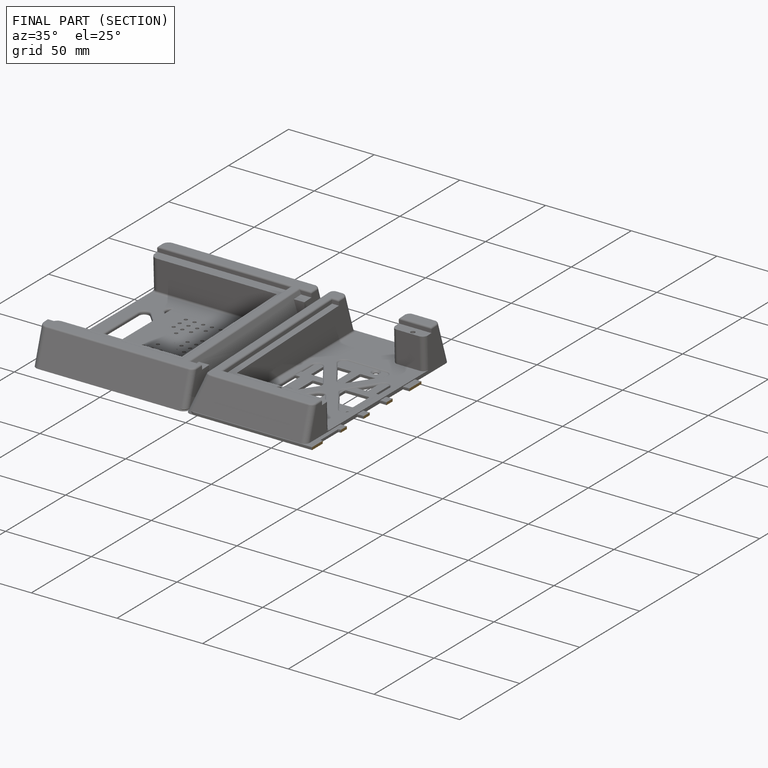
[diagram: finished part — half-section view (interior)]
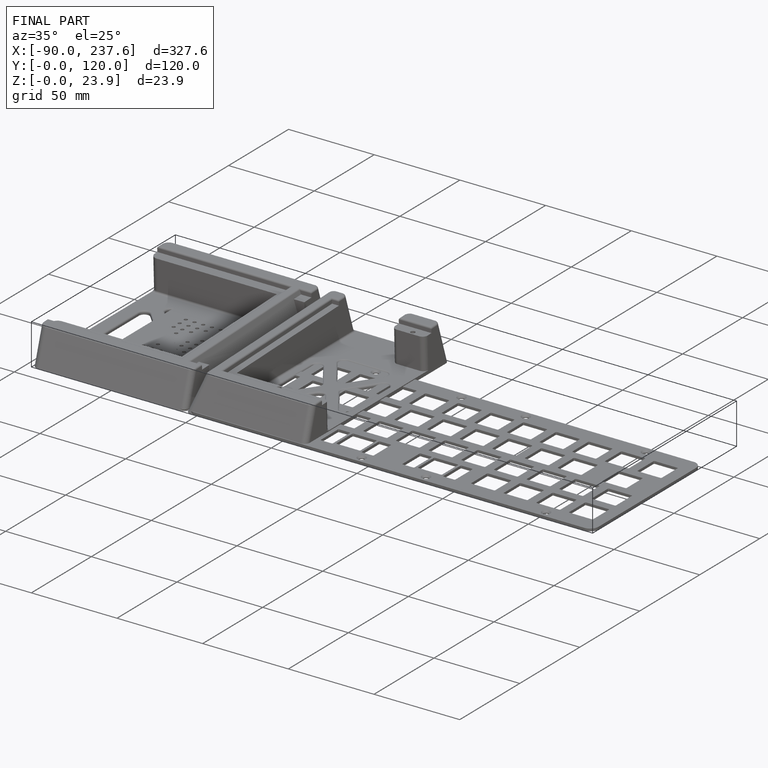
[diagram: finished part — iso view with bounding-box wireframe]
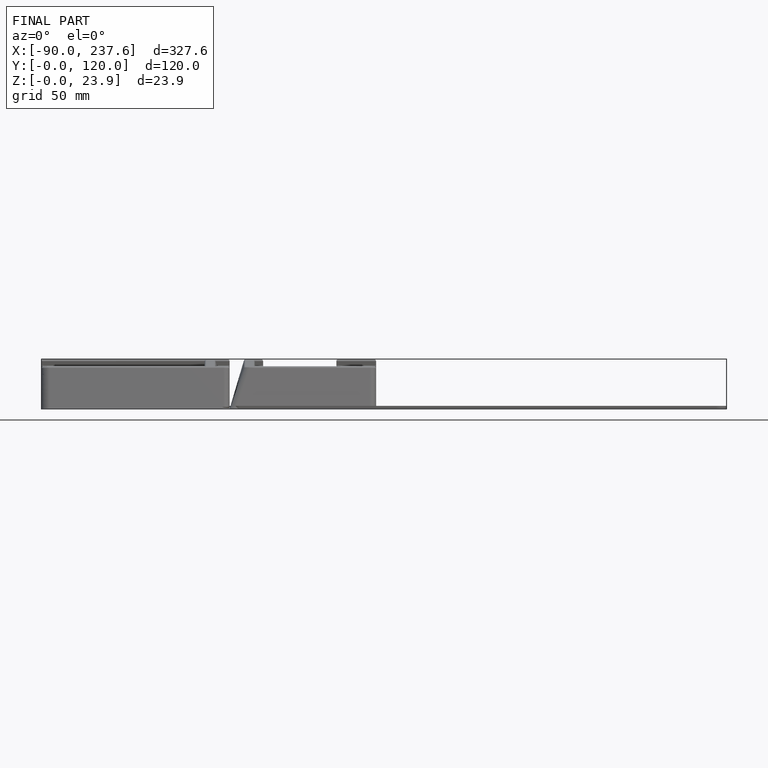
[diagram: finished part — front view with bounding-box wireframe]
